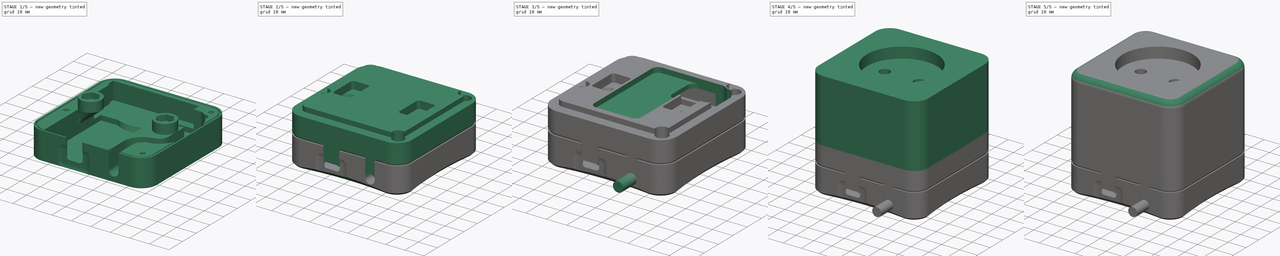
[diagram: build sequence overview — one tinted view per stage of 5, left to right]
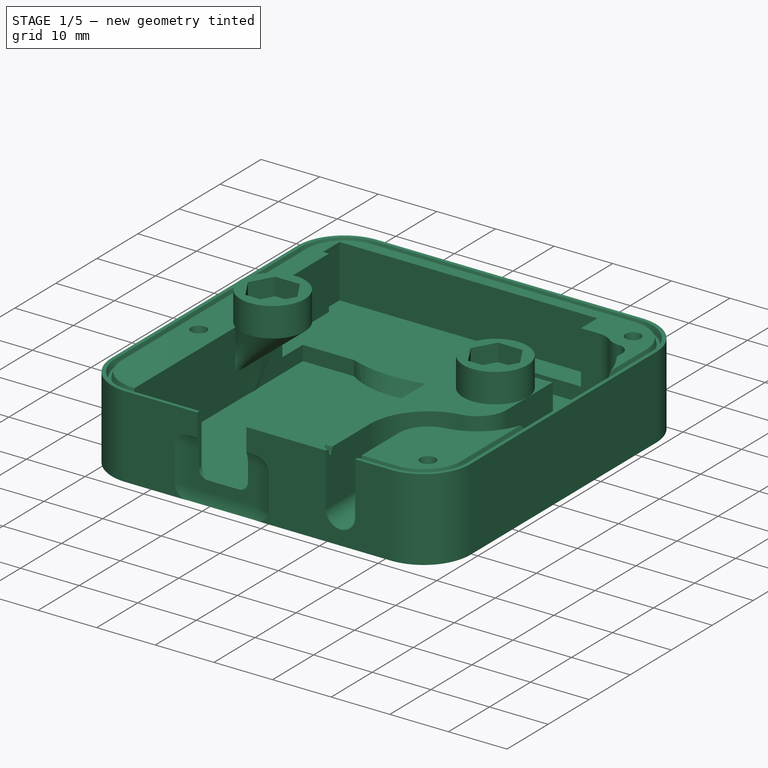
[diagram: stage 1 of 5 — iso view after this stage's code; geometry added in this stage tinted green]
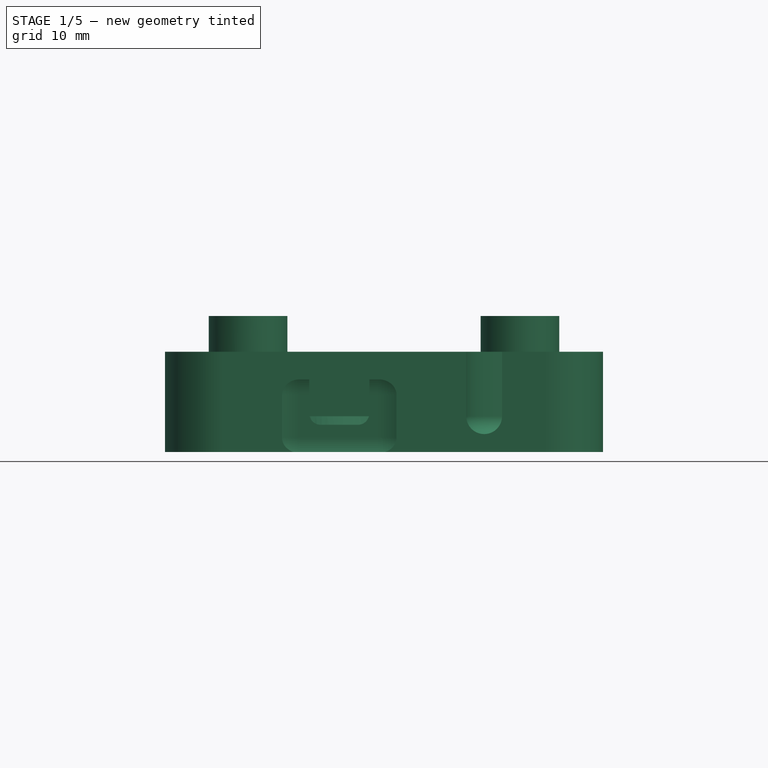
[diagram: stage 1 of 5 — front view after this stage's code; geometry added in this stage tinted green]
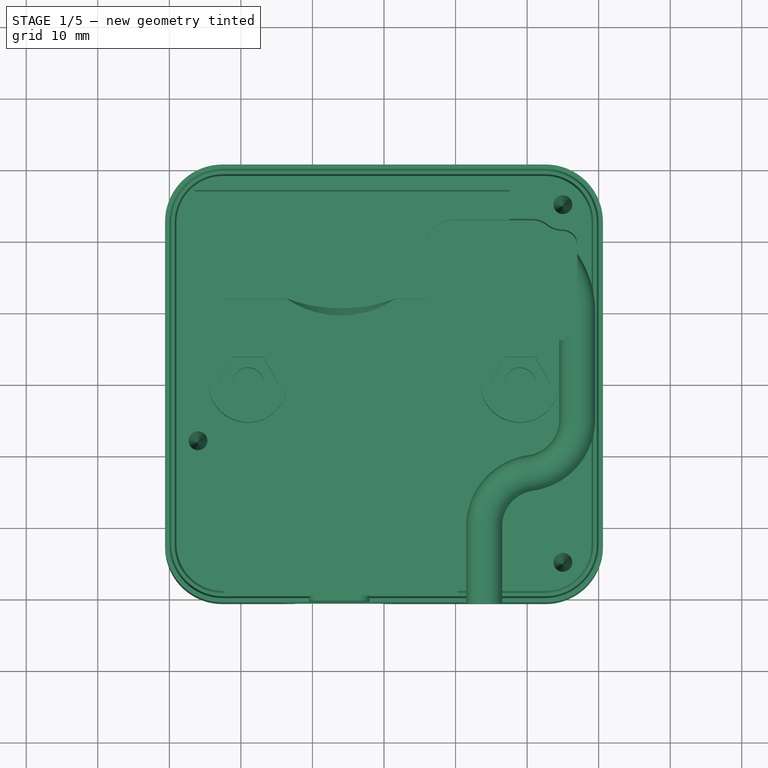
[diagram: stage 1 of 5 — top view after this stage's code; geometry added in this stage tinted green]
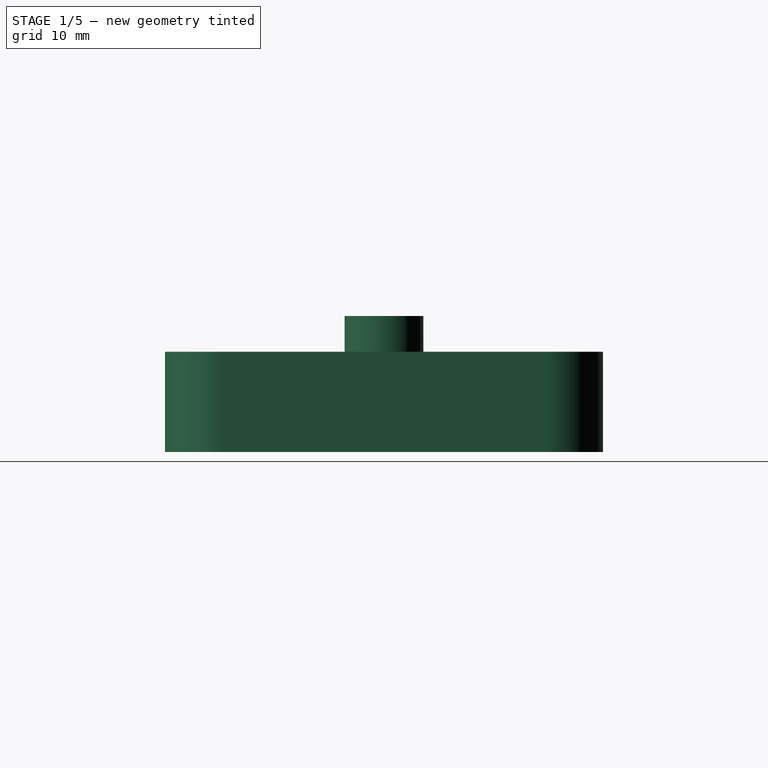
[diagram: stage 1 of 5 — right view after this stage's code; geometry added in this stage tinted green]
FCSTD DOCUMENT  (FreeCAD 0.19R23323 (Git))
Label: BedroomFan V2a
License: All rights reserved
LicenseURL: http://en.wikipedia.org/wiki/All_rights_reserved
objects: Sketcher::SketchObject×73, PartDesign::Pocket×21, PartDesign::Body×19, PartDesign::Pad×12, PartDesign::Revolution×12, PartDesign::Groove×9, PartDesign::Mirrored×6, Part::Compound×4, Part::FeaturePython×4, PartDesign::SubtractivePipe×4, PartDesign::PolarPattern×3, PartDesign::AdditivePipe×3, Part::Feature×1, PartDesign::MultiTransform×1, PartDesign::Fillet×1, PartDesign::AdditiveLoft×1, PartDesign::SubtractiveLoft×1
note: 239 computed .brp shape members not serialized (recipe doc carries the construction recipe); baked Part::Feature solids carry a one-line shape summary decoded from their .brp

FEATURE [Sketcher::SketchObject] Sketch110  label="bt support usb connector"
  AttachmentOffset = pos=(0,0,30.6) rot=(0,0,1;0rad)
  MapMode = 5
  Placement = pos=(0,-30.6,-6.8e-15) rot=(1,0,0;1.5708rad)
  Support = -> [XZ_Plane020]
  sketch-geometry (9):
    g0: ArcOfCircle CenterX=-8.85 CenterY=-19.6 CenterZ=0 NormalX=0 NormalY=0 NormalZ=1 AngleXU=0 Radius=1.5 StartAngle=1.5708 EndAngle=2.35446
    g1: ArcOfCircle CenterX=-3.65 CenterY=-19.6 CenterZ=0 NormalX=0 NormalY=0 NormalZ=1 AngleXU=0 Radius=1.5 StartAngle=0.787128 EndAngle=1.5708
    g2: LineSegment StartX=-8.85 StartY=-18.1 StartZ=0 EndX=-3.65 EndY=-18.1 EndZ=0
    g3: LineSegment StartX=-6.25 StartY=-10 StartZ=0 EndX=-6.25 EndY=-18.1 EndZ=0
    g4: LineSegment StartX=-2.25 StartY=-10 StartZ=0 EndX=-10.25 EndY=-10 EndZ=0
    g5: LineSegment StartX=-10.25 StartY=-10 StartZ=0 EndX=-10.25 EndY=-18.3958 EndZ=0
    g6: LineSegment StartX=-2.25 StartY=-18.3958 StartZ=0 EndX=-2.25 EndY=-10 EndZ=0
    g7: ArcOfCircle CenterX=-10.05 CenterY=-18.3958 CenterZ=0 NormalX=0 NormalY=0 NormalZ=1 AngleXU=0 Radius=0.2 StartAngle=3.14159 EndAngle=5.49606
    g8: ArcOfCircle CenterX=-2.45 CenterY=-18.3958 CenterZ=0 NormalX=0 NormalY=0 NormalZ=1 AngleXU=0 Radius=0.2 StartAngle=3.92872 EndAngle=6.28319
  constraints (24):
    c: Tangent(g0,g2)
    c: Tangent(g2,g1)
    c: Equal(g0,g1)
    c: Symmetric(g1,g0,g3)
    c: DistanceX(g3,g-1) = 6.25
    c: DistanceY(g1,g-1) = 19.6
    c: DistanceX(g2,g2) = 5.2
    c: Coincident(g4,g5)
    c: Coincident(g6,g4)
    c: Vertical(g5)
    c: Vertical(g6)
    c: Symmetric(g4,g4,g3)
    c: Symmetric(g4,g4,g3)
    c: DistanceY(g4,g-1) = 10
    c: PointOnObject(g3,g2)
    c: Horizontal(g2)
    c: Tangent(g0,g7) = 1.5708
    c: Tangent(g5,g7) = -1.5708
    c: Tangent(g1,g8) = 1.5708
    c: Tangent(g6,g8) = -1.5708
    c: Equal(g8,g7)
    c: Radius(g8) = 0.2
    c: Radius(g1) = 1.5
    c: DistanceX(g4,g4) = 8
FEATURE [Sketcher::SketchObject] Sketch113  label="bt hole wires"
  AttachmentOffset = pos=(0,0,-20) rot=(0,0,1;0rad)
  MapMode = 5
  Placement = pos=(0,0,-20) rot=(0,0,1;0rad)
  Support = -> [XY_Plane020]
  sketch-geometry (10):
    g0: ArcOfCircle CenterX=25 CenterY=25 CenterZ=0 NormalX=0 NormalY=0 NormalZ=1 AngleXU=0 Radius=3.5 StartAngle=4.04544 EndAngle=4.71239
    g1: ArcOfCircle CenterX=25 CenterY=19.5 CenterZ=0 NormalX=0 NormalY=0 NormalZ=1 AngleXU=0 Radius=2 StartAngle=-9e-16 EndAngle=1.5708
    g2: LineSegment StartX=20.6699 StartY=23 StartZ=0 EndX=9.5 EndY=23 EndZ=0
    g3: LineSegment StartX=6 StartY=19.5 StartZ=0 EndX=6 EndY=9.5 EndZ=0
    g4: LineSegment StartX=9.5 StartY=6 StartZ=0 EndX=23.5 EndY=6 EndZ=0
    g5: LineSegment StartX=27 StartY=9.5 StartZ=0 EndX=27 EndY=19.5 EndZ=0
    g6: ArcOfCircle CenterX=9.5 CenterY=19.5 CenterZ=0 NormalX=0 NormalY=0 NormalZ=1 AngleXU=0 Radius=3.5 StartAngle=1.5708 EndAngle=3.14159
    g7: ArcOfCircle CenterX=9.5 CenterY=9.5 CenterZ=0 NormalX=0 NormalY=0 NormalZ=1 AngleXU=0 Radius=3.5 StartAngle=3.14159 EndAngle=4.71239
    g8: ArcOfCircle CenterX=23.5 CenterY=9.5 CenterZ=0 NormalX=0 NormalY=0 NormalZ=1 AngleXU=0 Radius=3.5 StartAngle=4.71239 EndAngle=6.28319
    g9: ArcOfCircle CenterX=20.6699 CenterY=19.5 CenterZ=0 NormalX=0 NormalY=0 NormalZ=1 AngleXU=0 Radius=3.5 StartAngle=0.90385 EndAngle=1.5708
  constraints (26):
    c: Horizontal(g2)
    c: Horizontal(g4)
    c: Vertical(g3)
    c: Vertical(g5)
    c: Tangent(g1,g5) = -1.5708
    c: Tangent(g0,g1) = 1.5708
    c: Vertical(g1,g0)
    c: DistanceX(g0) = 25
    c: DistanceY(g0) = 25
    c: Radius(g0) = 3.5
    c: Tangent(g2,g6) = -1.5708
    c: Tangent(g3,g6) = -1.5708
    c: Tangent(g3,g7) = -1.5708
    c: Tangent(g4,g7) = -1.5708
    c: Tangent(g4,g8) = -1.5708
    c: Tangent(g5,g8) = -1.5708
    c: DistanceY(g4) = 6
    c: DistanceY(g2) = 23
    c: DistanceX(g3) = 6
    c: DistanceX(g5) = 27
    c: Equal(g0,g6)
    c: Equal(g6,g7)
    c: Equal(g7,g8)
    c: Tangent(g0,g9) = 1.5708
    c: Tangent(g2,g9) = -1.5708
    c: Equal(g0,g9)
FEATURE [Sketcher::SketchObject] Sketch114  label="bt separation top bottom"
  MapMode = 5
  Placement = pos=(0,0,0) rot=(1,0,0;1.5708rad)
  Support = -> [XZ_Plane020]
  sketch-geometry (4):
    g0: LineSegment StartX=35 StartY=-26 StartZ=0 EndX=-35 EndY=-26 EndZ=0
    g1: LineSegment StartX=-35 StartY=-26 StartZ=0 EndX=-35 EndY=-10 EndZ=0
    g2: LineSegment StartX=-35 StartY=-10 StartZ=0 EndX=35 EndY=-10 EndZ=0
    g3: LineSegment StartX=35 StartY=-10 StartZ=0 EndX=35 EndY=-26 EndZ=0
  constraints (11):
    c: Coincident(g0,g1)
    c: Coincident(g1,g2)
    c: Coincident(g2,g3)
    c: Coincident(g3,g0)
    c: Horizontal(g2)
    c: Vertical(g1)
    c: Vertical(g3)
    c: Symmetric(g0,g0,g-2)
    c: DistanceX(g0,g0) = 70
    c: DistanceY(g2,g-1) = 10
    c: DistanceY(g0,g-1) = 26
FEATURE [Sketcher::SketchObject] Sketch115
  MapMode = 5
  Placement = pos=(0,0,0) rot=(1,0,0;1.5708rad)
  Support = -> [XZ_Plane022]
  sketch-geometry (4):
    g0: LineSegment StartX=35 StartY=3 StartZ=0 EndX=-35 EndY=3 EndZ=0
    g1: LineSegment StartX=-35 StartY=3 StartZ=0 EndX=-35 EndY=-11 EndZ=0
    g2: LineSegment StartX=-35 StartY=-11 StartZ=0 EndX=35 EndY=-11 EndZ=0
    g3: LineSegment StartX=35 StartY=-11 StartZ=0 EndX=35 EndY=3 EndZ=0
  constraints (11):
    c: Coincident(g0,g1)
    c: Coincident(g1,g2)
    c: Coincident(g2,g3)
    c: Coincident(g3,g0)
    c: Horizontal(g2)
    c: Vertical(g1)
    c: Vertical(g3)
    c: Symmetric(g0,g0,g-2)
    c: DistanceX(g0,g0) = 70
    c: DistanceY(g0) = 3
    c: DistanceY(g2,g-1) = 11
FEATURE [Sketcher::SketchObject] Sketch116  label="bb base"
  AttachmentOffset = pos=(0,0,2.5) rot=(0,0,1;0rad)
  MapMode = 5
  Placement = pos=(0,0,2.5) rot=(0,0,1;0rad)
  Support = -> [XY_Plane022]
  sketch-geometry (12):
    g0: LineSegment StartX=-22.6 StartY=30.6 StartZ=0 EndX=22.6 EndY=30.6 EndZ=0
    g1: LineSegment StartX=30.6 StartY=22.6 StartZ=0 EndX=30.6 EndY=-22.6 EndZ=0
    g2: LineSegment StartX=22.6 StartY=-30.6 StartZ=0 EndX=-22.6 EndY=-30.6 EndZ=0
    g3: LineSegment StartX=-30.6 StartY=-22.6 StartZ=0 EndX=-30.6 EndY=22.6 EndZ=0
    g4: ArcOfCircle CenterX=-22.6 CenterY=22.6 CenterZ=0 NormalX=0 NormalY=0 NormalZ=1 AngleXU=0 Radius=8 StartAngle=1.5708 EndAngle=3.14159
    g5: ArcOfCircle CenterX=22.6 CenterY=22.6 CenterZ=0 NormalX=0 NormalY=0 NormalZ=1 AngleXU=0 Radius=8 StartAngle=2.39e-14 EndAngle=1.5708
    g6: ArcOfCircle CenterX=22.6 CenterY=-22.6 CenterZ=0 NormalX=0 NormalY=0 NormalZ=1 AngleXU=0 Radius=8 StartAngle=4.71239 EndAngle=6.28319
    g7: ArcOfCircle CenterX=-22.6 CenterY=-22.6 CenterZ=0 NormalX=0 NormalY=0 NormalZ=1 AngleXU=0 Radius=8 StartAngle=3.14159 EndAngle=4.71239
    g8: LineSegment StartX=-22.6 StartY=22.6 StartZ=0 EndX=22.6 EndY=22.6 EndZ=0
    g9: LineSegment StartX=22.6 StartY=22.6 StartZ=0 EndX=22.6 EndY=-22.6 EndZ=0
    g10: LineSegment StartX=22.6 StartY=-22.6 StartZ=0 EndX=-22.6 EndY=-22.6 EndZ=0
    g11: LineSegment StartX=-22.6 StartY=-22.6 StartZ=0 EndX=-22.6 EndY=22.6 EndZ=0
  constraints (26):
    c: Horizontal(g0)
    c: Horizontal(g2)
    c: Vertical(g1)
    c: Vertical(g3)
    c: Tangent(g3,g4) = 1.5708
    c: Tangent(g0,g4) = 1.5708
    c: Tangent(g0,g5) = 1.5708
    c: Tangent(g1,g5) = 1.5708
    c: Tangent(g1,g6) = 1.5708
    c: Tangent(g2,g6) = 1.5708
    c: Tangent(g2,g7) = 1.5708
    c: Tangent(g3,g7) = 1.5708
    c: Coincident(g8,g9)
    c: Coincident(g9,g10)
    c: Coincident(g10,g11)
    c: Coincident(g11,g8)
    c: Horizontal(g10)
    c: Coincident(g8,g4)
    c: Coincident(g9,g6)
    c: Coincident(g5,g8)
    c: Coincident(g7,g10)
    c: Symmetric(g5,g6,g-1)
    c: Symmetric(g5,g4,g-2)
    c: Equal(g9,g8)
    c: DistanceX(g3,g1) = 61.2
    c: Radius(g5) = 8
FEATURE [PartDesign::Pad] Pad017  label="BB Base"
  Direction = (1,1,1)
  Length = 27.5
  Length2 = 100
  Profile = -> Sketch116
  Reversed = true
  Type = 0
FEATURE [Sketcher::SketchObject] Sketch117  label="bb screwhole 1"
  AttachmentOffset = pos=(0,0,8) rot=(0,0,1;0rad)
  MapMode = 5
  Placement = pos=(0,-8,-1.8e-15) rot=(1,0,0;1.5708rad)
  Support = -> [XZ_Plane020]
  sketch-geometry (6):
    g0: LineSegment StartX=-26 StartY=3 StartZ=0 EndX=-26 EndY=-24.2 EndZ=0
    g1: LineSegment StartX=-26 StartY=-24.2 StartZ=0 EndX=-24.4 EndY=-8.2 EndZ=0
    g2: LineSegment StartX=-24.4 StartY=-8.2 StartZ=0 EndX=-23 EndY=-6.8 EndZ=0
    g3: LineSegment StartX=-23 StartY=-6.8 StartZ=0 EndX=-23 EndY=3 EndZ=0
    g4: LineSegment StartX=-23 StartY=3 StartZ=0 EndX=-26 EndY=3 EndZ=0
    g5: LineSegment StartX=-26 StartY=3 StartZ=0 EndX=-26 EndY=6 EndZ=0
  constraints (18):
    c: Vertical(g0)
    c: Coincident(g0,g1)
    c: Coincident(g1,g2)
    c: Coincident(g2,g3)
    c: Vertical(g3)
    c: Coincident(g3,g4)
    c: Coincident(g4,g0)
    c: DistanceX(g4,g4) = 3
    c: Angle(g0,g2) = 2.35619
    c: DistanceY(g1,g-1) = 8.2
    c: Coincident(g5,g0)
    c: Vertical(g5)
    c: Equal(g4,g5)
    c: DistanceY(g0,g1) = 16
    c: DistanceX(g0,g1) = 1.6
    c: DistanceX(g5,g-1) = 26
    c: Horizontal(g4)
    c: DistanceY(g0) = 3
FEATURE [PartDesign::Groove] Groove014  label="BB Screwhole 1"
  Angle = 360
  Axis = (0,-7e-16,3)
  Base = (-26,-8,3)
  BaseFeature = -> Pad017
  Profile = -> Sketch117
  ReferenceAxis = -> Sketch117 [Axis0]
FEATURE [Sketcher::SketchObject] Sketch118  label="bb screwhole 2"
  AttachmentOffset = pos=(0,0,25) rot=(0,0,1;0rad)
  MapMode = 5
  Placement = pos=(0,-25,-5.6e-15) rot=(1,0,0;1.5708rad)
  Support = -> [XZ_Plane022]
  sketch-geometry (6):
    g0: LineSegment StartX=25 StartY=3 StartZ=0 EndX=25 EndY=-24.2 EndZ=0
    g1: LineSegment StartX=25 StartY=-24.2 StartZ=0 EndX=26.6 EndY=-8.2 EndZ=0
    g2: LineSegment StartX=26.6 StartY=-8.2 StartZ=0 EndX=28 EndY=-6.8 EndZ=0
    g3: LineSegment StartX=28 StartY=-6.8 StartZ=0 EndX=28 EndY=3 EndZ=0
    g4: LineSegment StartX=28 StartY=3 StartZ=0 EndX=25 EndY=3 EndZ=0
    g5: LineSegment StartX=25 StartY=3 StartZ=0 EndX=25 EndY=6 EndZ=0
  constraints (18):
    c: Vertical(g0)
    c: Coincident(g0,g1)
    c: Coincident(g1,g2)
    c: Coincident(g2,g3)
    c: Vertical(g3)
    c: Coincident(g3,g4)
    c: Coincident(g4,g0)
    c: DistanceX(g0) = 25
    c: DistanceX(g4,g4) = 3
    c: Angle(g0,g2) = 2.35619
    c: DistanceY(g1,g-1) = 8.2
    c: Coincident(g5,g0)
    c: Vertical(g5)
    c: Equal(g4,g5)
    c: DistanceY(g0,g1) = 16
    c: DistanceX(g0,g1) = 1.6
    c: Horizontal(g4)
    c: DistanceY(g3) = 3
FEATURE [PartDesign::Groove] Groove013  label="BB Screwhole 2"
  Angle = 360
  Axis = (0,-7e-16,3)
  Base = (25,-25,3)
  BaseFeature = -> Groove014
  Profile = -> Sketch118
  ReferenceAxis = -> Sketch118 [Axis0]
FEATURE [Sketcher::SketchObject] Sketch119  label="bb screwhole 3"
  AttachmentOffset = pos=(0,0,-25) rot=(0,0,1;0rad)
  MapMode = 5
  Placement = pos=(0,25,5.6e-15) rot=(1,0,0;1.5708rad)
  Support = -> [XZ_Plane022]
  sketch-geometry (6):
    g0: LineSegment StartX=25 StartY=3 StartZ=0 EndX=25 EndY=-24.2 EndZ=0
    g1: LineSegment StartX=25 StartY=-24.2 StartZ=0 EndX=26.6 EndY=-8.2 EndZ=0
    g2: LineSegment StartX=26.6 StartY=-8.2 StartZ=0 EndX=28 EndY=-6.8 EndZ=0
    g3: LineSegment StartX=28 StartY=-6.8 StartZ=0 EndX=28 EndY=3 EndZ=0
    g4: LineSegment StartX=28 StartY=3 StartZ=0 EndX=25 EndY=3 EndZ=0
    g5: LineSegment StartX=25 StartY=3 StartZ=0 EndX=25 EndY=6 EndZ=0
  constraints (18):
    c: Vertical(g0)
    c: Coincident(g0,g1)
    c: Coincident(g1,g2)
    c: Coincident(g2,g3)
    c: Vertical(g3)
    c: Coincident(g3,g4)
    c: Coincident(g4,g0)
    c: DistanceX(g4,g4) = 3
    c: Angle(g0,g2) = 2.35619
    c: DistanceY(g1,g-1) = 8.2
    c: Coincident(g5,g0)
    c: Vertical(g5)
    c: Equal(g4,g5)
    c: DistanceY(g0,g1) = 16
    c: DistanceX(g0,g1) = 1.6
    c: DistanceX(g5) = 25
    c: Horizontal(g4)
    c: DistanceY(g0) = 3
FEATURE [PartDesign::Groove] Groove016  label="BB Screwhole 3"
  Angle = 360
  Axis = (0,-7e-16,3)
  Base = (25,25,3)
  BaseFeature = -> Groove013
  Profile = -> Sketch119
  ReferenceAxis = -> Sketch119 [Axis0]
FEATURE [Sketcher::SketchObject] Sketch121  label="bb bolt hole R"
  MapMode = 5
  Placement = pos=(0,0,0) rot=(1,0,0;1.5708rad)
  Support = -> [XZ_Plane022]
  sketch-geometry (6):
    g0: LineSegment StartX=19 StartY=-1.5 StartZ=0 EndX=21.8 EndY=-1.5 EndZ=0
    g1: LineSegment StartX=21.2 StartY=-3.14849 StartZ=0 EndX=21.2 EndY=-13.5 EndZ=0
    g2: LineSegment StartX=21.2 StartY=-13.5 StartZ=0 EndX=19 EndY=-13.5 EndZ=0
    g3: LineSegment StartX=19 StartY=-13.5 StartZ=0 EndX=19 EndY=-1.5 EndZ=0
    g4: LineSegment StartX=19 StartY=-1.5 StartZ=0 EndX=19 EndY=1.3 EndZ=0
    g5: LineSegment StartX=21.2 StartY=-3.14849 StartZ=0 EndX=21.8 EndY=-1.5 EndZ=0
  constraints (18):
    c: Coincident(g1,g2)
    c: Coincident(g2,g3)
    c: Coincident(g3,g0)
    c: Horizontal(g0)
    c: Horizontal(g2)
    c: Vertical(g1)
    c: Vertical(g3)
    c: Coincident(g4,g0)
    c: Vertical(g4)
    c: Equal(g0,g4)
    c: DistanceX(g4) = 19
    c: Coincident(g5,g1)
    c: Coincident(g0,g5)
    c: DistanceX(g0,g1) = 2.2
    c: Angle(g1,g5) = 2.79253
    c: DistanceY(g3,g3) = 12
    c: DistanceY(g0,g-1) = 1.5
    c: DistanceX(g0,g0) = 2.8
FEATURE [Sketcher::SketchObject] Sketch122  label="bb pocket relay"
  AttachmentOffset = pos=(0,0,-11) rot=(0,0,1;0rad)
  MapMode = 5
  Placement = pos=(0,0,-11) rot=(0,0,1;0rad)
  Support = -> [XY_Plane022]
  sketch-geometry (8):
    g0: LineSegment StartX=-26.5 StartY=27 StartZ=0 EndX=17.5 EndY=27 EndZ=0
    g1: LineSegment StartX=17.5 StartY=27 StartZ=0 EndX=17.5 EndY=23 EndZ=0
    g2: LineSegment StartX=17.5 StartY=23 StartZ=0 EndX=15.5 EndY=23 EndZ=0
    g3: LineSegment StartX=-26.5 StartY=23 StartZ=0 EndX=-26.5 EndY=27 EndZ=0
    g4: LineSegment StartX=-25.5 StartY=23 StartZ=0 EndX=-25.5 EndY=7 EndZ=0
    g5: LineSegment StartX=-25.5 StartY=7 StartZ=0 EndX=15.5 EndY=7 EndZ=0
    g6: LineSegment StartX=15.5 StartY=7 StartZ=0 EndX=15.5 EndY=23 EndZ=0
    g7: LineSegment StartX=-25.5 StartY=23 StartZ=0 EndX=-26.5 EndY=23 EndZ=0
  constraints (23):
    c: Coincident(g0,g1)
    c: Coincident(g1,g2)
    c: Coincident(g7,g3)
    c: Coincident(g3,g0)
    c: Horizontal(g0)
    c: Horizontal(g2)
    c: Vertical(g1)
    c: Vertical(g3)
    c: Coincident(g4,g5)
    c: Coincident(g5,g6)
    c: Horizontal(g5)
    c: Vertical(g4)
    c: Vertical(g6)
    c: Coincident(g2,g6)
    c: Coincident(g7,g4)
    c: Tangent(g2,g7)
    c: DistanceX(g0,g0) = 44
    c: DistanceY(g0) = 27
    c: DistanceY(g1,g1) = 4
    c: DistanceX(g7,g7) = 1
    c: DistanceX(g2,g2) = 2
    c: DistanceX(g1) = 17.5
    c: DistanceY(g4,g0) = 20
FEATURE [Sketcher::SketchObject] Sketch124  label="bb esp mid"
  AttachmentOffset = pos=(0,0,-18) rot=(0,0,1;0rad)
  MapMode = 5
  Placement = pos=(0,0,-18) rot=(0,0,1;0rad)
  Support = -> [XY_Plane022]
  sketch-geometry (10):
    g0: LineSegment StartX=-22.25 StartY=12 StartZ=0 EndX=-13.5 EndY=12 EndZ=0
    g1: LineSegment StartX=10.25 StartY=12 StartZ=0 EndX=10.25 EndY=-29.5 EndZ=0
    g2: LineSegment StartX=10.25 StartY=-29.5 StartZ=0 EndX=-22.25 EndY=-29.5 EndZ=0
    g3: LineSegment StartX=-22.25 StartY=-29.5 StartZ=0 EndX=-22.25 EndY=-4.5 EndZ=0
    g4: LineSegment StartX=-6 StartY=111 StartZ=0 EndX=-6 EndY=-29.5 EndZ=0
    g5: ArcOfCircle CenterX=-6 CenterY=61.2159 CenterZ=0 NormalX=0 NormalY=0 NormalZ=1 AngleXU=0 Radius=49.7841 StartAngle=4.56116 EndAngle=4.86362
    g6: LineSegment StartX=1.5 StartY=12 StartZ=0 EndX=10.25 EndY=12 EndZ=0
    g7: ArcOfCircle CenterX=-123.45 CenterY=0 CenterZ=0 NormalX=0 NormalY=0 NormalZ=1 AngleXU=0 Radius=101.3 StartAngle=6.23875 EndAngle=6.32762
    g8: LineSegment StartX=-22.25 StartY=4.5 StartZ=0 EndX=-22.25 EndY=12 EndZ=0
    g9: GeomPoint X=-22.15 Y=0 Z=0
  constraints (29):
    c: Coincident(g6,g1)
    c: Coincident(g1,g2)
    c: Coincident(g2,g3)
    c: Coincident(g8,g0)
    c: Horizontal(g0)
    c: Horizontal(g2)
    c: Vertical(g1)
    c: Vertical(g3)
    c: DistanceY(g1,g-1) = 29.5
    c: PointOnObject(g4,g2)
    c: Symmetric(g1,g2,g4)
    c: DistanceX(g0,g6) = 32.5
    c: Coincident(g0,g5)
    c: Tangent(g0,g6)
    c: Coincident(g6,g5)
    c: PointOnObject(g4,g5)
    c: PointOnObject(g5,g4)
    c: DistanceX(g4,g-1) = 6
    c: DistanceY(g-1,g4) = 111
    c: DistanceY(g-1,g1) = 12
    c: DistanceX(g0,g5) = 15
    c: PointOnObject(g7,g-1)
    c: Tangent(g3,g8)
    c: Coincident(g7,g8)
    c: Coincident(g7,g3)
    c: PointOnObject(g9,g7)
    c: PointOnObject(g9,g-1)
    c: DistanceX(g7,g9) = 0.1
    c: DistanceY(g3,g7) = 9
FEATURE [Sketcher::SketchObject] Sketch125  label="bb pocket usb connector"
  MapMode = 5
  Placement = pos=(0,0,0) rot=(1,0,0;1.5708rad)
  Support = -> [XZ_Plane022]
  sketch-geometry (7):
    g0: ArcOfCircle CenterX=-8.85 CenterY=-19.6 CenterZ=0 NormalX=0 NormalY=0 NormalZ=1 AngleXU=0 Radius=1.6 StartAngle=3.14159 EndAngle=4.71239
    g1: ArcOfCircle CenterX=-3.65 CenterY=-19.6 CenterZ=0 NormalX=0 NormalY=0 NormalZ=1 AngleXU=0 Radius=1.6 StartAngle=4.71239 EndAngle=6.28319
    g2: LineSegment StartX=-8.85 StartY=-21.2 StartZ=0 EndX=-3.65 EndY=-21.2 EndZ=0
    g3: LineSegment StartX=-6.25 StartY=9e-16 StartZ=0 EndX=-6.25 EndY=-21.2 EndZ=0
    g4: LineSegment StartX=-10.45 StartY=0 StartZ=0 EndX=-2.05 EndY=0 EndZ=0
    g5: LineSegment StartX=-2.05 StartY=0 StartZ=0 EndX=-2.05 EndY=-19.6 EndZ=0
    g6: LineSegment StartX=-10.45 StartY=-19.6 StartZ=0 EndX=-10.45 EndY=0 EndZ=0
  constraints (19):
    c: Tangent(g0,g2)
    c: Tangent(g2,g1)
    c: Horizontal(g2)
    c: Equal(g0,g1)
    c: PointOnObject(g3,g2)
    c: Symmetric(g1,g0,g3)
    c: DistanceX(g3,g-1) = 6.25
    c: DistanceY(g1,g-1) = 19.6
    c: Coincident(g4,g5)
    c: Coincident(g6,g4)
    c: Horizontal(g4)
    c: Vertical(g5)
    c: Vertical(g6)
    c: PointOnObject(g4,g-1)
    c: DistanceX(g0,g1) = 5.2
    c: PointOnObject(g3,g4)
    c: Tangent(g0,g6) = 1.5708
    c: Tangent(g1,g5) = 1.5708
    c: Radius(g1) = 1.6
FEATURE [Sketcher::SketchObject] Sketch126  label="bb USB trj"
  MapMode = 5
  Placement = pos=(0,0,0) rot=(0.57735,0.57735,0.57735;2.0944rad)
  Support = -> [YZ_Plane023]
  sketch-geometry (3):
    g0: LineSegment StartX=-30.2 StartY=-17 StartZ=0 EndX=-30.2 EndY=-23 EndZ=0
    g1: ArcOfCircle CenterX=-36.2 CenterY=-23 CenterZ=0 NormalX=0 NormalY=0 NormalZ=1 AngleXU=0 Radius=6 StartAngle=5.44212 EndAngle=6.28319
    g2: ArcOfCircle CenterX=-36.2 CenterY=-17 CenterZ=0 NormalX=0 NormalY=0 NormalZ=1 AngleXU=0 Radius=6 StartAngle=0 EndAngle=0.841069
  constraints (10):
    c: Vertical(g0)
    c: Tangent(g0,g2) = 1.5708
    c: Tangent(g0,g1) = 1.5708
    c: DistanceX(g0,g-1) = 30.2
    c: DistanceY(g0,g-1) = 23
    c: DistanceY(g0,g0) = 6
    c: Equal(g1,g2)
    c: DistanceX(g2,g0) = 2
    c: Radius(g2) = 6
    c: Vertical(g1,g2)
FEATURE [Sketcher::SketchObject] Sketch127  label="bb esp btm"
  AttachmentOffset = pos=(0,0,-22.5) rot=(0,0,1;0rad)
  MapMode = 5
  Placement = pos=(0,0,-22.5) rot=(0,0,1;0rad)
  Support = -> [XY_Plane022]
  sketch-geometry (10):
    g0: LineSegment StartX=-22.25 StartY=12 StartZ=0 EndX=-13.5 EndY=12 EndZ=0
    g1: LineSegment StartX=10.25 StartY=12 StartZ=0 EndX=10.25 EndY=-29.5 EndZ=0
    g2: LineSegment StartX=10.25 StartY=-29.5 StartZ=0 EndX=-22.25 EndY=-29.5 EndZ=0
    g3: LineSegment StartX=-22.25 StartY=-29.5 StartZ=0 EndX=-22.25 EndY=-1 EndZ=0
    g4: LineSegment StartX=-6 StartY=9.7 StartZ=0 EndX=-6 EndY=-29.5 EndZ=0
    g5: ArcOfCircle CenterX=-6 CenterY=23.0783 CenterZ=0 NormalX=0 NormalY=0 NormalZ=1 AngleXU=0 Radius=13.3783 StartAngle=4.11727 EndAngle=5.30751
    g6: LineSegment StartX=1.5 StartY=12 StartZ=0 EndX=10.25 EndY=12 EndZ=0
    g7: ArcOfCircle CenterX=-27.2 CenterY=0 CenterZ=0 NormalX=0 NormalY=0 NormalZ=1 AngleXU=0 Radius=5.05 StartAngle=6.08385 EndAngle=6.48252
    g8: LineSegment StartX=-22.25 StartY=1 StartZ=0 EndX=-22.25 EndY=12 EndZ=0
    g9: GeomPoint X=-22.15 Y=0 Z=0
  constraints (29):
    c: Coincident(g6,g1)
    c: Coincident(g1,g2)
    c: Coincident(g2,g3)
    c: Coincident(g8,g0)
    c: Horizontal(g0)
    c: Horizontal(g2)
    c: Vertical(g1)
    c: Vertical(g3)
    c: DistanceY(g1,g-1) = 29.5
    c: PointOnObject(g4,g2)
    c: Symmetric(g1,g2,g4)
    c: DistanceX(g0,g6) = 32.5
    c: Coincident(g0,g5)
    c: Tangent(g0,g6)
    c: Coincident(g6,g5)
    c: PointOnObject(g4,g5)
    c: PointOnObject(g5,g4)
    c: DistanceX(g4,g-1) = 6
    c: DistanceY(g-1,g4) = 9.7
    c: DistanceY(g-1,g1) = 12
    c: DistanceX(g0,g5) = 15
    c: PointOnObject(g7,g-1)
    c: Tangent(g3,g8)
    c: Coincident(g7,g3)
    c: Coincident(g7,g8)
    c: PointOnObject(g9,g7)
    c: PointOnObject(g9,g-1)
    c: DistanceX(g7,g9) = 0.1
    c: DistanceY(g3,g7) = 2
FEATURE [Sketcher::SketchObject] Sketch128  label="bb USB crs"
  AttachmentOffset = pos=(0,0,-20) rot=(0,0,1;0rad)
  MapMode = 5
  Placement = pos=(0,0,-20) rot=(0,0,1;0rad)
  Support = -> [XY_Plane022]
  sketch-geometry (5):
    g0: ArcOfCircle CenterX=-11.75 CenterY=-38.2 CenterZ=0 NormalX=0 NormalY=0 NormalZ=1 AngleXU=0 Radius=8 StartAngle=1.5708 EndAngle=2.29353
    g1: ArcOfCircle CenterX=-0.75 CenterY=-38.2 CenterZ=0 NormalX=0 NormalY=0 NormalZ=1 AngleXU=0 Radius=8 StartAngle=0.848062 EndAngle=1.5708
    g2: LineSegment StartX=-11.75 StartY=-30.2 StartZ=0 EndX=-0.75 EndY=-30.2 EndZ=0
    g3: LineSegment StartX=-6.25 StartY=-30.2 StartZ=0 EndX=-6.25 EndY=-32.2 EndZ=0
    g4: LineSegment StartX=-17.0415 StartY=-32.2 StartZ=0 EndX=4.5415 EndY=-32.2 EndZ=0
  constraints (15):
    c: Tangent(g0,g2)
    c: Tangent(g2,g1)
    c: Equal(g0,g1)
    c: DistanceY(g1,g-1) = 30.2
    c: PointOnObject(g3,g2)
    c: Symmetric(g0,g1,g3)
    c: DistanceX(g3,g-1) = 6.25
    c: DistanceX(g2,g2) = 11
    c: Radius(g1) = 8
    c: Horizontal(g4)
    c: Coincident(g1,g4)
    c: Coincident(g4,g0)
    c: DistanceY(g1,g1) = 2
    c: PointOnObject(g3,g4)
    c: Vertical(g3)
FEATURE [Sketcher::SketchObject] Sketch129  label="bb hole wires"
  AttachmentOffset = pos=(0,0,-22.5) rot=(0,0,1;0rad)
  MapMode = 5
  Placement = pos=(0,0,-22.5) rot=(0,0,1;0rad)
  Support = -> [XY_Plane022]
  sketch-geometry (10):
    g0: ArcOfCircle CenterX=25 CenterY=25 CenterZ=0 NormalX=0 NormalY=0 NormalZ=1 AngleXU=0 Radius=3.5 StartAngle=4.04544 EndAngle=4.71239
    g1: ArcOfCircle CenterX=25 CenterY=19.5 CenterZ=0 NormalX=0 NormalY=0 NormalZ=1 AngleXU=0 Radius=2 StartAngle=-9e-16 EndAngle=1.5708
    g2: LineSegment StartX=20.6699 StartY=23 StartZ=0 EndX=9.5 EndY=23 EndZ=0
    g3: LineSegment StartX=6 StartY=19.5 StartZ=0 EndX=6 EndY=9.5 EndZ=0
    g4: LineSegment StartX=9.5 StartY=6 StartZ=0 EndX=23.5 EndY=6 EndZ=0
    g5: LineSegment StartX=27 StartY=9.5 StartZ=0 EndX=27 EndY=19.5 EndZ=0
    g6: ArcOfCircle CenterX=9.5 CenterY=19.5 CenterZ=0 NormalX=0 NormalY=0 NormalZ=1 AngleXU=0 Radius=3.5 StartAngle=1.5708 EndAngle=3.14159
    g7: ArcOfCircle CenterX=9.5 CenterY=9.5 CenterZ=0 NormalX=0 NormalY=0 NormalZ=1 AngleXU=0 Radius=3.5 StartAngle=3.14159 EndAngle=4.71239
    g8: ArcOfCircle CenterX=23.5 CenterY=9.5 CenterZ=0 NormalX=0 NormalY=0 NormalZ=1 AngleXU=0 Radius=3.5 StartAngle=4.71239 EndAngle=6.28319
    g9: ArcOfCircle CenterX=20.6699 CenterY=19.5 CenterZ=0 NormalX=0 NormalY=0 NormalZ=1 AngleXU=0 Radius=3.5 StartAngle=0.90385 EndAngle=1.5708
  constraints (26):
    c: Horizontal(g2)
    c: Horizontal(g4)
    c: Vertical(g3)
    c: Vertical(g5)
    c: Tangent(g1,g5) = -1.5708
    c: Tangent(g0,g1) = 1.5708
    c: Vertical(g1,g0)
    c: DistanceX(g0) = 25
    c: DistanceY(g0) = 25
    c: Radius(g0) = 3.5
    c: Tangent(g2,g6) = -1.5708
    c: Tangent(g3,g6) = -1.5708
    c: Tangent(g3,g7) = -1.5708
    c: Tangent(g4,g7) = -1.5708
    c: Tangent(g4,g8) = -1.5708
    c: Tangent(g5,g8) = -1.5708
    c: DistanceY(g4) = 6
    c: DistanceY(g2) = 23
    c: DistanceX(g3) = 6
    c: DistanceX(g5) = 27
    c: Equal(g0,g6)
    c: Equal(g6,g7)
    c: Equal(g7,g8)
    c: Tangent(g0,g9) = 1.5708
    c: Tangent(g2,g9) = -1.5708
    c: Equal(g0,g9)
FEATURE [PartDesign::SubtractivePipe] SubtractivePipe008  label="BB USB recess"
  AuxilleryCurvelinear = true
  AuxillerySpineTangent = false
  BaseFeature = -> Groove016
  Binormal = (0,0,0)
  Mode = 0
  Profile = -> Sketch128
  Spine = -> Sketch126
  SpineTangent = false
  Transformation = 0
  Transition = 0
FEATURE [PartDesign::Pocket] Pocket044  label="BB Hole wires"
  BaseFeature = -> SubtractivePipe008
  Length = 5
  Length2 = 100
  Profile = -> Sketch129
  Reversed = true
  Type = 1
FEATURE [PartDesign::Pocket] Pocket041  label="BB Separation top bottom"
  BaseFeature = -> Pocket044
  Length = 5
  Length2 = 100
  Midplane = true
  Profile = -> Sketch115
  Type = 1
FEATURE [Sketcher::SketchObject] Sketch130  label="bt cable support trj"
  MapMode = 5
  Support = -> [XY_Plane020]
  sketch-geometry (4):
    g0: LineSegment StartX=27 StartY=16 StartZ=0 EndX=27 EndY=-5 EndZ=0
    g1: LineSegment StartX=14 StartY=-20 StartZ=0 EndX=14 EndY=-30.6 EndZ=0
    g2: ArcOfCircle CenterX=21.5769 CenterY=-20 CenterZ=0 NormalX=0 NormalY=0 NormalZ=1 AngleXU=0 Radius=7.57692 StartAngle=1.71341 EndAngle=3.14159
    g3: ArcOfCircle CenterX=19.4231 CenterY=-5 CenterZ=0 NormalX=0 NormalY=0 NormalZ=1 AngleXU=0 Radius=7.57692 StartAngle=4.855 EndAngle=6.28319
  constraints (12):
    c: Vertical(g0)
    c: Vertical(g1)
    c: DistanceX(g1) = 14
    c: Tangent(g1,g2) = -1.5708
    c: Tangent(g2,g3) = 1.5708
    c: Tangent(g0,g3) = 1.5708
    c: DistanceY(g1,g-1) = 20
    c: DistanceX(g0) = 27
    c: Equal(g2,g3)
    c: DistanceY(g-1,g0) = 16
    c: DistanceY(g1,g-1) = 30.6
    c: DistanceY(g0,g-1) = 5
FEATURE [Sketcher::SketchObject] Sketch131  label="bt cable support crs"
  MapMode = 5
  Placement = pos=(0,0,0) rot=(1,0,0;1.5708rad)
  Support = -> [XZ_Plane020]
  sketch-geometry (7):
    g0: ArcOfCircle CenterX=27 CenterY=-20 CenterZ=0 NormalX=0 NormalY=0 NormalZ=1 AngleXU=0 Radius=2.5 StartAngle=0.618387 EndAngle=2.52321
    g1: LineSegment StartX=29.4 StartY=-10 StartZ=0 EndX=24.6 EndY=-10 EndZ=0
    g2: LineSegment StartX=24.6 StartY=-10 StartZ=0 EndX=24.6 EndY=-18.4348 EndZ=0
    g3: LineSegment StartX=29.4 StartY=-18.4348 StartZ=0 EndX=29.4 EndY=-10 EndZ=0
    g4: ArcOfCircle CenterX=29.2 CenterY=-18.4348 CenterZ=0 NormalX=0 NormalY=0 NormalZ=1 AngleXU=0 Radius=0.2 StartAngle=3.75998 EndAngle=6.28319
    g5: ArcOfCircle CenterX=24.8 CenterY=-18.4348 CenterZ=0 NormalX=0 NormalY=0 NormalZ=1 AngleXU=0 Radius=0.2 StartAngle=3.14159 EndAngle=5.6648
    g6: LineSegment StartX=27 StartY=-20 StartZ=0 EndX=27 EndY=-10 EndZ=0
  constraints (19):
    c: DistanceX(g0) = 27
    c: DistanceY(g0,g-1) = 20
    c: Coincident(g1,g2)
    c: Coincident(g3,g1)
    c: Horizontal(g1)
    c: Vertical(g2)
    c: Vertical(g3)
    c: Radius(g0) = 2.5
    c: Tangent(g0,g4) = 1.5708
    c: Tangent(g3,g4) = -1.5708
    c: Tangent(g0,g5) = 1.5708
    c: Tangent(g2,g5) = -1.5708
    c: Coincident(g6,g0)
    c: PointOnObject(g6,g1)
    c: Symmetric(g1,g1,g6)
    c: DistanceY(g1,g-1) = 10
    c: DistanceX(g1,g1) = 4.8
    c: Equal(g5,g4)
    c: Radius(g4) = 0.2
FEATURE [PartDesign::Pocket] Pocket048  label="BB Pocket relay"
  BaseFeature = -> Pocket041
  Length = 18
  Length2 = 100
  Midplane = true
  Profile = -> Sketch122
  Type = 0
FEATURE [Sketcher::SketchObject] Sketch132  label="bb pillar nut R"
  AttachmentOffset = pos=(0,0,-6) rot=(0,0,1;0rad)
  MapMode = 5
  Placement = pos=(0,0,-6) rot=(0,0,1;0rad)
  Support = -> [XY_Plane022]
  sketch-geometry (1):
    g0: Circle CenterX=19 CenterY=0 CenterZ=0 NormalX=0 NormalY=0 NormalZ=1 AngleXU=0 Radius=5.5
  constraints (3):
    c: PointOnObject(g0,g-1)
    c: DistanceX(g0) = 19
    c: Radius(g0) = 5.5
FEATURE [PartDesign::Pad] Pad019  label="BB Pillar nut R"
  BaseFeature = -> Pocket048
  Direction = (1,1,1)
  Length = 5.5
  Length2 = 100
  Profile = -> Sketch132
  Reversed = true
  Type = 0
FEATURE [PartDesign::Groove] Groove017  label="BB Bolt hole R"
  Angle = 360
  Axis = (0,-6e-16,2.8)
  Base = (19,3e-16,-1.5)
  BaseFeature = -> Pad019
  Profile = -> Sketch121
  ReferenceAxis = -> Sketch121 [Axis0]
FEATURE [Sketcher::SketchObject] Sketch133  label="bb nut pocket R"
  AttachmentOffset = pos=(0,0,-9) rot=(0,0,1;0rad)
  MapMode = 5
  Placement = pos=(0,0,-9) rot=(0,0,1;0rad)
  Support = -> [XY_Plane022]
  sketch-geometry (7):
    g0: LineSegment StartX=23.2147 StartY=0 StartZ=0 EndX=21.1073 EndY=3.65 EndZ=0
    g1: LineSegment StartX=21.1073 StartY=3.65 StartZ=0 EndX=16.8927 EndY=3.65 EndZ=0
    g2: LineSegment StartX=16.8927 StartY=3.65 StartZ=0 EndX=14.7853 EndY=4e-16 EndZ=0
    g3: LineSegment StartX=14.7853 StartY=4e-16 StartZ=0 EndX=16.8927 EndY=-3.65 EndZ=0
    g4: LineSegment StartX=16.8927 StartY=-3.65 StartZ=0 EndX=21.1073 EndY=-3.65 EndZ=0
    g5: LineSegment StartX=21.1073 StartY=-3.65 StartZ=0 EndX=23.2147 EndY=0 EndZ=0
    g6: Circle CenterX=19 CenterY=0 CenterZ=0 NormalX=0 NormalY=0 NormalZ=1 AngleXU=0 Radius=4.21466
  constraints (17):
    c: Coincident(g0,g1)
    c: Coincident(g1,g2)
    c: Coincident(g2,g3)
    c: Coincident(g3,g4)
    c: Coincident(g4,g5)
    c: Coincident(g5,g0)
    c: Equal(g0, g1-g5) x5
    c: PointOnObject(g0,g6)
    c: PointOnObject(g1,g6)
    c: PointOnObject(g2,g6)
    c: PointOnObject(g3,g6)
    c: PointOnObject(g4,g6)
    c: PointOnObject(g5,g6)
    c: PointOnObject(g6,g-1)
    c: PointOnObject(g5,g-1)
    c: DistanceX(g6) = 19
    c: DistanceY(g4,g0) = 7.3
FEATURE [PartDesign::Pocket] Pocket049  label="BB Nut pocket R"
  BaseFeature = -> Groove017
  Length = 5
  Length2 = 100
  Profile = -> Sketch133
  Reversed = true
  Type = 1
FEATURE [PartDesign::Mirrored] Mirrored010  label="BB Nut pillar L"
  BaseFeature = -> Pocket049
  MirrorPlane = -> YZ_Plane023
  Originals = -> [Pad019,Groove017,Pocket049]
FEATURE [PartDesign::Pocket] Pocket055  label="BB Pocket USB connector"
  BaseFeature = -> Mirrored010
  Length = 5
  Length2 = 100
  Profile = -> Sketch125
  Reversed = true
  Type = 1
FEATURE [Sketcher::SketchObject] Sketch139  label="bb esp top"
  AttachmentOffset = pos=(0,0,-11) rot=(0,0,1;0rad)
  MapMode = 5
  Placement = pos=(0,0,-11) rot=(0,0,1;0rad)
  Support = -> [XY_Plane022]
  sketch-geometry (9):
    g0: LineSegment StartX=-22.25 StartY=12 StartZ=0 EndX=-13.5 EndY=12 EndZ=0
    g1: LineSegment StartX=10.25 StartY=12 StartZ=0 EndX=10.25 EndY=-29.5 EndZ=0
    g2: LineSegment StartX=10.25 StartY=-29.5 StartZ=0 EndX=-22.25 EndY=-29.5 EndZ=0
    g3: LineSegment StartX=-22.25 StartY=-29.5 StartZ=0 EndX=-22.25 EndY=-4.43706 EndZ=0
    g4: LineSegment StartX=-6 StartY=111 StartZ=0 EndX=-6 EndY=-29.5 EndZ=0
    g5: ArcOfCircle CenterX=-6 CenterY=61.2159 CenterZ=0 NormalX=0 NormalY=0 NormalZ=1 AngleXU=0 Radius=49.7841 StartAngle=4.56116 EndAngle=4.86362
    g6: LineSegment StartX=1.5 StartY=12 StartZ=0 EndX=10.25 EndY=12 EndZ=0
    g7: ArcOfCircle CenterX=-19 CenterY=0 CenterZ=0 NormalX=0 NormalY=0 NormalZ=1 AngleXU=0 Radius=5.5 StartAngle=4.0802 EndAngle=8.48617
    g8: LineSegment StartX=-22.25 StartY=4.43706 StartZ=0 EndX=-22.25 EndY=12 EndZ=0
  constraints (27):
    c: Coincident(g6,g1)
    c: Coincident(g1,g2)
    c: Coincident(g2,g3)
    c: Coincident(g8,g0)
    c: Horizontal(g0)
    c: Horizontal(g2)
    c: Vertical(g1)
    c: Vertical(g3)
    c: DistanceY(g1,g-1) = 29.5
    c: PointOnObject(g4,g2)
    c: Symmetric(g1,g2,g4)
    c: DistanceX(g0,g6) = 32.5
    c: Coincident(g0,g5)
    c: Tangent(g0,g6)
    c: Coincident(g6,g5)
    c: PointOnObject(g4,g5)
    c: PointOnObject(g5,g4)
    c: DistanceX(g4,g-1) = 6
    c: DistanceY(g-1,g4) = 111
    c: DistanceY(g-1,g1) = 12
    c: DistanceX(g0,g5) = 15
    c: PointOnObject(g7,g-1)
    c: Tangent(g3,g8)
    c: Coincident(g7,g8)
    c: Coincident(g7,g3)
    c: DistanceX(g7,g-1) = 19
    c: Radius(g7) = 5.5
FEATURE [PartDesign::SubtractiveLoft] SubtractiveLoft  label="BB ESP pocket"
  BaseFeature = -> Pocket055
  Closed = false
  Profile = -> Sketch127
  Ruled = true
  Sections = -> [Sketch124,Sketch139]
FEATURE [Sketcher::SketchObject] Sketch140  label="bb cable trj"
  MapMode = 5
  Support = -> [XY_Plane022]
  sketch-geometry (5):
    g0: LineSegment StartX=27 StartY=10 StartZ=0 EndX=27 EndY=-5 EndZ=0
    g1: LineSegment StartX=14 StartY=-20 StartZ=0 EndX=14 EndY=-40 EndZ=0
    g2: ArcOfCircle CenterX=21.5769 CenterY=-20 CenterZ=0 NormalX=0 NormalY=0 NormalZ=1 AngleXU=0 Radius=7.57692 StartAngle=1.71341 EndAngle=3.14159
    g3: ArcOfCircle CenterX=19.4231 CenterY=-5 CenterZ=0 NormalX=0 NormalY=0 NormalZ=1 AngleXU=0 Radius=7.57692 StartAngle=4.855 EndAngle=6.28319
    g4: ArcOfCircle CenterX=15 CenterY=10 CenterZ=0 NormalX=0 NormalY=0 NormalZ=1 AngleXU=0 Radius=12 StartAngle=0 EndAngle=0.985111
  constraints (15):
    c: Vertical(g0)
    c: Vertical(g1)
    c: DistanceX(g1) = 14
    c: Tangent(g1,g2) = -1.5708
    c: Tangent(g2,g3) = 1.5708
    c: Tangent(g0,g3) = 1.5708
    c: DistanceY(g1,g-1) = 20
    c: DistanceX(g0) = 27
    c: Equal(g2,g3)
    c: DistanceY(g1,g-1) = 40
    c: DistanceY(g-1,g0) = 10
    c: DistanceY(g0,g-1) = 5
    c: Tangent(g0,g4) = 1.5708
    c: Radius(g4) = 12
    c: DistanceY(g0,g4) = 10
FEATURE [Sketcher::SketchObject] Sketch141  label="bb cable crs"
  MapMode = 5
  Placement = pos=(0,0,0) rot=(1,0,0;1.5708rad)
  Support = -> [XZ_Plane022]
  sketch-geometry (4):
    g0: ArcOfCircle CenterX=27 CenterY=-20 CenterZ=0 NormalX=0 NormalY=0 NormalZ=1 AngleXU=0 Radius=2.5 StartAngle=3.14159 EndAngle=6.28319
    g1: LineSegment StartX=29.5 StartY=-20 StartZ=0 EndX=29.5 EndY=0 EndZ=0
    g2: LineSegment StartX=29.5 StartY=0 StartZ=0 EndX=24.5 EndY=0 EndZ=0
    g3: LineSegment StartX=24.5 StartY=0 StartZ=0 EndX=24.5 EndY=-20 EndZ=0
  constraints (11):
    c: Coincident(g1,g2)
    c: Coincident(g2,g3)
    c: Horizontal(g2)
    c: Vertical(g1)
    c: Vertical(g3)
    c: PointOnObject(g1,g-1)
    c: DistanceX(g0) = 27
    c: DistanceY(g0,g-1) = 20
    c: Tangent(g0,g3) = -1.5708
    c: Tangent(g0,g1) = -1.5708
    c: Radius(g0) = 2.5
FEATURE [PartDesign::SubtractivePipe] SubtractivePipe  label="BB Cable groove"
  AuxilleryCurvelinear = true
  AuxillerySpineTangent = false
  BaseFeature = -> SubtractiveLoft
  Binormal = (0,0,0)
  Mode = 0
  Profile = -> Sketch141
  Spine = -> Sketch140
  SpineTangent = false
  Transformation = 0
  Transition = 0
FEATURE [Sketcher::SketchObject] Sketch142  label="bb groove trj"
  MapMode = 5
  Support = -> [XY_Plane022]
  sketch-geometry (12):
    g0: LineSegment StartX=-22.5 StartY=22.5 StartZ=0 EndX=22.5 EndY=22.5 EndZ=0
    g1: LineSegment StartX=22.5 StartY=22.5 StartZ=0 EndX=22.5 EndY=-22.5 EndZ=0
    g2: LineSegment StartX=22.5 StartY=-22.5 StartZ=0 EndX=-22.5 EndY=-22.5 EndZ=0
    g3: LineSegment StartX=-22.5 StartY=-22.5 StartZ=0 EndX=-22.5 EndY=22.5 EndZ=0
    g4: LineSegment StartX=-22.5 StartY=29.5 StartZ=0 EndX=22.5 EndY=29.5 EndZ=0
    g5: LineSegment StartX=29.5 StartY=22.5 StartZ=0 EndX=29.5 EndY=-22.5 EndZ=0
    g6: LineSegment StartX=22.5 StartY=-29.5 StartZ=0 EndX=-22.5 EndY=-29.5 EndZ=0
    g7: LineSegment StartX=-29.5 StartY=-22.5 StartZ=0 EndX=-29.5 EndY=22.5 EndZ=0
    g8: ArcOfCircle CenterX=-22.5 CenterY=22.5 CenterZ=0 NormalX=0 NormalY=0 NormalZ=1 AngleXU=0 Radius=7 StartAngle=1.5708 EndAngle=3.14159
    g9: ArcOfCircle CenterX=-22.5 CenterY=-22.5 CenterZ=0 NormalX=0 NormalY=0 NormalZ=1 AngleXU=0 Radius=7 StartAngle=3.14159 EndAngle=4.71239
    g10: ArcOfCircle CenterX=22.5 CenterY=-22.5 CenterZ=0 NormalX=0 NormalY=0 NormalZ=1 AngleXU=0 Radius=7 StartAngle=4.71239 EndAngle=6.28319
    g11: ArcOfCircle CenterX=22.5 CenterY=22.5 CenterZ=0 NormalX=0 NormalY=0 NormalZ=1 AngleXU=0 Radius=7 StartAngle=5.7254e-12 EndAngle=1.5708
  constraints (26):
    c: Coincident(g0,g1)
    c: Coincident(g1,g2)
    c: Coincident(g2,g3)
    c: Coincident(g3,g0)
    c: Horizontal(g2)
    c: Vertical(g3)
    c: Horizontal(g4)
    c: Horizontal(g6)
    c: Vertical(g5)
    c: Tangent(g4,g8) = 1.5708
    c: Tangent(g7,g8) = 1.5708
    c: Tangent(g7,g9) = 1.5708
    c: Tangent(g6,g9) = 1.5708
    c: Tangent(g6,g10) = 1.5708
    c: Tangent(g5,g10) = 1.5708
    c: Tangent(g5,g11) = 1.5708
    c: Tangent(g4,g11) = 1.5708
    c: Coincident(g0,g11)
    c: Coincident(g0,g8)
    c: Coincident(g2,g9)
    c: Coincident(g1,g10)
    c: Symmetric(g10,g11,g-1)
    c: Symmetric(g11,g8,g-2)
    c: DistanceY(g6,g4) = 59
    c: Radius(g11) = 7
    c: Equal(g1,g0)
FEATURE [Sketcher::SketchObject] Sketch143  label="bb groove crs"
  MapMode = 5
  Placement = pos=(0,0,0) rot=(0.57735,0.57735,0.57735;2.0944rad)
  Support = -> [YZ_Plane023]
  sketch-geometry (6):
    g0: LineSegment StartX=30.0536 StartY=-10.8 StartZ=0 EndX=28.9464 EndY=-10.8 EndZ=0
    g1: LineSegment StartX=28.9464 StartY=-10.8 StartZ=0 EndX=29.2679 EndY=-12 EndZ=0
    g2: LineSegment StartX=29.7321 StartY=-12 StartZ=0 EndX=30.0536 EndY=-10.8 EndZ=0
    g3: LineSegment StartX=29.5 StartY=-12 StartZ=0 EndX=29.5 EndY=-10.8 EndZ=0
    g4: LineSegment StartX=29 StartY=-11 StartZ=0 EndX=30 EndY=-11 EndZ=0
    g5: LineSegment StartX=29.7321 StartY=-12 StartZ=0 EndX=29.2679 EndY=-12 EndZ=0
  constraints (17):
    c: Horizontal(g0)
    c: Coincident(g0,g1)
    c: Coincident(g2,g0)
    c: PointOnObject(g3,g0)
    c: Symmetric(g0,g0,g3)
    c: DistanceX(g3) = 29.5
    c: Angle(g2,g1) = 0.523599
    c: PointOnObject(g4,g1)
    c: DistanceX(g4,g4) = 1
    c: DistanceY(g4,g-1) = 11
    c: Symmetric(g4,g4,g3)
    c: Coincident(g5,g2)
    c: Coincident(g1,g5)
    c: PointOnObject(g3,g5)
    c: Symmetric(g2,g1,g3)
    c: DistanceY(g2,g4) = 1
    c: DistanceY(g4,g0) = 0.2
FEATURE [PartDesign::SubtractivePipe] SubtractivePipe009  label="BB Groove"
  AuxilleryCurvelinear = true
  AuxillerySpineTangent = false
  BaseFeature = -> SubtractivePipe
  Binormal = (0,0,0)
  Mode = 0
  Profile = -> Sketch143
  Spine = -> Sketch142
  SpineTangent = false
  Transformation = 0
  Transition = 0
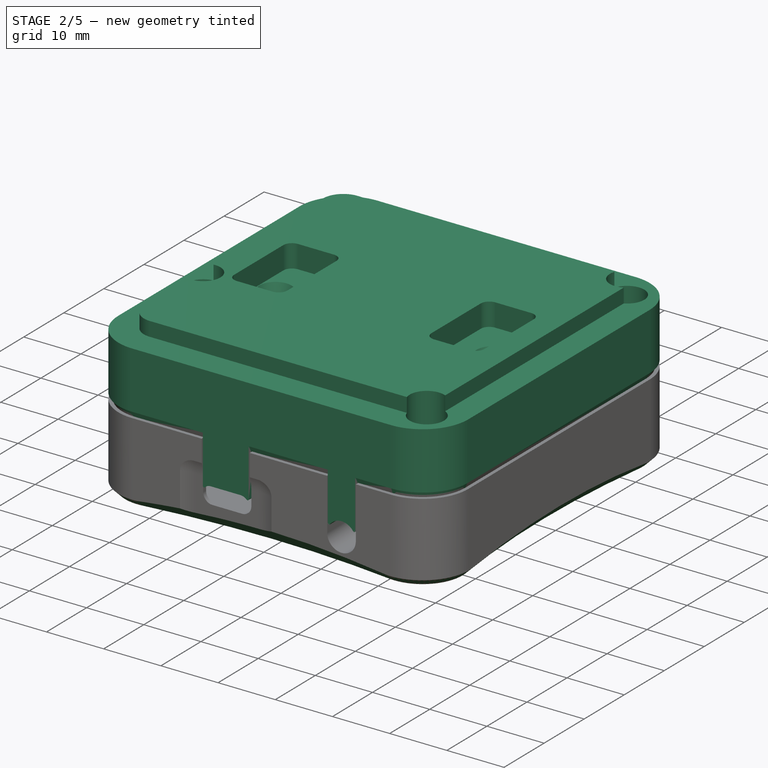
[diagram: stage 2 of 5 — iso view after this stage's code; geometry added in this stage tinted green]
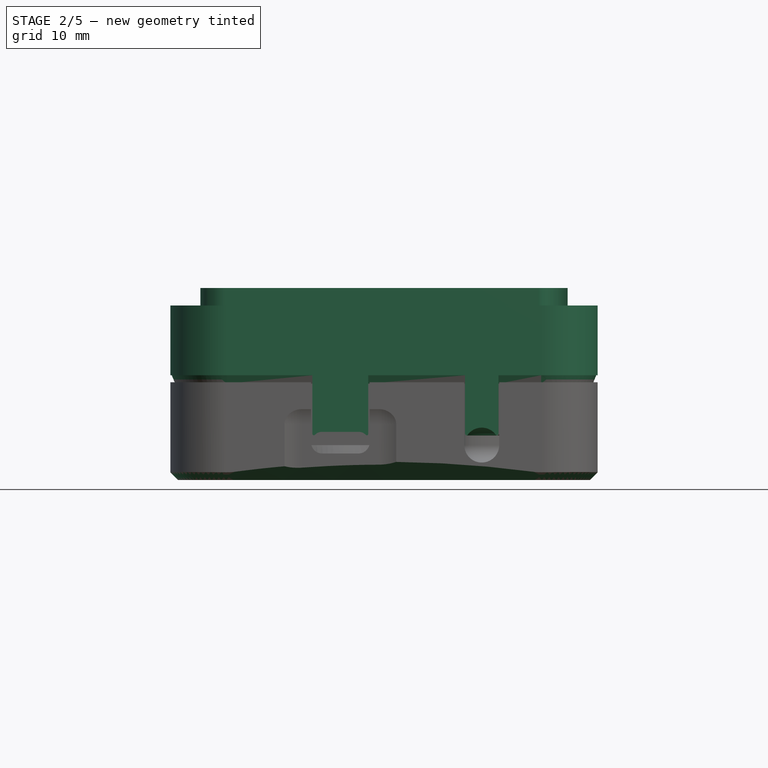
[diagram: stage 2 of 5 — front view after this stage's code; geometry added in this stage tinted green]
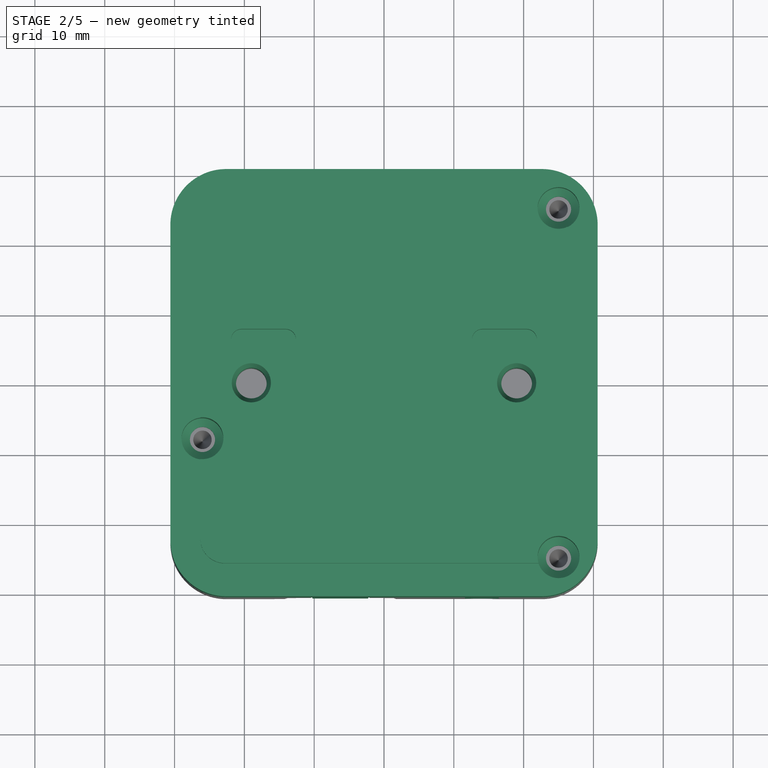
[diagram: stage 2 of 5 — top view after this stage's code; geometry added in this stage tinted green]
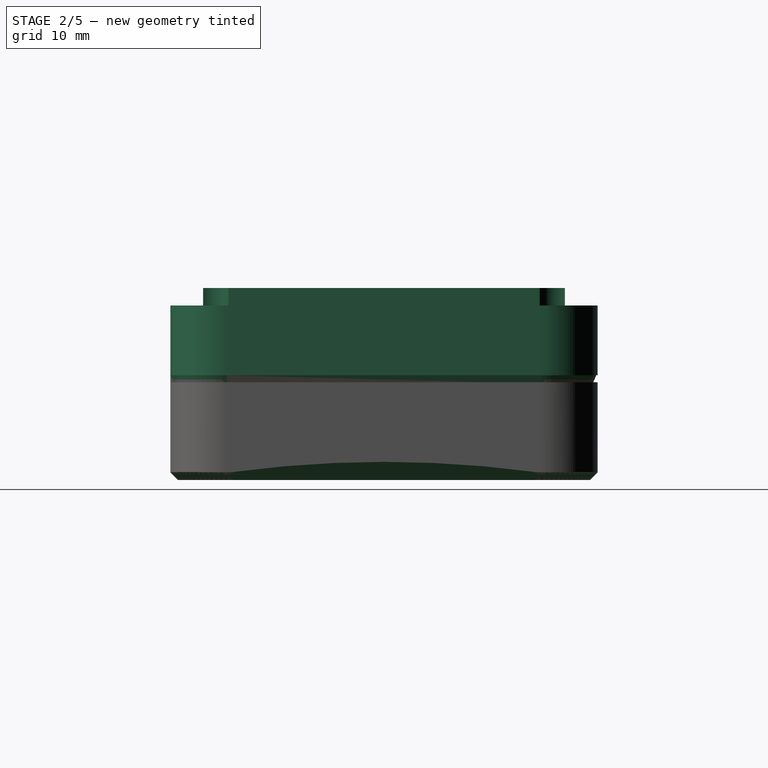
[diagram: stage 2 of 5 — right view after this stage's code; geometry added in this stage tinted green]
FEATURE [Sketcher::SketchObject] Sketch096  label="bt base"
  AttachmentOffset = pos=(0,0,2.5) rot=(0,0,1;0rad)
  MapMode = 5
  Placement = pos=(0,0,2.5) rot=(0,0,1;0rad)
  Support = -> [XY_Plane020]
  sketch-geometry (12):
    g0: LineSegment StartX=-22.6 StartY=30.6 StartZ=0 EndX=22.6 EndY=30.6 EndZ=0
    g1: LineSegment StartX=30.6 StartY=22.6 StartZ=0 EndX=30.6 EndY=-22.6 EndZ=0
    g2: LineSegment StartX=22.6 StartY=-30.6 StartZ=0 EndX=-22.6 EndY=-30.6 EndZ=0
    g3: LineSegment StartX=-30.6 StartY=-22.6 StartZ=0 EndX=-30.6 EndY=22.6 EndZ=0
    g4: ArcOfCircle CenterX=-22.6 CenterY=22.6 CenterZ=0 NormalX=0 NormalY=0 NormalZ=1 AngleXU=0 Radius=8 StartAngle=1.5708 EndAngle=3.14159
    g5: ArcOfCircle CenterX=22.6 CenterY=22.6 CenterZ=0 NormalX=0 NormalY=0 NormalZ=1 AngleXU=0 Radius=8 StartAngle=2.39e-14 EndAngle=1.5708
    g6: ArcOfCircle CenterX=22.6 CenterY=-22.6 CenterZ=0 NormalX=0 NormalY=0 NormalZ=1 AngleXU=0 Radius=8 StartAngle=4.71239 EndAngle=6.28319
    g7: ArcOfCircle CenterX=-22.6 CenterY=-22.6 CenterZ=0 NormalX=0 NormalY=0 NormalZ=1 AngleXU=0 Radius=8 StartAngle=3.14159 EndAngle=4.71239
    g8: LineSegment StartX=-22.6 StartY=22.6 StartZ=0 EndX=22.6 EndY=22.6 EndZ=0
    g9: LineSegment StartX=22.6 StartY=22.6 StartZ=0 EndX=22.6 EndY=-22.6 EndZ=0
    g10: LineSegment StartX=22.6 StartY=-22.6 StartZ=0 EndX=-22.6 EndY=-22.6 EndZ=0
    g11: LineSegment StartX=-22.6 StartY=-22.6 StartZ=0 EndX=-22.6 EndY=22.6 EndZ=0
  constraints (26):
    c: Horizontal(g0)
    c: Horizontal(g2)
    c: Vertical(g1)
    c: Vertical(g3)
    c: Tangent(g3,g4) = 1.5708
    c: Tangent(g0,g4) = 1.5708
    c: Tangent(g0,g5) = 1.5708
    c: Tangent(g1,g5) = 1.5708
    c: Tangent(g1,g6) = 1.5708
    c: Tangent(g2,g6) = 1.5708
    c: Tangent(g2,g7) = 1.5708
    c: Tangent(g3,g7) = 1.5708
    c: Coincident(g8,g9)
    c: Coincident(g9,g10)
    c: Coincident(g10,g11)
    c: Coincident(g11,g8)
    c: Horizontal(g10)
    c: Coincident(g8,g4)
    c: Coincident(g9,g6)
    c: Coincident(g5,g8)
    c: Coincident(g7,g10)
    c: Symmetric(g5,g6,g-1)
    c: Symmetric(g5,g4,g-2)
    c: Equal(g9,g8)
    c: DistanceX(g3,g1) = 61.2
    c: Radius(g5) = 8
FEATURE [PartDesign::Pad] Pad016  label="BT Base"
  Direction = (1,1,1)
  Length = 27.5
  Length2 = 100
  Profile = -> Sketch096
  Reversed = true
  Type = 0
FEATURE [PartDesign::Body] Body021  label="Cable"
  Group = -> [Sketch097,Sketch098,AdditivePipe003]
  Origin = -> Origin021
  Tip = -> AdditivePipe003
FEATURE [Sketcher::SketchObject] Sketch099  label="bt screwhole 1"
  AttachmentOffset = pos=(0,0,8) rot=(0,0,1;0rad)
  MapMode = 5
  Placement = pos=(0,-8,-1.8e-15) rot=(1,0,0;1.5708rad)
  Support = -> [XZ_Plane020]
  sketch-geometry (7):
    g0: LineSegment StartX=-26 StartY=3 StartZ=0 EndX=-26 EndY=-24 EndZ=0
    g1: LineSegment StartX=-24.2 StartY=-24 StartZ=0 EndX=-24.2 EndY=-8 EndZ=0
    g2: LineSegment StartX=-24.2 StartY=-8 StartZ=0 EndX=-23 EndY=-6.8 EndZ=0
    g3: LineSegment StartX=-23 StartY=-6.8 StartZ=0 EndX=-23 EndY=3 EndZ=0
    g4: LineSegment StartX=-23 StartY=3 StartZ=0 EndX=-26 EndY=3 EndZ=0
    g5: LineSegment StartX=-26 StartY=3 StartZ=0 EndX=-26 EndY=6 EndZ=0
    g6: LineSegment StartX=-24.2 StartY=-24 StartZ=0 EndX=-26 EndY=-24 EndZ=0
  constraints (21):
    c: Vertical(g0)
    c: Coincident(g1,g2)
    c: Coincident(g2,g3)
    c: Vertical(g3)
    c: Coincident(g3,g4)
    c: Coincident(g4,g0)
    c: DistanceX(g4,g4) = 3
    c: Angle(g0,g2) = 2.35619
    c: DistanceY(g1,g-1) = 8
    c: Coincident(g5,g0)
    c: Vertical(g5)
    c: Equal(g4,g5)
    c: DistanceY(g0,g1) = 16
    c: DistanceX(g0,g1) = 1.8
    c: DistanceX(g5,g-1) = 26
    c: Horizontal(g4)
    c: DistanceY(g0) = 3
    c: Horizontal(g6)
    c: Coincident(g6,g1)
    c: Coincident(g0,g6)
    c: Vertical(g1)
FEATURE [Sketcher::SketchObject] Sketch100  label="bt screwhole 2"
  AttachmentOffset = pos=(0,0,25) rot=(0,0,1;0rad)
  MapMode = 5
  Placement = pos=(0,-25,-5.6e-15) rot=(1,0,0;1.5708rad)
  Support = -> [XZ_Plane020]
  sketch-geometry (7):
    g0: LineSegment StartX=25 StartY=3 StartZ=0 EndX=25 EndY=-24 EndZ=0
    g1: LineSegment StartX=26.8 StartY=-24 StartZ=0 EndX=26.8 EndY=-8 EndZ=0
    g2: LineSegment StartX=26.8 StartY=-8 StartZ=0 EndX=28 EndY=-6.8 EndZ=0
    g3: LineSegment StartX=28 StartY=-6.8 StartZ=0 EndX=28 EndY=3 EndZ=0
    g4: LineSegment StartX=28 StartY=3 StartZ=0 EndX=25 EndY=3 EndZ=0
    g5: LineSegment StartX=25 StartY=3 StartZ=0 EndX=25 EndY=6 EndZ=0
    g6: LineSegment StartX=26.8 StartY=-24 StartZ=0 EndX=25 EndY=-24 EndZ=0
  constraints (21):
    c: Vertical(g0)
    c: Coincident(g1,g2)
    c: Coincident(g2,g3)
    c: Vertical(g3)
    c: Coincident(g3,g4)
    c: Coincident(g4,g0)
    c: DistanceX(g0) = 25
    c: DistanceX(g4,g4) = 3
    c: Angle(g0,g2) = 2.35619
    c: DistanceY(g1,g-1) = 8
    c: Coincident(g5,g0)
    c: Vertical(g5)
    c: Equal(g4,g5)
    c: DistanceY(g0,g1) = 16
    c: DistanceX(g0,g1) = 1.8
    c: Horizontal(g4)
    c: DistanceY(g3) = 3
    c: Horizontal(g6)
    c: Coincident(g6,g1)
    c: Vertical(g1)
    c: Coincident(g6,g0)
FEATURE [Sketcher::SketchObject] Sketch101  label="bt screwhole 3"
  AttachmentOffset = pos=(0,0,-25) rot=(0,0,1;0rad)
  MapMode = 5
  Placement = pos=(0,25,5.6e-15) rot=(1,0,0;1.5708rad)
  Support = -> [XZ_Plane020]
  sketch-geometry (7):
    g0: LineSegment StartX=25 StartY=3 StartZ=0 EndX=25 EndY=-24 EndZ=0
    g1: LineSegment StartX=26.8 StartY=-24 StartZ=0 EndX=26.8 EndY=-8 EndZ=0
    g2: LineSegment StartX=26.8 StartY=-8 StartZ=0 EndX=28 EndY=-6.8 EndZ=0
    g3: LineSegment StartX=28 StartY=-6.8 StartZ=0 EndX=28 EndY=3 EndZ=0
    g4: LineSegment StartX=28 StartY=3 StartZ=0 EndX=25 EndY=3 EndZ=0
    g5: LineSegment StartX=25 StartY=3 StartZ=0 EndX=25 EndY=6 EndZ=0
    g6: LineSegment StartX=26.8 StartY=-24 StartZ=0 EndX=25 EndY=-24 EndZ=0
  constraints (21):
    c: Vertical(g0)
    c: Coincident(g1,g2)
    c: Coincident(g2,g3)
    c: Vertical(g3)
    c: Coincident(g3,g4)
    c: Coincident(g4,g0)
    c: DistanceX(g4,g4) = 3
    c: Angle(g0,g2) = 2.35619
    c: DistanceY(g1,g-1) = 8
    c: Coincident(g5,g0)
    c: Vertical(g5)
    c: Equal(g4,g5)
    c: DistanceY(g0,g1) = 16
    c: DistanceX(g0,g1) = 1.8
    c: DistanceX(g5) = 25
    c: Horizontal(g4)
    c: DistanceY(g0) = 3
    c: Horizontal(g6)
    c: Coincident(g6,g1)
    c: Vertical(g1)
    c: Coincident(g6,g0)
FEATURE [Sketcher::SketchObject] Sketch103  label="bt pocket wallsocket R"
  AttachmentOffset = pos=(0,0,-1.5) rot=(0,0,1;0rad)
  MapMode = 5
  Placement = pos=(0,0,-1.5) rot=(0,0,1;0rad)
  Support = -> [XY_Plane020]
  sketch-geometry (12):
    g0: LineSegment StartX=14.1 StartY=7.65 StartZ=0 EndX=20.4 EndY=7.65 EndZ=0
    g1: LineSegment StartX=21.9 StartY=6.15 StartZ=0 EndX=21.9 EndY=-6.15 EndZ=0
    g2: LineSegment StartX=20.4 StartY=-7.65 StartZ=0 EndX=14.1 EndY=-7.65 EndZ=0
    g3: LineSegment StartX=12.6 StartY=-6.15 StartZ=0 EndX=12.6 EndY=6.15 EndZ=0
    g4: LineSegment StartX=14.1 StartY=6.15 StartZ=0 EndX=20.4 EndY=6.15 EndZ=0
    g5: LineSegment StartX=20.4 StartY=6.15 StartZ=0 EndX=20.4 EndY=-6.15 EndZ=0
    g6: LineSegment StartX=20.4 StartY=-6.15 StartZ=0 EndX=14.1 EndY=-6.15 EndZ=0
    g7: LineSegment StartX=14.1 StartY=-6.15 StartZ=0 EndX=14.1 EndY=6.15 EndZ=0
    g8: ArcOfCircle CenterX=14.1 CenterY=6.15 CenterZ=0 NormalX=0 NormalY=0 NormalZ=1 AngleXU=0 Radius=1.5 StartAngle=1.5708 EndAngle=3.14159
    g9: ArcOfCircle CenterX=20.4 CenterY=6.15 CenterZ=0 NormalX=0 NormalY=0 NormalZ=1 AngleXU=0 Radius=1.5 StartAngle=2e-16 EndAngle=1.5708
    g10: ArcOfCircle CenterX=20.4 CenterY=-6.15 CenterZ=0 NormalX=0 NormalY=0 NormalZ=1 AngleXU=0 Radius=1.5 StartAngle=4.71239 EndAngle=6.28319
    g11: ArcOfCircle CenterX=14.1 CenterY=-6.15 CenterZ=0 NormalX=0 NormalY=0 NormalZ=1 AngleXU=0 Radius=1.5 StartAngle=3.14159 EndAngle=4.71239
  constraints (27):
    c: Horizontal(g0)
    c: Horizontal(g2)
    c: Vertical(g1)
    c: Vertical(g3)
    c: Coincident(g4,g5)
    c: Coincident(g5,g6)
    c: Coincident(g6,g7)
    c: Coincident(g7,g4)
    c: Horizontal(g4)
    c: Horizontal(g6)
    c: Tangent(g3,g8) = 1.5708
    c: Tangent(g0,g8) = 1.5708
    c: Tangent(g1,g9) = 1.5708
    c: Tangent(g0,g9) = 1.5708
    c: Tangent(g1,g10) = 1.5708
    c: Tangent(g2,g10) = 1.5708
    c: Tangent(g3,g11) = 1.5708
    c: Tangent(g2,g11) = 1.5708
    c: Coincident(g6,g11)
    c: Coincident(g5,g10)
    c: Coincident(g4,g9)
    c: Coincident(g4,g8)
    c: Symmetric(g9,g10,g-1)
    c: DistanceX(g3,g1) = 9.3
    c: DistanceX(g3) = 12.6
    c: DistanceY(g2,g0) = 15.3
    c: Radius(g9) = 1.5
FEATURE [PartDesign::Pocket] Pocket034  label="BT Pocket wallsocket R"
  BaseFeature = -> Pad016
  Length = 5
  Length2 = 100
  Profile = -> Sketch103
  Reversed = true
  Type = 1
FEATURE [PartDesign::Mirrored] Mirrored008  label="BT Pocket wallsocket L"
  BaseFeature = -> Pocket034
  MirrorPlane = -> YZ_Plane021
  Originals = -> [Pocket034]
FEATURE [Sketcher::SketchObject] Sketch104  label="bt pocket relay"
  AttachmentOffset = pos=(0,0,-11) rot=(0,0,1;0rad)
  MapMode = 5
  Placement = pos=(0,0,-11) rot=(0,0,1;0rad)
  Support = -> [XY_Plane020]
  sketch-geometry (8):
    g0: LineSegment StartX=-26.5 StartY=27 StartZ=0 EndX=17.5 EndY=27 EndZ=0
    g1: LineSegment StartX=17.5 StartY=27 StartZ=0 EndX=17.5 EndY=23 EndZ=0
    g2: LineSegment StartX=17.5 StartY=23 StartZ=0 EndX=15.5 EndY=23 EndZ=0
    g3: LineSegment StartX=-26.5 StartY=23 StartZ=0 EndX=-26.5 EndY=27 EndZ=0
    g4: LineSegment StartX=-25.5 StartY=23 StartZ=0 EndX=-25.5 EndY=7 EndZ=0
    g5: LineSegment StartX=-25.5 StartY=7 StartZ=0 EndX=15.5 EndY=7 EndZ=0
    g6: LineSegment StartX=15.5 StartY=7 StartZ=0 EndX=15.5 EndY=23 EndZ=0
    g7: LineSegment StartX=-25.5 StartY=23 StartZ=0 EndX=-26.5 EndY=23 EndZ=0
  constraints (23):
    c: Coincident(g0,g1)
    c: Coincident(g1,g2)
    c: Coincident(g7,g3)
    c: Coincident(g3,g0)
    c: Horizontal(g0)
    c: Horizontal(g2)
    c: Vertical(g1)
    c: Vertical(g3)
    c: Coincident(g4,g5)
    c: Coincident(g5,g6)
    c: Horizontal(g5)
    c: Vertical(g4)
    c: Vertical(g6)
    c: Coincident(g2,g6)
    c: Coincident(g7,g4)
    c: Tangent(g2,g7)
    c: DistanceX(g0,g0) = 44
    c: DistanceY(g0) = 27
    c: DistanceY(g1,g1) = 4
    c: DistanceX(g7,g7) = 1
    c: DistanceX(g2,g2) = 2
    c: DistanceX(g1) = 17.5
    c: DistanceY(g4,g0) = 20
FEATURE [Sketcher::SketchObject] Sketch105  label="bt pocket rim wallsocket"
  MapMode = 5
  Support = -> [XY_Plane020]
  sketch-geometry (16):
    g0: LineSegment StartX=-22.8 StartY=25.9 StartZ=0 EndX=22.8 EndY=25.9 EndZ=0
    g1: LineSegment StartX=26.3 StartY=22.4 StartZ=0 EndX=26.3 EndY=-22.4 EndZ=0
    g2: LineSegment StartX=22.8 StartY=-25.9 StartZ=0 EndX=-22.8 EndY=-25.9 EndZ=0
    g3: LineSegment StartX=-26.3 StartY=-22.4 StartZ=0 EndX=-26.3 EndY=22.4 EndZ=0
    g4: ArcOfCircle CenterX=22.8 CenterY=22.4 CenterZ=0 NormalX=0 NormalY=0 NormalZ=1 AngleXU=0 Radius=3.5 StartAngle=0 EndAngle=1.5708
    g5: ArcOfCircle CenterX=-22.8 CenterY=22.4 CenterZ=0 NormalX=0 NormalY=0 NormalZ=1 AngleXU=0 Radius=3.5 StartAngle=1.5708 EndAngle=3.14159
    g6: ArcOfCircle CenterX=-22.8 CenterY=-22.4 CenterZ=0 NormalX=0 NormalY=0 NormalZ=1 AngleXU=0 Radius=3.5 StartAngle=3.14159 EndAngle=4.71239
    g7: ArcOfCircle CenterX=22.8 CenterY=-22.4 CenterZ=0 NormalX=0 NormalY=0 NormalZ=1 AngleXU=0 Radius=3.5 StartAngle=4.71239 EndAngle=6.28319
    g8: LineSegment StartX=-35 StartY=35 StartZ=0 EndX=35 EndY=35 EndZ=0
    g9: LineSegment StartX=35 StartY=35 StartZ=0 EndX=35 EndY=-35 EndZ=0
    g10: LineSegment StartX=35 StartY=-35 StartZ=0 EndX=-35 EndY=-35 EndZ=0
    g11: LineSegment StartX=-35 StartY=-35 StartZ=0 EndX=-35 EndY=35 EndZ=0
    g12: LineSegment StartX=-22.8 StartY=22.4 StartZ=0 EndX=22.8 EndY=22.4 EndZ=0
    g13: LineSegment StartX=22.8 StartY=22.4 StartZ=0 EndX=22.8 EndY=-22.4 EndZ=0
    g14: LineSegment StartX=22.8 StartY=-22.4 StartZ=0 EndX=-22.8 EndY=-22.4 EndZ=0
    g15: LineSegment StartX=-22.8 StartY=-22.4 StartZ=0 EndX=-22.8 EndY=22.4 EndZ=0
  constraints (36):
    c: Horizontal(g0)
    c: Horizontal(g2)
    c: Vertical(g1)
    c: Vertical(g3)
    c: Tangent(g1,g4) = 1.5708
    c: Tangent(g0,g4) = 1.5708
    c: Tangent(g0,g5) = 1.5708
    c: Tangent(g3,g5) = 1.5708
    c: Tangent(g3,g6) = 1.5708
    c: Tangent(g2,g6) = 1.5708
    c: Tangent(g2,g7) = 1.5708
    c: Tangent(g1,g7) = 1.5708
    c: Coincident(g8,g9)
    c: Coincident(g9,g10)
    c: Coincident(g10,g11)
    c: Coincident(g11,g8)
    c: Horizontal(g10)
    c: Vertical(g11)
    c: Coincident(g12,g13)
    c: Coincident(g13,g14)
    c: Coincident(g14,g15)
    c: Coincident(g15,g12)
    c: Horizontal(g14)
    c: Coincident(g12,g5)
    c: Coincident(g13,g7)
    c: Coincident(g4,g12)
    c: Coincident(g6,g14)
    c: Symmetric(g5,g4,g-2)
    c: Symmetric(g4,g7,g-1)
    c: DistanceY(g2,g0) = 51.8
    c: DistanceX(g3,g1) = 52.6
    c: Radius(g4) = 3.5
    c: Equal(g9,g8)
    c: Symmetric(g8,g9,g-1)
    c: Symmetric(g8,g8,g-2)
    c: DistanceX(g8,g8) = 70
FEATURE [PartDesign::Pocket] Pocket036  label="BT Pocket rim wallsocket"
  BaseFeature = -> Mirrored008
  Length = 5
  Length2 = 100
  Profile = -> Sketch105
  Reversed = true
  Type = 1
FEATURE [Sketcher::SketchObject] Sketch107  label="bt bolt hole R"
  MapMode = 5
  Placement = pos=(0,0,0) rot=(1,0,0;1.5708rad)
  Support = -> [XZ_Plane020]
  sketch-geometry (6):
    g0: LineSegment StartX=19 StartY=-1.5 StartZ=0 EndX=21.8 EndY=-1.5 EndZ=0
    g1: LineSegment StartX=21.2 StartY=-3.14849 StartZ=0 EndX=21.2 EndY=-13.5 EndZ=0
    g2: LineSegment StartX=21.2 StartY=-13.5 StartZ=0 EndX=19 EndY=-13.5 EndZ=0
    g3: LineSegment StartX=19 StartY=-13.5 StartZ=0 EndX=19 EndY=-1.5 EndZ=0
    g4: LineSegment StartX=19 StartY=-1.5 StartZ=0 EndX=19 EndY=1.3 EndZ=0
    g5: LineSegment StartX=21.2 StartY=-3.14849 StartZ=0 EndX=21.8 EndY=-1.5 EndZ=0
  constraints (18):
    c: Coincident(g1,g2)
    c: Coincident(g2,g3)
    c: Coincident(g3,g0)
    c: Horizontal(g0)
    c: Horizontal(g2)
    c: Vertical(g1)
    c: Vertical(g3)
    c: Coincident(g4,g0)
    c: Vertical(g4)
    c: Equal(g0,g4)
    c: DistanceX(g4) = 19
    c: Coincident(g5,g1)
    c: Coincident(g0,g5)
    c: DistanceX(g0,g1) = 2.2
    c: Angle(g1,g5) = 2.79253
    c: DistanceY(g3,g3) = 12
    c: DistanceY(g0,g-1) = 1.5
    c: DistanceX(g0,g0) = 2.8
FEATURE [PartDesign::Groove] Groove012  label="BT Bolt hole R"
  Angle = 360
  Axis = (0,-6e-16,2.8)
  Base = (19,3e-16,-1.5)
  BaseFeature = -> Pocket036
  Profile = -> Sketch107
  ReferenceAxis = -> Sketch107 [Axis0]
FEATURE [PartDesign::Mirrored] Mirrored009  label="BT Bolt hole L"
  BaseFeature = -> Groove012
  MirrorPlane = -> YZ_Plane021
  Originals = -> [Groove012]
FEATURE [PartDesign::Pocket] Pocket051  label="BT Separation top bottom"
  BaseFeature = -> Mirrored009
  Length = 5
  Length2 = 100
  Midplane = true
  Profile = -> Sketch114
  Type = 1
FEATURE [PartDesign::AdditivePipe] AdditivePipe004  label="BT Cable support"
  AuxilleryCurvelinear = true
  AuxillerySpineTangent = false
  BaseFeature = -> Pocket051
  Binormal = (0,0,0)
  Mode = 0
  Profile = -> Sketch131
  Spine = -> Sketch130
  SpineTangent = false
  Transformation = 0
  Transition = 0
FEATURE [PartDesign::Pad] Pad020  label="BT Support USB connector"
  BaseFeature = -> AdditivePipe004
  Direction = (1,1,1)
  Length = 5
  Length2 = 100
  Profile = -> Sketch110
  Reversed = true
  Type = 0
FEATURE [Sketcher::SketchObject] Sketch134  label="bt pillar esp btm"
  AttachmentOffset = pos=(0,0,-17.5) rot=(0,0,1;0rad)
  MapMode = 5
  Placement = pos=(0,0,-17.5) rot=(0,0,1;0rad)
  Support = -> [XY_Plane020]
  sketch-geometry (1):
    g0: Circle CenterX=-6 CenterY=-6.5 CenterZ=0 NormalX=0 NormalY=0 NormalZ=1 AngleXU=0 Radius=2.3
  constraints (3):
    c: DistanceX(g0,g-1) = 6
    c: DistanceY(g0,g-1) = 6.5
    c: Radius(g0) = 2.3
FEATURE [Sketcher::SketchObject] Sketch135  label="bt pillar esp top"
  AttachmentOffset = pos=(0,0,-10) rot=(0,0,1;0rad)
  MapMode = 5
  Placement = pos=(0,0,-10) rot=(0,0,1;0rad)
  Support = -> [XY_Plane020]
  sketch-geometry (1):
    g0: Circle CenterX=-6 CenterY=-6.5 CenterZ=0 NormalX=0 NormalY=0 NormalZ=1 AngleXU=0 Radius=4
  constraints (3):
    c: DistanceX(g0,g-1) = 6
    c: DistanceY(g0,g-1) = 6.5
    c: Radius(g0) = 4
FEATURE [PartDesign::AdditiveLoft] AdditiveLoft  label="BT Pillar ESP"
  BaseFeature = -> Pad020
  Closed = false
  Profile = -> Sketch134
  Ruled = false
  Sections = -> [Sketch135]
FEATURE [Sketcher::SketchObject] Sketch136  label="bt rim trj"
  MapMode = 5
  Support = -> [XY_Plane020]
  sketch-geometry (12):
    g0: LineSegment StartX=-22.5 StartY=22.5 StartZ=0 EndX=22.5 EndY=22.5 EndZ=0
    g1: LineSegment StartX=22.5 StartY=22.5 StartZ=0 EndX=22.5 EndY=-22.5 EndZ=0
    g2: LineSegment StartX=22.5 StartY=-22.5 StartZ=0 EndX=-22.5 EndY=-22.5 EndZ=0
    g3: LineSegment StartX=-22.5 StartY=-22.5 StartZ=0 EndX=-22.5 EndY=22.5 EndZ=0
    g4: LineSegment StartX=-22.5 StartY=29.5 StartZ=0 EndX=22.5 EndY=29.5 EndZ=0
    g5: LineSegment StartX=29.5 StartY=22.5 StartZ=0 EndX=29.5 EndY=-22.5 EndZ=0
    g6: LineSegment StartX=22.5 StartY=-29.5 StartZ=0 EndX=-22.5 EndY=-29.5 EndZ=0
    g7: LineSegment StartX=-29.5 StartY=-22.5 StartZ=0 EndX=-29.5 EndY=22.5 EndZ=0
    g8: ArcOfCircle CenterX=-22.5 CenterY=22.5 CenterZ=0 NormalX=0 NormalY=0 NormalZ=1 AngleXU=0 Radius=7 StartAngle=1.5708 EndAngle=3.14159
    g9: ArcOfCircle CenterX=-22.5 CenterY=-22.5 CenterZ=0 NormalX=0 NormalY=0 NormalZ=1 AngleXU=0 Radius=7 StartAngle=3.14159 EndAngle=4.71239
    g10: ArcOfCircle CenterX=22.5 CenterY=-22.5 CenterZ=0 NormalX=0 NormalY=0 NormalZ=1 AngleXU=0 Radius=7 StartAngle=4.71239 EndAngle=6.28319
    g11: ArcOfCircle CenterX=22.5 CenterY=22.5 CenterZ=0 NormalX=0 NormalY=0 NormalZ=1 AngleXU=0 Radius=7 StartAngle=5.7254e-12 EndAngle=1.5708
  constraints (26):
    c: Coincident(g0,g1)
    c: Coincident(g1,g2)
    c: Coincident(g2,g3)
    c: Coincident(g3,g0)
    c: Horizontal(g2)
    c: Vertical(g3)
    c: Horizontal(g4)
    c: Horizontal(g6)
    c: Vertical(g5)
    c: Tangent(g4,g8) = 1.5708
    c: Tangent(g7,g8) = 1.5708
    c: Tangent(g7,g9) = 1.5708
    c: Tangent(g6,g9) = 1.5708
    c: Tangent(g6,g10) = 1.5708
    c: Tangent(g5,g10) = 1.5708
    c: Tangent(g5,g11) = 1.5708
    c: Tangent(g4,g11) = 1.5708
    c: Coincident(g0,g11)
    c: Coincident(g0,g8)
    c: Coincident(g2,g9)
    c: Coincident(g1,g10)
    c: Symmetric(g10,g11,g-1)
    c: Symmetric(g11,g8,g-2)
    c: DistanceY(g6,g4) = 59
    c: Radius(g11) = 7
    c: Equal(g1,g0)
FEATURE [Sketcher::SketchObject] Sketch137  label="bt rim crs"
  MapMode = 5
  Placement = pos=(0,0,0) rot=(0.57735,0.57735,0.57735;2.0944rad)
  Support = -> [YZ_Plane021]
  sketch-geometry (5):
    g0: LineSegment StartX=30.3971 StartY=-10 StartZ=0 EndX=28.6029 EndY=-10 EndZ=0
    g1: LineSegment StartX=28.6029 StartY=-10 StartZ=0 EndX=29.1 EndY=-11.2 EndZ=0
    g2: LineSegment StartX=29.1 StartY=-11.2 StartZ=0 EndX=29.9 EndY=-11.2 EndZ=0
    g3: LineSegment StartX=29.9 StartY=-11.2 StartZ=0 EndX=30.3971 EndY=-10 EndZ=0
    g4: LineSegment StartX=29.5 StartY=-11.2 StartZ=0 EndX=29.5 EndY=-10 EndZ=0
  constraints (14):
    c: Horizontal(g0)
    c: Coincident(g0,g1)
    c: Coincident(g1,g2)
    c: Coincident(g2,g3)
    c: Coincident(g3,g0)
    c: PointOnObject(g4,g2)
    c: PointOnObject(g4,g0)
    c: Symmetric(g0,g0,g4)
    c: Symmetric(g2,g1,g4)
    c: DistanceX(g4) = 29.5
    c: DistanceY(g0,g-1) = 10
    c: DistanceX(g2,g2) = 0.8
    c: DistanceY(g3,g3) = 1.2
    c: Angle(g3,g1) = 0.785398
FEATURE [PartDesign::AdditivePipe] AdditivePipe005  label="BT Rim"
  AuxilleryCurvelinear = true
  AuxillerySpineTangent = false
  BaseFeature = -> AdditiveLoft
  Binormal = (0,0,0)
  Mode = 0
  Profile = -> Sketch137
  Spine = -> Sketch136
  SpineTangent = false
  Transformation = 0
  Transition = 0
FEATURE [PartDesign::Pocket] Pocket052  label="BT Pocket relay"
  BaseFeature = -> AdditivePipe005
  Length = 18
  Length2 = 100
  Midplane = true
  Profile = -> Sketch104
  Type = 0
FEATURE [PartDesign::Groove] Groove018  label="BT Screwhole 1"
  Angle = 360
  Axis = (0,-7e-16,3)
  Base = (-26,-8,3)
  BaseFeature = -> Pocket052
  Profile = -> Sketch099
  ReferenceAxis = -> Sketch099 [Axis0]
FEATURE [PartDesign::Groove] Groove019  label="BT Screwhole 2"
  Angle = 360
  Axis = (0,-7e-16,3)
  Base = (25,-25,3)
  BaseFeature = -> Groove018
  Profile = -> Sketch100
  ReferenceAxis = -> Sketch100 [Axis0]
FEATURE [PartDesign::Groove] Groove020  label="BT Screwhole 3"
  Angle = 360
  Axis = (0,-7e-16,3)
  Base = (25,25,3)
  BaseFeature = -> Groove019
  Profile = -> Sketch101
  ReferenceAxis = -> Sketch101 [Axis0]
FEATURE [PartDesign::Body] Body020  label="Body top"
  Group = -> [Sketch096,Pad016,Sketch099,Sketch100,Sketch101,Sketch103,Pocket034,Mirrored008,Sketch104,Sketch105,Pocket036,Sketch107,Groove012,Mirrored009,Sketch110,Sketch113,Sketch114,Sketch130,Sketch131,Pocket051,AdditivePipe004,Pad020,Sketch134,Sketch135,AdditiveLoft,Sketch136,Sketch137,AdditivePipe005,Pocket052,Groove018,Groove019,Groove020,Pocket053,Sketch138,Pocket054,Sketch144,Pocket056]
  Origin = -> Origin020
  Tip = -> Pocket056
FEATURE [Sketcher::SketchObject] Sketch145  label="bb fillet btm crs"
  MapMode = 5
  Placement = pos=(0,0,0) rot=(1,0,0;1.5708rad)
  Support = -> [XZ_Plane022]
  sketch-geometry (3):
    g0: LineSegment StartX=32 StartY=-21 StartZ=0 EndX=26 EndY=-27 EndZ=0
    g1: LineSegment StartX=26 StartY=-27 StartZ=0 EndX=32 EndY=-27 EndZ=0
    g2: LineSegment StartX=32 StartY=-27 StartZ=0 EndX=32 EndY=-21 EndZ=0
  constraints (9):
    c: Coincident(g0,g1)
    c: Horizontal(g1)
    c: Coincident(g1,g2)
    c: Coincident(g2,g0)
    c: Vertical(g2)
    c: Equal(g1,g2)
    c: DistanceX(g1) = 32
    c: DistanceY(g1,g-1) = 27
    c: DistanceY(g2,g2) = 6
FEATURE [Sketcher::SketchObject] Sketch146  label="bb fillet btm trj"
  MapMode = 5
  Support = -> [XY_Plane022]
  sketch-geometry (13):
    g0: ArcOfCircle CenterX=190.5 CenterY=0 CenterZ=0 NormalX=0 NormalY=0 NormalZ=1 AngleXU=0 Radius=162.5 StartAngle=3.00846 EndAngle=3.27473
    g1: ArcOfCircle CenterX=0 CenterY=190.5 CenterZ=0 NormalX=0 NormalY=0 NormalZ=1 AngleXU=0 Radius=162.5 StartAngle=4.57925 EndAngle=4.84553
    g2: ArcOfCircle CenterX=-190.5 CenterY=0 CenterZ=0 NormalX=0 NormalY=0 NormalZ=1 AngleXU=0 Radius=162.5 StartAngle=6.15005 EndAngle=6.41632
    g3: ArcOfCircle CenterX=0 CenterY=-190.5 CenterZ=0 NormalX=0 NormalY=0 NormalZ=1 AngleXU=0 Radius=162.5 StartAngle=1.43766 EndAngle=1.70393
    g4: ArcOfCircle CenterX=22.5 CenterY=-22.5 CenterZ=0 NormalX=0 NormalY=0 NormalZ=1 AngleXU=0 Radius=7 StartAngle=4.57925 EndAngle=6.41632
    g5: ArcOfCircle CenterX=22.5 CenterY=22.5 CenterZ=0 NormalX=0 NormalY=0 NormalZ=1 AngleXU=0 Radius=7 StartAngle=6.15005 EndAngle=7.98712
    g6: ArcOfCircle CenterX=-22.5 CenterY=22.5 CenterZ=0 NormalX=0 NormalY=0 NormalZ=1 AngleXU=0 Radius=7 StartAngle=1.43766 EndAngle=3.27473
    g7: ArcOfCircle CenterX=-22.5 CenterY=-22.5 CenterZ=0 NormalX=0 NormalY=0 NormalZ=1 AngleXU=0 Radius=7 StartAngle=3.00846 EndAngle=4.84553
    g8: LineSegment StartX=-22.5 StartY=22.5 StartZ=0 EndX=22.5 EndY=22.5 EndZ=0
    g9: LineSegment StartX=22.5 StartY=22.5 StartZ=0 EndX=22.5 EndY=-22.5 EndZ=0
    g10: LineSegment StartX=22.5 StartY=-22.5 StartZ=0 EndX=-22.5 EndY=-22.5 EndZ=0
    g11: LineSegment StartX=-22.5 StartY=-22.5 StartZ=0 EndX=-22.5 EndY=22.5 EndZ=0
    g12: GeomPoint X=28 Y=0 Z=0
  constraints (35):
    c: PointOnObject(g0,g-1)
    c: PointOnObject(g1,g-2)
    c: PointOnObject(g2,g-1)
    c: PointOnObject(g3,g-2)
    c: Tangent(g3,g4) = 1.5708
    c: Tangent(g0,g4) = 1.5708
    c: Tangent(g1,g5) = 1.5708
    c: Tangent(g0,g5) = 1.5708
    c: Tangent(g2,g6) = 1.5708
    c: Tangent(g1,g6) = 1.5708
    c: Tangent(g3,g7) = 1.5708
    c: Tangent(g2,g7) = 1.5708
    c: Coincident(g8,g9)
    c: Coincident(g9,g10)
    c: Coincident(g10,g11)
    c: Coincident(g11,g8)
    c: Horizontal(g8)
    c: Horizontal(g10)
    c: Vertical(g11)
    c: Coincident(g8,g6)
    c: Coincident(g9,g4)
    c: Coincident(g5,g8)
    c: Coincident(g7,g10)
    c: Symmetric(g4,g5,g-1)
    c: Symmetric(g5,g6,g-2)
    c: Equal(g8,g9)
    c: DistanceX(g8,g8) = 45
    c: Radius(g5) = 7
    c: Equal(g6,g5)
    c: Equal(g0,g1)
    c: Equal(g1,g2)
    c: Equal(g2,g3)
    c: PointOnObject(g12,g0)
    c: PointOnObject(g12,g-1)
    c: DistanceX(g12) = 28
FEATURE [PartDesign::SubtractivePipe] SubtractivePipe010  label="BB Fillet btm"
  AuxilleryCurvelinear = true
  AuxillerySpineTangent = false
  BaseFeature = -> SubtractivePipe009
  Binormal = (0,0,0)
  Mode = 0
  Profile = -> Sketch145
  Spine = -> Sketch146
  SpineTangent = false
  Transformation = 0
  Transition = 0
FEATURE [PartDesign::Body] Body022  label="Body bottom"
  Group = -> [Sketch116,Pad017,Sketch117,Sketch118,Sketch119,Groove014,Groove013,Groove016,Sketch122,Sketch121,Sketch127,Sketch124,Sketch125,Sketch126,Sketch128,SubtractivePipe008,Sketch129,Pocket044,Sketch115,Pocket041,Pocket048,Sketch132,Pad019,Groove017,Sketch133,Pocket049,Mirrored010,Pocket055,Sketch139,SubtractiveLoft,Sketch140,Sketch141,SubtractivePipe,Sketch142,Sketch143,SubtractivePipe009,Sketch145,+2 more]
  Origin = -> Origin022
  Tip = -> SubtractivePipe010
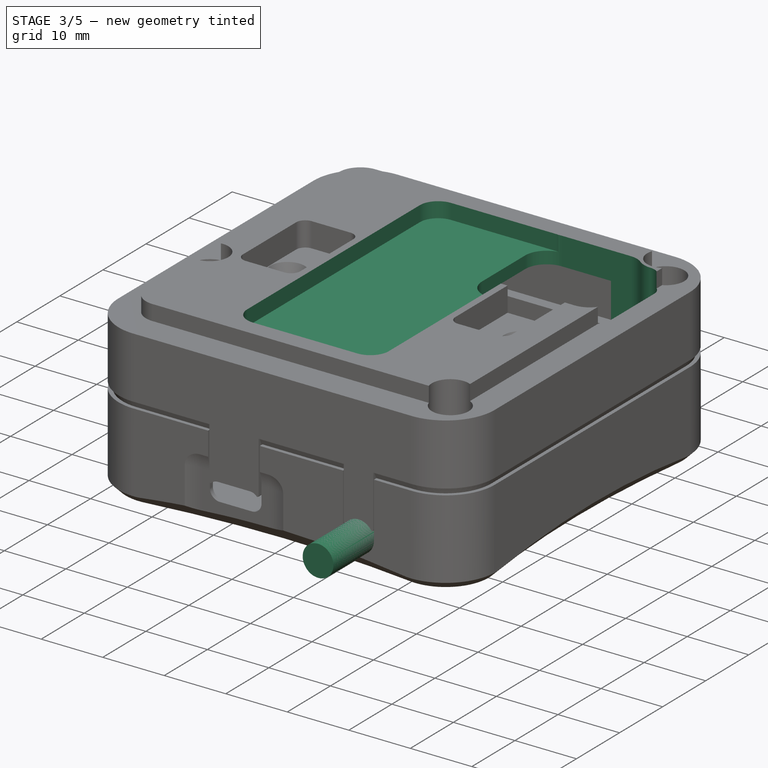
[diagram: stage 3 of 5 — iso view after this stage's code; geometry added in this stage tinted green]
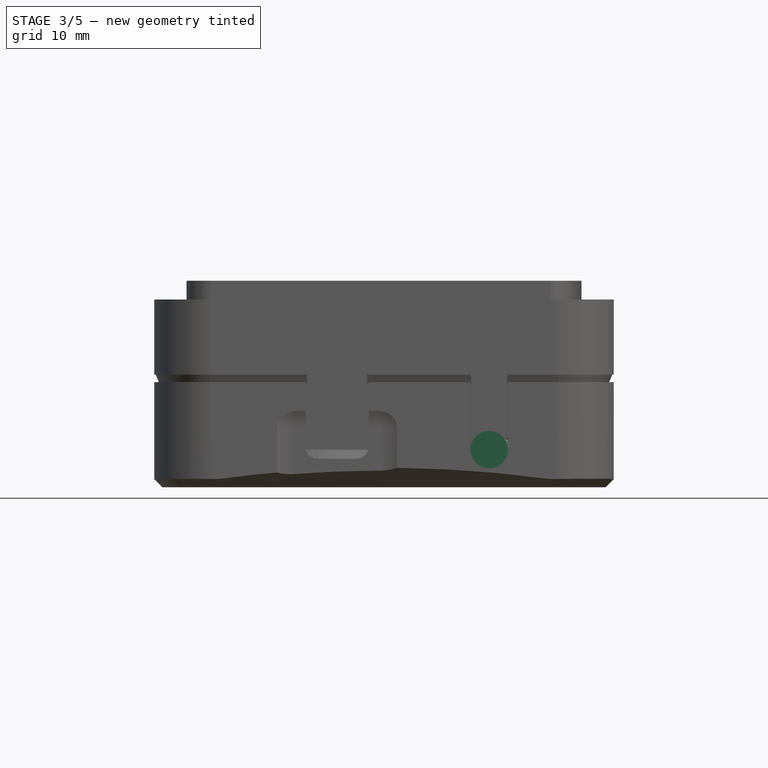
[diagram: stage 3 of 5 — front view after this stage's code; geometry added in this stage tinted green]
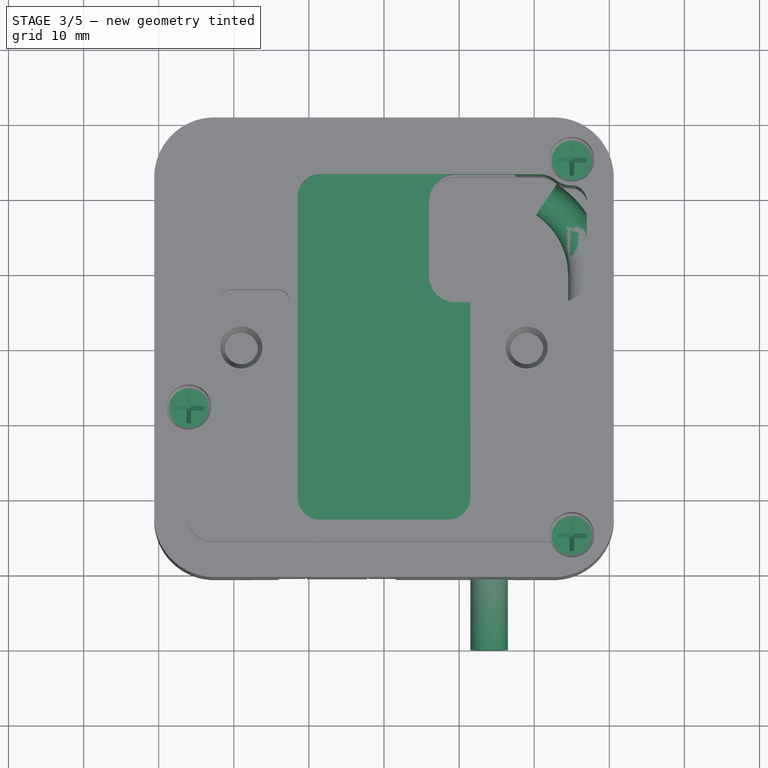
[diagram: stage 3 of 5 — top view after this stage's code; geometry added in this stage tinted green]
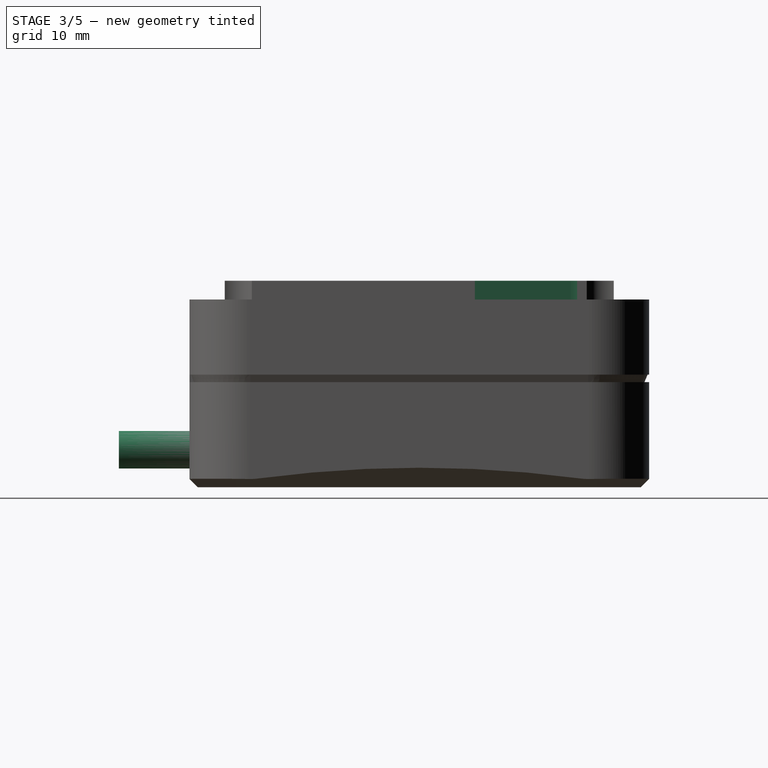
[diagram: stage 3 of 5 — right view after this stage's code; geometry added in this stage tinted green]
FEATURE [Sketcher::SketchObject] Sketch057
  MapMode = 5
  Placement = pos=(0,0,0) rot=(1,0,0;1.5708rad)
  Support = -> [XZ_Plane016]
  sketch-geometry (5):
    g0: LineSegment StartX=0 StartY=0 StartZ=0 EndX=0 EndY=-16 EndZ=0
    g1: LineSegment StartX=0 StartY=-16 StartZ=0 EndX=1.5 EndY=-1.25 EndZ=0
    g2: LineSegment StartX=1.5 StartY=-1.25 StartZ=0 EndX=2.65 EndY=-0.1 EndZ=0
    g3: LineSegment StartX=2.65 StartY=0 StartZ=0 EndX=0 EndY=0 EndZ=0
    g4: LineSegment StartX=2.65 StartY=-0.1 StartZ=0 EndX=2.65 EndY=0 EndZ=0
  constraints (14):
    c: Coincident(g-1,g0)
    c: Vertical(g0)
    c: Coincident(g0,g1)
    c: Coincident(g1,g2)
    c: Coincident(g3,g0)
    c: DistanceY(g0,g0) = 16
    c: Angle(g3,g2) = 0.785398
    c: DistanceX(g0,g1) = 1.5
    c: Horizontal(g3)
    c: Coincident(g4,g2)
    c: Vertical(g4)
    c: Coincident(g3,g4)
    c: DistanceX(g3) = 2.65
    c: DistanceY(g4,g4) = 0.1
FEATURE [PartDesign::Revolution] Revolution010
  AllowMultiFace = false
  Angle = 360
  Axis = (-3e-16,3e-16,1)
  Base = (0,0,0)
  Placement = pos=(0,0,0) rot=(1,0,0;1.5708rad)
  Profile = -> Sketch057
  ReferenceAxis = -> Z_Axis016
  Reversed = true
FEATURE [Sketcher::SketchObject] Sketch058
  MapMode = 5
  Placement = pos=(0,0,0) rot=(1,0,0;1.5708rad)
  Support = -> [XZ_Plane016]
  sketch-geometry (3):
    g0: LineSegment StartX=-2 StartY=0 StartZ=0 EndX=0 EndY=-2 EndZ=0
    g1: LineSegment StartX=0 StartY=-2 StartZ=0 EndX=2 EndY=0 EndZ=0
    g2: LineSegment StartX=2 StartY=0 StartZ=0 EndX=-2 EndY=0 EndZ=0
  constraints (9):
    c: PointOnObject(g0,g-1)
    c: Coincident(g0,g1)
    c: PointOnObject(g1,g-1)
    c: Coincident(g1,g2)
    c: Coincident(g2,g0)
    c: PointOnObject(g0,g-2)
    c: Equal(g1,g0)
    c: Perpendicular(g0,g1)
    c: DistanceX(g2,g2) = 4
FEATURE [PartDesign::Pocket] Pocket017
  AllowMultiFace = false
  BaseFeature = -> Revolution010
  Length = 0.6
  Length2 = 100
  Midplane = true
  Placement = pos=(0,0,0) rot=(1,0,0;1.5708rad)
  Profile = -> Sketch058
  Type = 0
FEATURE [PartDesign::PolarPattern] PolarPattern
  Angle = 90
  Axis = -> Z_Axis016
  BaseFeature = -> Pocket017
  Occurrences = 2
  Originals = -> [Pocket017]
  Placement = pos=(0,0,0) rot=(1,0,0;1.5708rad)
FEATURE [PartDesign::Body] Body016  label="SelftappingScrew3.0x16_01"
  Group = -> [Sketch057,Revolution010,Sketch058,Pocket017,PolarPattern]
  Origin = -> Origin016
  Tip = -> PolarPattern
FEATURE [Part::Compound] Compound001  label="SelftappingScrew3.0x16 001"
  Links = -> [Body016]
  Placement = pos=(-26,-8,-7) rot=(0,0,1;1.5708rad)
FEATURE [Sketcher::SketchObject] Sketch059
  MapMode = 5
  Placement = pos=(0,0,0) rot=(1,0,0;1.5708rad)
  Support = -> [XZ_Plane017]
  sketch-geometry (5):
    g0: LineSegment StartX=0 StartY=0 StartZ=0 EndX=0 EndY=-16 EndZ=0
    g1: LineSegment StartX=0 StartY=-16 StartZ=0 EndX=1.5 EndY=-1.25 EndZ=0
    g2: LineSegment StartX=1.5 StartY=-1.25 StartZ=0 EndX=2.65 EndY=-0.1 EndZ=0
    g3: LineSegment StartX=2.65 StartY=0 StartZ=0 EndX=0 EndY=0 EndZ=0
    g4: LineSegment StartX=2.65 StartY=-0.1 StartZ=0 EndX=2.65 EndY=0 EndZ=0
  constraints (14):
    c: Coincident(g-1,g0)
    c: Vertical(g0)
    c: Coincident(g0,g1)
    c: Coincident(g1,g2)
    c: Coincident(g3,g0)
    c: DistanceY(g0,g0) = 16
    c: Angle(g3,g2) = 0.785398
    c: DistanceX(g0,g1) = 1.5
    c: Horizontal(g3)
    c: Coincident(g4,g2)
    c: Vertical(g4)
    c: Coincident(g3,g4)
    c: DistanceX(g3) = 2.65
    c: DistanceY(g4,g4) = 0.1
FEATURE [PartDesign::Revolution] Revolution011
  AllowMultiFace = false
  Angle = 360
  Axis = (-3e-16,3e-16,1)
  Base = (0,0,0)
  Placement = pos=(0,0,0) rot=(1,0,0;1.5708rad)
  Profile = -> Sketch059
  ReferenceAxis = -> Z_Axis017
  Reversed = true
FEATURE [Sketcher::SketchObject] Sketch060
  MapMode = 5
  Placement = pos=(0,0,0) rot=(1,0,0;1.5708rad)
  Support = -> [XZ_Plane017]
  sketch-geometry (3):
    g0: LineSegment StartX=-2 StartY=0 StartZ=0 EndX=0 EndY=-2 EndZ=0
    g1: LineSegment StartX=0 StartY=-2 StartZ=0 EndX=2 EndY=0 EndZ=0
    g2: LineSegment StartX=2 StartY=0 StartZ=0 EndX=-2 EndY=0 EndZ=0
  constraints (9):
    c: PointOnObject(g0,g-1)
    c: Coincident(g0,g1)
    c: PointOnObject(g1,g-1)
    c: Coincident(g1,g2)
    c: Coincident(g2,g0)
    c: PointOnObject(g0,g-2)
    c: Equal(g1,g0)
    c: Perpendicular(g0,g1)
    c: DistanceX(g2,g2) = 4
FEATURE [PartDesign::Pocket] Pocket018
  AllowMultiFace = false
  BaseFeature = -> Revolution011
  Length = 0.6
  Length2 = 100
  Midplane = true
  Placement = pos=(0,0,0) rot=(1,0,0;1.5708rad)
  Profile = -> Sketch060
  Type = 0
FEATURE [PartDesign::PolarPattern] PolarPattern001
  Angle = 90
  Axis = -> Z_Axis017
  BaseFeature = -> Pocket018
  Occurrences = 2
  Originals = -> [Pocket018]
  Placement = pos=(0,0,0) rot=(1,0,0;1.5708rad)
FEATURE [PartDesign::Body] Body017  label="SelftappingScrew3.0x16_002"
  Group = -> [Sketch059,Revolution011,Sketch060,Pocket018,PolarPattern001]
  Origin = -> Origin017
  Tip = -> PolarPattern001
FEATURE [Part::Compound] Compound002  label="SelftappingScrew3.0x16 002"
  Links = -> [Body017]
  Placement = pos=(25,-25,-7) rot=(0,0,1;1.5708rad)
FEATURE [Sketcher::SketchObject] Sketch061
  MapMode = 5
  Placement = pos=(0,0,0) rot=(1,0,0;1.5708rad)
  Support = -> [XZ_Plane018]
  sketch-geometry (5):
    g0: LineSegment StartX=0 StartY=0 StartZ=0 EndX=0 EndY=-16 EndZ=0
    g1: LineSegment StartX=0 StartY=-16 StartZ=0 EndX=1.5 EndY=-1.25 EndZ=0
    g2: LineSegment StartX=1.5 StartY=-1.25 StartZ=0 EndX=2.65 EndY=-0.1 EndZ=0
    g3: LineSegment StartX=2.65 StartY=0 StartZ=0 EndX=0 EndY=0 EndZ=0
    g4: LineSegment StartX=2.65 StartY=-0.1 StartZ=0 EndX=2.65 EndY=0 EndZ=0
  constraints (14):
    c: Coincident(g-1,g0)
    c: Vertical(g0)
    c: Coincident(g0,g1)
    c: Coincident(g1,g2)
    c: Coincident(g3,g0)
    c: DistanceY(g0,g0) = 16
    c: Angle(g3,g2) = 0.785398
    c: DistanceX(g0,g1) = 1.5
    c: Horizontal(g3)
    c: Coincident(g4,g2)
    c: Vertical(g4)
    c: Coincident(g3,g4)
    c: DistanceX(g3) = 2.65
    c: DistanceY(g4,g4) = 0.1
FEATURE [PartDesign::Revolution] Revolution012
  AllowMultiFace = false
  Angle = 360
  Axis = (-3e-16,3e-16,1)
  Base = (0,0,0)
  Placement = pos=(0,0,0) rot=(1,0,0;1.5708rad)
  Profile = -> Sketch061
  ReferenceAxis = -> Z_Axis018
  Reversed = true
FEATURE [Sketcher::SketchObject] Sketch062
  MapMode = 5
  Placement = pos=(0,0,0) rot=(1,0,0;1.5708rad)
  Support = -> [XZ_Plane018]
  sketch-geometry (3):
    g0: LineSegment StartX=-2 StartY=0 StartZ=0 EndX=0 EndY=-2 EndZ=0
    g1: LineSegment StartX=0 StartY=-2 StartZ=0 EndX=2 EndY=0 EndZ=0
    g2: LineSegment StartX=2 StartY=0 StartZ=0 EndX=-2 EndY=0 EndZ=0
  constraints (9):
    c: PointOnObject(g0,g-1)
    c: Coincident(g0,g1)
    c: PointOnObject(g1,g-1)
    c: Coincident(g1,g2)
    c: Coincident(g2,g0)
    c: PointOnObject(g0,g-2)
    c: Equal(g1,g0)
    c: Perpendicular(g0,g1)
    c: DistanceX(g2,g2) = 4
FEATURE [PartDesign::Pocket] Pocket019
  AllowMultiFace = false
  BaseFeature = -> Revolution012
  Length = 0.6
  Length2 = 100
  Midplane = true
  Placement = pos=(0,0,0) rot=(1,0,0;1.5708rad)
  Profile = -> Sketch062
  Type = 0
FEATURE [PartDesign::PolarPattern] PolarPattern002
  Angle = 90
  Axis = -> Z_Axis018
  BaseFeature = -> Pocket019
  Occurrences = 2
  Originals = -> [Pocket019]
  Placement = pos=(0,0,0) rot=(1,0,0;1.5708rad)
FEATURE [PartDesign::Body] Body018  label="SelftappingScrew3.0x16_003"
  Group = -> [Sketch061,Revolution012,Sketch062,Pocket019,PolarPattern002]
  Origin = -> Origin018
  Tip = -> PolarPattern002
FEATURE [Part::Compound] Compound003  label="SelftappingScrew3.0x16 003"
  Links = -> [Body018]
  Placement = pos=(25,25,-7) rot=(0,0,1;1.5708rad)
FEATURE [Sketcher::SketchObject] Sketch097  label="cb trj"
  MapMode = 5
  Support = -> [XY_Plane021]
  sketch-geometry (5):
    g0: LineSegment StartX=27 StartY=10 StartZ=0 EndX=27 EndY=-5 EndZ=0
    g1: LineSegment StartX=14 StartY=-20 StartZ=0 EndX=14 EndY=-40 EndZ=0
    g2: ArcOfCircle CenterX=21.5769 CenterY=-20 CenterZ=0 NormalX=0 NormalY=0 NormalZ=1 AngleXU=0 Radius=7.57692 StartAngle=1.71341 EndAngle=3.14159
    g3: ArcOfCircle CenterX=19.4231 CenterY=-5 CenterZ=0 NormalX=0 NormalY=0 NormalZ=1 AngleXU=0 Radius=7.57692 StartAngle=4.855 EndAngle=6.28319
    g4: ArcOfCircle CenterX=15 CenterY=10 CenterZ=0 NormalX=0 NormalY=0 NormalZ=1 AngleXU=0 Radius=12 StartAngle=0 EndAngle=0.985111
  constraints (15):
    c: Vertical(g0)
    c: Vertical(g1)
    c: DistanceX(g1) = 14
    c: Tangent(g1,g2) = -1.5708
    c: Tangent(g2,g3) = 1.5708
    c: Tangent(g0,g3) = 1.5708
    c: DistanceY(g1,g-1) = 20
    c: DistanceX(g0) = 27
    c: Equal(g2,g3)
    c: DistanceY(g1,g-1) = 40
    c: DistanceY(g-1,g0) = 10
    c: DistanceY(g0,g-1) = 5
    c: Tangent(g0,g4) = 1.5708
    c: Radius(g4) = 12
    c: DistanceY(g0,g4) = 10
FEATURE [Sketcher::SketchObject] Sketch098  label="cb crs"
  MapMode = 5
  Placement = pos=(0,0,0) rot=(1,0,0;1.5708rad)
  Support = -> [XZ_Plane021]
  sketch-geometry (1):
    g0: Circle CenterX=27 CenterY=-20 CenterZ=0 NormalX=0 NormalY=0 NormalZ=1 AngleXU=0 Radius=2.5
  constraints (3):
    c: DistanceX(g0) = 27
    c: Radius(g0) = 2.5
    c: DistanceY(g0,g-1) = 20
FEATURE [PartDesign::AdditivePipe] AdditivePipe003  label="CB Cable"
  AuxilleryCurvelinear = true
  AuxillerySpineTangent = false
  Binormal = (0,0,0)
  Mode = 0
  Placement = pos=(0,0,0) rot=(1,0,0;1.5708rad)
  Profile = -> Sketch098
  Spine = -> Sketch097
  SpineTangent = false
  Transformation = 0
  Transition = 0
FEATURE [PartDesign::Pocket] Pocket053  label="BT Hole wires"
  BaseFeature = -> Groove020
  Length = 5
  Length2 = 100
  Midplane = true
  Profile = -> Sketch113
  Type = 1
FEATURE [Sketcher::SketchObject] Sketch138
  AttachmentOffset = pos=(0,0,-5.8) rot=(0,0,1;0rad)
  MapMode = 5
  Placement = pos=(0,0,-5.8) rot=(0,0,1;0rad)
  Support = -> [XY_Plane020]
  sketch-geometry (2):
    g0: Circle CenterX=19 CenterY=0 CenterZ=0 NormalX=0 NormalY=0 NormalZ=1 AngleXU=0 Radius=6.5
    g1: Circle CenterX=-19 CenterY=0 CenterZ=0 NormalX=0 NormalY=0 NormalZ=1 AngleXU=0 Radius=6.5
  constraints (5):
    c: PointOnObject(g0,g-1)
    c: Symmetric(g1,g0,g-2)
    c: DistanceX(g1,g0) = 38
    c: Equal(g1,g0)
    c: Radius(g0) = 6.5
FEATURE [PartDesign::Pocket] Pocket054  label="BT Hole nut pillars"
  BaseFeature = -> Pocket053
  Length = 5
  Length2 = 100
  Profile = -> Sketch138
  Type = 1
FEATURE [Sketcher::SketchObject] Sketch144
  MapMode = 5
  Support = -> [XY_Plane020]
  sketch-geometry (12):
    g0: LineSegment StartX=-8.5 StartY=23 StartZ=0 EndX=8.5 EndY=23 EndZ=0
    g1: LineSegment StartX=11.5 StartY=20 StartZ=0 EndX=11.5 EndY=-20 EndZ=0
    g2: LineSegment StartX=8.5 StartY=-23 StartZ=0 EndX=-8.5 EndY=-23 EndZ=0
    g3: LineSegment StartX=-11.5 StartY=-20 StartZ=0 EndX=-11.5 EndY=20 EndZ=0
    g4: ArcOfCircle CenterX=8.5 CenterY=20 CenterZ=0 NormalX=0 NormalY=0 NormalZ=1 AngleXU=0 Radius=3 StartAngle=0 EndAngle=1.5708
    g5: ArcOfCircle CenterX=-8.5 CenterY=20 CenterZ=0 NormalX=0 NormalY=0 NormalZ=1 AngleXU=0 Radius=3 StartAngle=1.5708 EndAngle=3.14159
    g6: ArcOfCircle CenterX=-8.5 CenterY=-20 CenterZ=0 NormalX=0 NormalY=0 NormalZ=1 AngleXU=0 Radius=3 StartAngle=3.14159 EndAngle=4.71239
    g7: ArcOfCircle CenterX=8.5 CenterY=-20 CenterZ=0 NormalX=0 NormalY=0 NormalZ=1 AngleXU=0 Radius=3 StartAngle=4.71239 EndAngle=6.28319
    g8: LineSegment StartX=-8.5 StartY=20 StartZ=0 EndX=8.5 EndY=20 EndZ=0
    g9: LineSegment StartX=8.5 StartY=20 StartZ=0 EndX=8.5 EndY=-20 EndZ=0
    g10: LineSegment StartX=8.5 StartY=-20 StartZ=0 EndX=-8.5 EndY=-20 EndZ=0
    g11: LineSegment StartX=-8.5 StartY=-20 StartZ=0 EndX=-8.5 EndY=20 EndZ=0
  constraints (26):
    c: Horizontal(g0)
    c: Horizontal(g2)
    c: Vertical(g1)
    c: Vertical(g3)
    c: Tangent(g1,g4) = 1.5708
    c: Tangent(g0,g4) = 1.5708
    c: Tangent(g0,g5) = 1.5708
    c: Tangent(g3,g5) = 1.5708
    c: Tangent(g3,g6) = 1.5708
    c: Tangent(g2,g6) = 1.5708
    c: Tangent(g2,g7) = 1.5708
    c: Tangent(g1,g7) = 1.5708
    c: Coincident(g8,g9)
    c: Coincident(g9,g10)
    c: Coincident(g10,g11)
    c: Coincident(g11,g8)
    c: Horizontal(g10)
    c: Coincident(g8,g5)
    c: Coincident(g9,g7)
    c: Coincident(g6,g10)
    c: Coincident(g4,g8)
    c: Symmetric(g4,g7,g-1)
    c: Symmetric(g4,g5,g-2)
    c: Radius(g4) = 3
    c: DistanceY(g2,g0) = 46
    c: DistanceX(g3,g1) = 23
FEATURE [PartDesign::Pocket] Pocket056
  BaseFeature = -> Pocket054
  Length = 5
  Length2 = 100
  Profile = -> Sketch144
  Reversed = true
  Type = 1
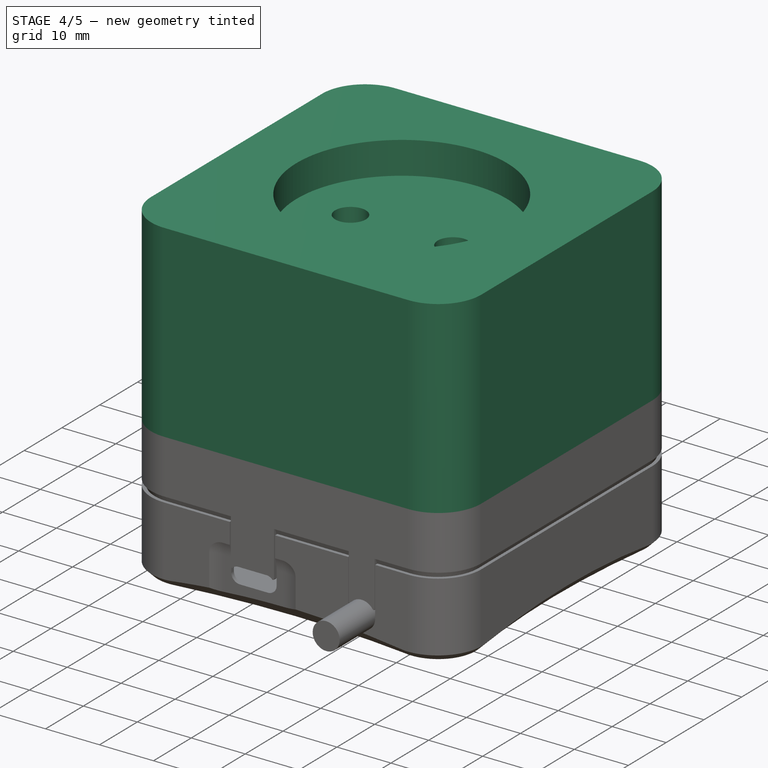
[diagram: stage 4 of 5 — iso view after this stage's code; geometry added in this stage tinted green]
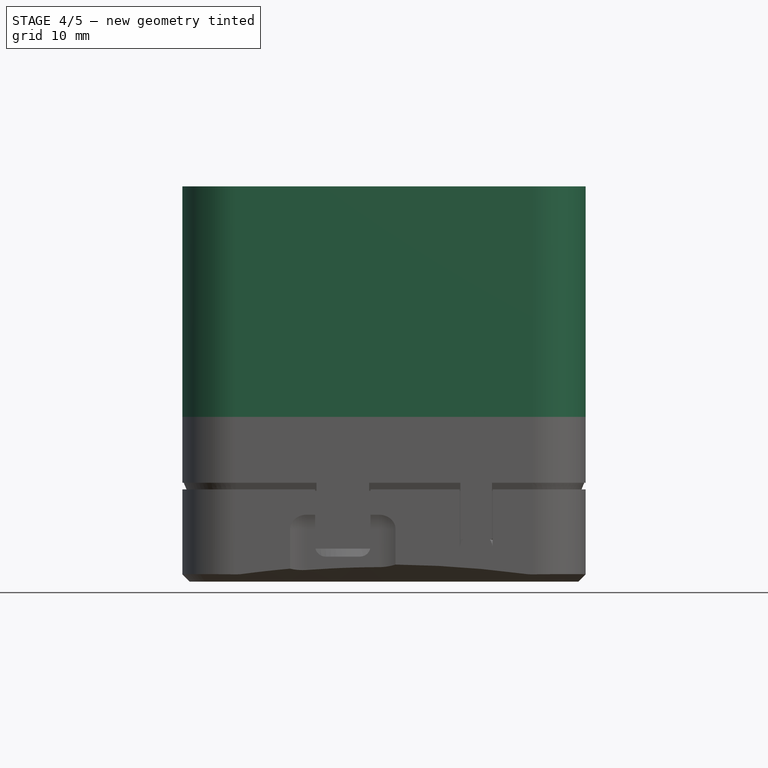
[diagram: stage 4 of 5 — front view after this stage's code; geometry added in this stage tinted green]
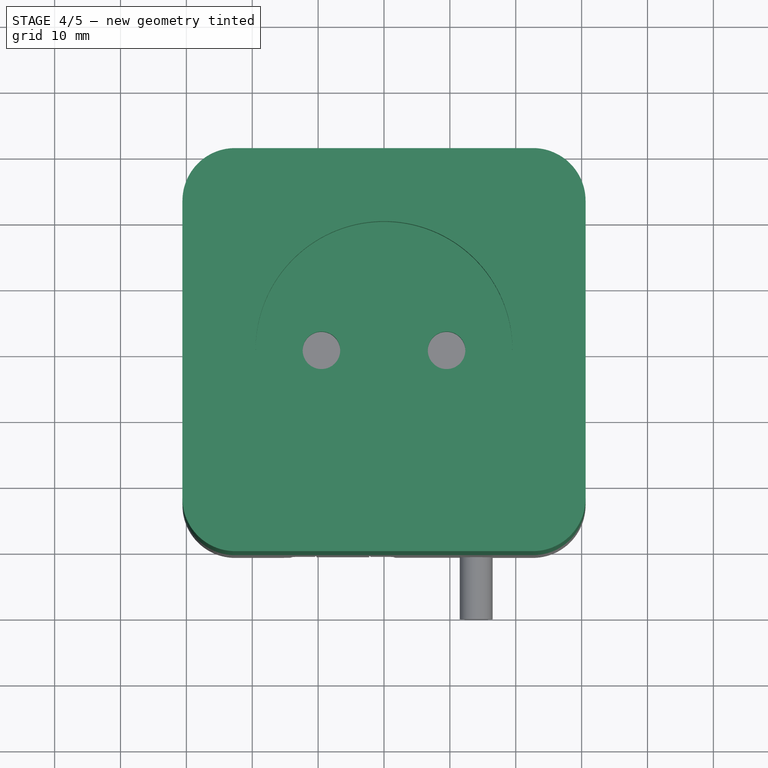
[diagram: stage 4 of 5 — top view after this stage's code; geometry added in this stage tinted green]
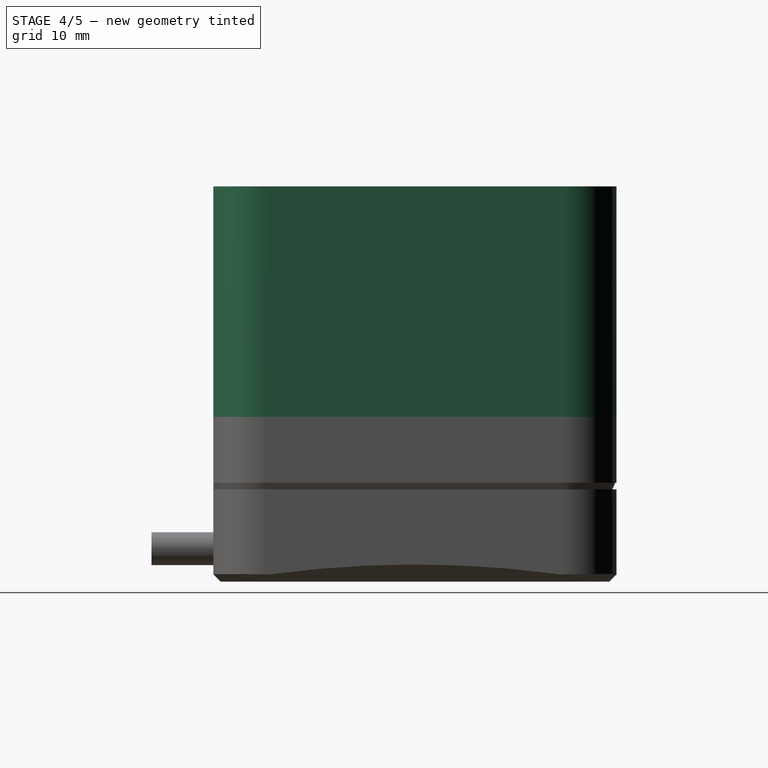
[diagram: stage 4 of 5 — right view after this stage's code; geometry added in this stage tinted green]
FEATURE [Sketcher::SketchObject] Sketch023
  MapMode = 5
  Support = -> [XY_Plane013]
  sketch-geometry (12):
    g0: LineSegment StartX=-22.6 StartY=30.6 StartZ=0 EndX=22.6 EndY=30.6 EndZ=0
    g1: LineSegment StartX=30.6 StartY=22.6 StartZ=0 EndX=30.6 EndY=-22.6 EndZ=0
    g2: LineSegment StartX=22.6 StartY=-30.6 StartZ=0 EndX=-22.6 EndY=-30.6 EndZ=0
    g3: LineSegment StartX=-30.6 StartY=-22.6 StartZ=0 EndX=-30.6 EndY=22.6 EndZ=0
    g4: ArcOfCircle CenterX=-22.6 CenterY=22.6 CenterZ=0 NormalX=0 NormalY=0 NormalZ=1 AngleXU=0 Radius=8 StartAngle=1.5708 EndAngle=3.14159
    g5: ArcOfCircle CenterX=22.6 CenterY=22.6 CenterZ=0 NormalX=0 NormalY=0 NormalZ=1 AngleXU=0 Radius=8 StartAngle=2.39e-14 EndAngle=1.5708
    g6: ArcOfCircle CenterX=22.6 CenterY=-22.6 CenterZ=0 NormalX=0 NormalY=0 NormalZ=1 AngleXU=0 Radius=8 StartAngle=4.71239 EndAngle=6.28319
    g7: ArcOfCircle CenterX=-22.6 CenterY=-22.6 CenterZ=0 NormalX=0 NormalY=0 NormalZ=1 AngleXU=0 Radius=8 StartAngle=3.14159 EndAngle=4.71239
    g8: LineSegment StartX=-22.6 StartY=22.6 StartZ=0 EndX=22.6 EndY=22.6 EndZ=0
    g9: LineSegment StartX=22.6 StartY=22.6 StartZ=0 EndX=22.6 EndY=-22.6 EndZ=0
    g10: LineSegment StartX=22.6 StartY=-22.6 StartZ=0 EndX=-22.6 EndY=-22.6 EndZ=0
    g11: LineSegment StartX=-22.6 StartY=-22.6 StartZ=0 EndX=-22.6 EndY=22.6 EndZ=0
  constraints (26):
    c: Horizontal(g0)
    c: Horizontal(g2)
    c: Vertical(g1)
    c: Vertical(g3)
    c: Tangent(g3,g4) = 1.5708
    c: Tangent(g0,g4) = 1.5708
    c: Tangent(g0,g5) = 1.5708
    c: Tangent(g1,g5) = 1.5708
    c: Tangent(g1,g6) = 1.5708
    c: Tangent(g2,g6) = 1.5708
    c: Tangent(g2,g7) = 1.5708
    c: Tangent(g3,g7) = 1.5708
    c: Coincident(g8,g9)
    c: Coincident(g9,g10)
    c: Coincident(g10,g11)
    c: Coincident(g11,g8)
    c: Horizontal(g10)
    c: Coincident(g8,g4)
    c: Coincident(g9,g6)
    c: Coincident(g5,g8)
    c: Coincident(g7,g10)
    c: Symmetric(g5,g6,g-1)
    c: Symmetric(g5,g4,g-2)
    c: Equal(g9,g8)
    c: DistanceX(g3,g1) = 61.2
    c: Radius(g5) = 8
FEATURE [PartDesign::Pad] Pad009
  Direction = (1,1,1)
  Length = 35
  Length2 = 100
  Profile = -> Sketch023
  Type = 0
FEATURE [Sketcher::SketchObject] Sketch024
  ExternalGeometry = -> [Sketch023]
  MapMode = 5
  Support = -> [XY_Plane013]
  sketch-geometry (12):
    g0: LineSegment StartX=22.6 StartY=22.6 StartZ=0 EndX=-22.6 EndY=22.6 EndZ=0
    g1: LineSegment StartX=-22.6 StartY=22.6 StartZ=0 EndX=-22.6 EndY=-22.6 EndZ=0
    g2: LineSegment StartX=-22.6 StartY=-22.6 StartZ=0 EndX=22.6 EndY=-22.6 EndZ=0
    g3: LineSegment StartX=22.6 StartY=-22.6 StartZ=0 EndX=22.6 EndY=22.6 EndZ=0
    g4: LineSegment StartX=-22.6 StartY=28.3 StartZ=0 EndX=22.6 EndY=28.3 EndZ=0
    g5: LineSegment StartX=28.3 StartY=22.6 StartZ=0 EndX=28.3 EndY=-22.6 EndZ=0
    g6: LineSegment StartX=22.6 StartY=-28.3 StartZ=0 EndX=-22.6 EndY=-28.3 EndZ=0
    g7: LineSegment StartX=-28.3 StartY=-22.6 StartZ=0 EndX=-28.3 EndY=22.6 EndZ=0
    g8: ArcOfCircle CenterX=22.6 CenterY=22.6 CenterZ=0 NormalX=0 NormalY=0 NormalZ=1 AngleXU=0 Radius=5.7 StartAngle=0 EndAngle=1.5708
    g9: ArcOfCircle CenterX=-22.6 CenterY=22.6 CenterZ=0 NormalX=0 NormalY=0 NormalZ=1 AngleXU=0 Radius=5.7 StartAngle=1.5708 EndAngle=3.14159
    g10: ArcOfCircle CenterX=-22.6 CenterY=-22.6 CenterZ=0 NormalX=0 NormalY=0 NormalZ=1 AngleXU=0 Radius=5.7 StartAngle=3.14159 EndAngle=4.71239
    g11: ArcOfCircle CenterX=22.6 CenterY=-22.6 CenterZ=0 NormalX=0 NormalY=0 NormalZ=1 AngleXU=0 Radius=5.7 StartAngle=4.71239 EndAngle=6.28319
  constraints (25):
    c: Coincident(g0,g1)
    c: Coincident(g1,g2)
    c: Coincident(g2,g3)
    c: Coincident(g3,g0)
    c: Horizontal(g2)
    c: Vertical(g1)
    c: Coincident(g0,g-3)
    c: Symmetric(g0,g2,g-1)
    c: Symmetric(g0,g0,g-2)
    c: Horizontal(g4)
    c: Horizontal(g6)
    c: Vertical(g5)
    c: Tangent(g5,g8) = 1.5708
    c: Tangent(g4,g8) = 1.5708
    c: Tangent(g4,g9) = 1.5708
    c: Tangent(g7,g9) = 1.5708
    c: Tangent(g7,g10) = 1.5708
    c: Tangent(g6,g10) = 1.5708
    c: Tangent(g6,g11) = 1.5708
    c: Tangent(g5,g11) = 1.5708
    c: Coincident(g0,g8)
    c: Coincident(g0,g9)
    c: Coincident(g1,g10)
    c: Coincident(g2,g11)
    c: DistanceX(g5,g-3) = 2.3
FEATURE [PartDesign::Pocket] Pocket002
  BaseFeature = -> Pad009
  Length = 25
  Length2 = 100
  Profile = -> Sketch024
  Reversed = true
  Type = 0
FEATURE [Sketcher::SketchObject] Sketch025
  MapMode = 5
  Support = -> [XY_Plane013]
  sketch-geometry (4):
    g0: LineSegment StartX=19.5 StartY=28.6 StartZ=0 EndX=13.1 EndY=28.6 EndZ=0
    g1: LineSegment StartX=13.1 StartY=28.6 StartZ=0 EndX=13.1 EndY=26.1 EndZ=0
    g2: LineSegment StartX=13.1 StartY=26.1 StartZ=0 EndX=19.5 EndY=26.1 EndZ=0
    g3: LineSegment StartX=19.5 StartY=26.1 StartZ=0 EndX=19.5 EndY=28.6 EndZ=0
  constraints (12):
    c: Coincident(g0,g1)
    c: Coincident(g1,g2)
    c: Coincident(g2,g3)
    c: Coincident(g3,g0)
    c: Horizontal(g0)
    c: Horizontal(g2)
    c: Vertical(g1)
    c: Vertical(g3)
    c: DistanceX(g2) = 19.5
    c: DistanceX(g2,g2) = 6.4
    c: DistanceY(g2) = 26.1
    c: DistanceY(g3,g3) = 2.5
FEATURE [PartDesign::Pad] Pad010
  BaseFeature = -> Pocket002
  Direction = (1,1,1)
  Length = 9
  Length2 = 100
  Profile = -> Sketch025
  Type = 0
FEATURE [Sketcher::SketchObject] Sketch026
  MapMode = 5
  Support = -> [XY_Plane013]
  sketch-geometry (2):
    g0: Circle CenterX=28.1 CenterY=15.6 CenterZ=0 NormalX=0 NormalY=0 NormalZ=1 AngleXU=0 Radius=1.55
    g1: LineSegment StartX=28.1 StartY=15.6 StartZ=0 EndX=26.55 EndY=15.6 EndZ=0
  constraints (6):
    c: Radius(g0) = 1.55
    c: Coincident(g1,g0)
    c: PointOnObject(g1,g0)
    c: Horizontal(g1)
    c: DistanceX(g1) = 26.55
    c: DistanceY(g0) = 15.6
FEATURE [PartDesign::Pad] Pad011
  BaseFeature = -> Pad010
  Direction = (1,1,1)
  Length = 9
  Length2 = 100
  Profile = -> Sketch026
  Type = 0
FEATURE [Sketcher::SketchObject] Sketch027
  MapMode = 5
  Support = -> [XY_Plane013]
  sketch-geometry (6):
    g0: LineSegment StartX=21.8 StartY=3.3 StartZ=0 EndX=12.7 EndY=3.3 EndZ=0
    g1: LineSegment StartX=12.7 StartY=3.3 StartZ=0 EndX=12.7 EndY=5.5 EndZ=0
    g2: LineSegment StartX=14.7 StartY=7.5 StartZ=0 EndX=19.8 EndY=7.5 EndZ=0
    g3: LineSegment StartX=21.8 StartY=5.5 StartZ=0 EndX=21.8 EndY=3.3 EndZ=0
    g4: ArcOfCircle CenterX=19.8 CenterY=5.5 CenterZ=0 NormalX=0 NormalY=0 NormalZ=1 AngleXU=0 Radius=2 StartAngle=6.77e-14 EndAngle=1.5708
    g5: ArcOfCircle CenterX=14.7 CenterY=5.5 CenterZ=0 NormalX=0 NormalY=0 NormalZ=1 AngleXU=0 Radius=2 StartAngle=1.5708 EndAngle=3.14159
  constraints (16):
    c: Coincident(g0,g1)
    c: Coincident(g3,g0)
    c: Horizontal(g0)
    c: Horizontal(g2)
    c: Vertical(g1)
    c: Vertical(g3)
    c: Tangent(g3,g4) = 1.5708
    c: Tangent(g2,g4) = 1.5708
    c: Tangent(g2,g5) = 1.5708
    c: Tangent(g1,g5) = 1.5708
    c: DistanceX(g0,g0) = 9.1
    c: DistanceY(g0,g2) = 4.2
    c: DistanceY(g0) = 3.3
    c: DistanceX(g3) = 21.8
    c: Equal(g5,g4)
    c: Radius(g4) = 2
FEATURE [PartDesign::Pad] Pad012
  BaseFeature = -> Pad011
  Direction = (1,1,1)
  Length = 33
  Length2 = 100
  Profile = -> Sketch027
  Type = 0
FEATURE [PartDesign::Mirrored] Mirrored
  MirrorPlane = -> YZ_Plane014
FEATURE [PartDesign::Mirrored] Mirrored001
  MirrorPlane = -> XZ_Plane013
FEATURE [PartDesign::MultiTransform] MultiTransform
  BaseFeature = -> Pad012
  Originals = -> [Pad010,Pad012,Pad011]
  Transformations = -> [Mirrored,Mirrored001]
FEATURE [Sketcher::SketchObject] Sketch028
  MapMode = 5
  Placement = pos=(0,0,0) rot=(1,0,0;1.5708rad)
  Support = -> [XZ_Plane013]
  sketch-geometry (4):
    g0: LineSegment StartX=-12.75 StartY=1 StartZ=0 EndX=12.75 EndY=1 EndZ=0
    g1: LineSegment StartX=12.75 StartY=1 StartZ=0 EndX=17.5 EndY=0 EndZ=0
    g2: LineSegment StartX=17.5 StartY=0 StartZ=0 EndX=-17.5 EndY=0 EndZ=0
    g3: LineSegment StartX=-17.5 StartY=0 StartZ=0 EndX=-12.75 EndY=1 EndZ=0
  constraints (10):
    c: Coincident(g0,g1)
    c: Coincident(g1,g2)
    c: Coincident(g2,g3)
    c: Coincident(g3,g0)
    c: PointOnObject(g1,g-1)
    c: Symmetric(g0,g0,g-2)
    c: Symmetric(g1,g2,g-2)
    c: DistanceX(g2,g2) = 35
    c: DistanceX(g0,g0) = 25.5
    c: DistanceY(g1,g1) = 1
FEATURE [PartDesign::Pocket] Pocket003
  BaseFeature = -> MultiTransform
  Length = 20
  Length2 = 100
  Midplane = true
  Profile = -> Sketch028
  Type = 0
FEATURE [Sketcher::SketchObject] Sketch029
  AttachmentOffset = pos=(0,0,2) rot=(0,0,1;0rad)
  MapMode = 5
  Placement = pos=(0,0,2) rot=(0,0,1;0rad)
  Support = -> [XY_Plane013]
  sketch-geometry (9):
    g0: LineSegment StartX=23.95 StartY=5 StartZ=0 EndX=12.95 EndY=5 EndZ=0
    g1: LineSegment StartX=12.95 StartY=5 StartZ=0 EndX=12.95 EndY=-5 EndZ=0
    g2: LineSegment StartX=12.95 StartY=-5 StartZ=0 EndX=23.95 EndY=-5 EndZ=0
    g3: LineSegment StartX=23.95 StartY=-5 StartZ=0 EndX=23.95 EndY=-2.25 EndZ=0
    g4: ArcOfCircle CenterX=19 CenterY=0 CenterZ=0 NormalX=0 NormalY=0 NormalZ=1 AngleXU=0 Radius=2.25 StartAngle=1.5708 EndAngle=4.71239
    g5: LineSegment StartX=19 StartY=-2.25 StartZ=0 EndX=23.95 EndY=-2.25 EndZ=0
    g6: LineSegment StartX=19 StartY=2.25 StartZ=0 EndX=23.95 EndY=2.25 EndZ=0
    g7: LineSegment StartX=23.95 StartY=2.25 StartZ=0 EndX=23.95 EndY=5 EndZ=0
    g8: GeomPoint X=16.75 Y=0 Z=0
  constraints (23):
    c: Coincident(g0,g1)
    c: Coincident(g1,g2)
    c: Coincident(g2,g3)
    c: Coincident(g7,g0)
    c: Horizontal(g0)
    c: Horizontal(g2)
    c: Vertical(g1)
    c: Symmetric(g2,g0,g-1)
    c: Tangent(g4,g6) = 1.5708
    c: Tangent(g4,g5) = -1.5708
    c: Horizontal(g5)
    c: PointOnObject(g4,g-1)
    c: Coincident(g7,g6)
    c: Tangent(g3,g7)
    c: Coincident(g5,g3)
    c: Radius(g4) = 2.25
    c: Horizontal(g6)
    c: PointOnObject(g8,g4)
    c: PointOnObject(g8,g-1)
    c: DistanceX(g4) = 19
    c: DistanceX(g0) = 23.95
    c: DistanceY(g2,g0) = 10
    c: DistanceX(g0,g0) = 11
FEATURE [PartDesign::Pad] Pad013
  BaseFeature = -> Pocket003
  Direction = (1,1,1)
  Length = 7
  Length2 = 100
  Profile = -> Sketch029
  Type = 0
FEATURE [Sketcher::SketchObject] Sketch030
  AttachmentOffset = pos=(0,0,9) rot=(0,0,1;0rad)
  MapMode = 5
  Placement = pos=(0,0,9) rot=(0,0,1;0rad)
  Support = -> [XY_Plane013]
  sketch-geometry (4):
    g0: ArcOfCircle CenterX=19 CenterY=0 CenterZ=0 NormalX=0 NormalY=0 NormalZ=1 AngleXU=0 Radius=5 StartAngle=1.5708 EndAngle=4.71239
    g1: LineSegment StartX=19 StartY=-5 StartZ=0 EndX=25 EndY=-5 EndZ=0
    g2: LineSegment StartX=19 StartY=5 StartZ=0 EndX=25 EndY=5 EndZ=0
    g3: LineSegment StartX=25 StartY=5 StartZ=0 EndX=25 EndY=-5 EndZ=0
  constraints (11):
    c: Tangent(g0,g2) = 1.5708
    c: Tangent(g0,g1) = -1.5708
    c: Coincident(g1,g3) = -1.5708
    c: Coincident(g2,g3) = 1.5708
    c: Horizontal(g1)
    c: PointOnObject(g0,g-1)
    c: Vertical(g3)
    c: DistanceX(g0) = 19
    c: Radius(g0) = 5
    c: Horizontal(g2)
    c: DistanceX(g2) = 25
FEATURE [PartDesign::Pocket] Pocket004
  BaseFeature = -> Pad013
  Length = 10
  Length2 = 100
  Profile = -> Sketch030
  Reversed = true
  Type = 0
FEATURE [PartDesign::Mirrored] Mirrored002
  BaseFeature = -> Pocket004
  MirrorPlane = -> YZ_Plane014
  Originals = -> [Pad013,Pocket004]
FEATURE [Sketcher::SketchObject] Sketch031
  MapMode = 5
  Placement = pos=(0,0,0) rot=(1,0,0;1.5708rad)
  Support = -> [XZ_Plane013]
  sketch-geometry (4):
    g0: LineSegment StartX=0 StartY=35 StartZ=0 EndX=0 EndY=29 EndZ=0
    g1: LineSegment StartX=0 StartY=29 StartZ=0 EndX=19.5 EndY=29 EndZ=0
    g2: LineSegment StartX=19.5 StartY=29 StartZ=0 EndX=19.5 EndY=35 EndZ=0
    g3: LineSegment StartX=0 StartY=35 StartZ=0 EndX=19.5 EndY=35 EndZ=0
  constraints (12):
    c: Coincident(g0,g1)
    c: Coincident(g1,g2)
    c: Horizontal(g1)
    c: Vertical(g0)
    c: Vertical(g2)
    c: PointOnObject(g0,g-2)
    c: DistanceX(g2) = 19.5
    c: DistanceY(g2) = 35
    c: DistanceY(g2,g2) = 6
    c: Coincident(g3,g0)
    c: Coincident(g3,g2)
    c: Horizontal(g3)
FEATURE [PartDesign::Groove] Groove
  Angle = 360
  Axis = (-3e-16,3e-16,1)
  Base = (0,0,0)
  BaseFeature = -> Mirrored002
  Profile = -> Sketch031
  ReferenceAxis = -> Z_Axis013
FEATURE [Sketcher::SketchObject] Sketch032
  MapMode = 5
  Support = -> [XY_Plane013]
  sketch-geometry (2):
    g0: Circle CenterX=9.5 CenterY=0 CenterZ=0 NormalX=0 NormalY=0 NormalZ=1 AngleXU=0 Radius=2.85
    g1: Circle CenterX=-9.5 CenterY=0 CenterZ=0 NormalX=0 NormalY=0 NormalZ=1 AngleXU=0 Radius=2.85
  constraints (5):
    c: PointOnObject(g0,g-1)
    c: Symmetric(g0,g1,g-2)
    c: DistanceX(g1,g0) = 19
    c: Equal(g1,g0)
    c: Radius(g0) = 2.85
FEATURE [PartDesign::Pocket] Pocket005
  BaseFeature = -> Groove
  Length = 5
  Length2 = 100
  Midplane = true
  Profile = -> Sketch032
  Type = 1
FEATURE [PartDesign::Body] Body013  label="Wallsocket"
  Group = -> [Sketch023,Pad009,Sketch024,Pocket002,Sketch025,Pad010,Sketch026,Pad011,Sketch027,Pad012,MultiTransform,Mirrored,Mirrored001,Sketch028,Pocket003,Sketch029,Pad013,Sketch030,Pocket004,Mirrored002,Sketch031,Groove,Sketch032,Pocket005,Fillet001]
  Origin = -> Origin013
  Tip = -> Fillet001
FEATURE [Part::FeaturePython] Screw  label="M4x20-Screw"  # Fasteners workbench fastener (typed FeaturePython)
  Placement = pos=(19,0,9) rot=(0,0,1;0rad)
  diameter = 2
  invert = false
  length = 6
  lengthCustom = 20
  matchOuter = false
  offset = 0
  thread = false
  type = 38
FEATURE [Part::FeaturePython] Nut  label="M4-Nut"  # Fasteners workbench fastener (typed FeaturePython)
  Placement = pos=(19,0,-9) rot=(0,0,1;0rad)
  diameter = 6
  invert = false
  matchOuter = false
  offset = 0
  thread = false
  type = 7
FEATURE [Part::FeaturePython] Screw001  label="M4x20-Screw001"  # Fasteners workbench fastener (typed FeaturePython)
  Placement = pos=(-19,0,9) rot=(0,0,1;0rad)
  diameter = 2
  invert = false
  length = 6
  lengthCustom = 20
  matchOuter = false
  offset = 0
  thread = false
  type = 38
FEATURE [Part::FeaturePython] Nut001  label="M4-Nut001"  # Fasteners workbench fastener (typed FeaturePython)
  Placement = pos=(-19,0,-9) rot=(0,0,1;0rad)
  diameter = 6
  invert = false
  matchOuter = false
  offset = 0
  thread = false
  type = 7
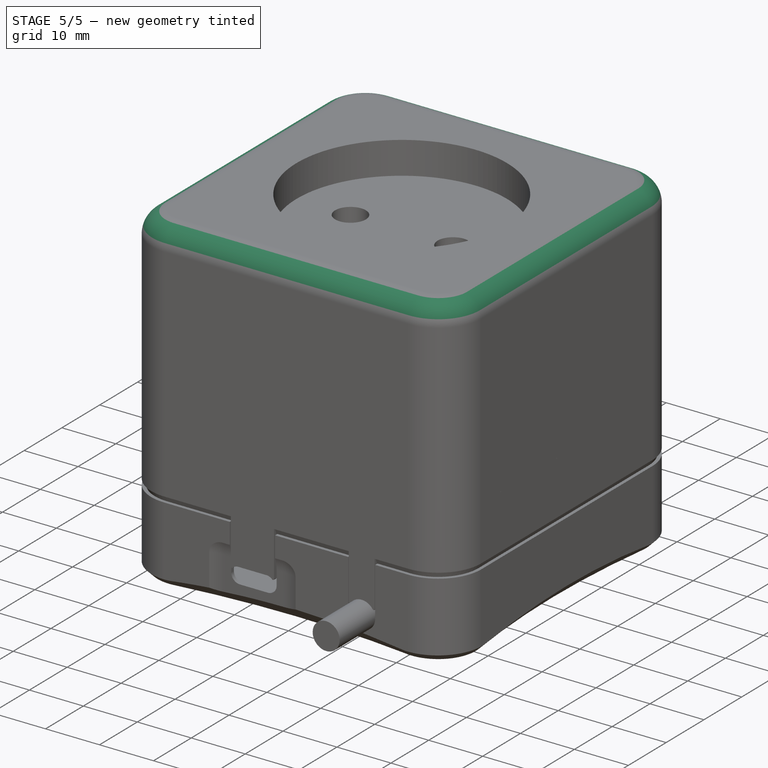
[diagram: stage 5 of 5 — iso view after this stage's code; geometry added in this stage tinted green]
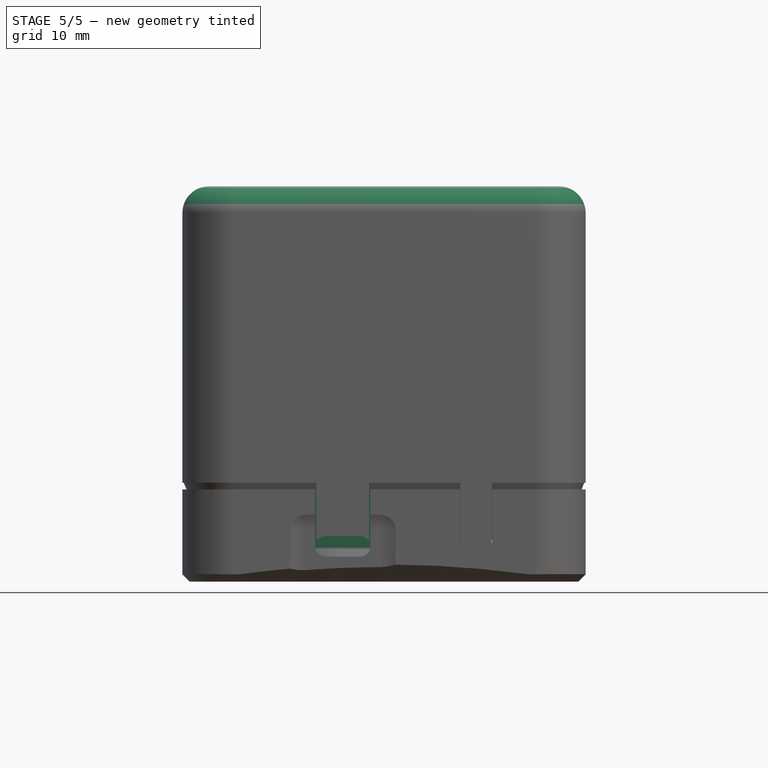
[diagram: stage 5 of 5 — front view after this stage's code; geometry added in this stage tinted green]
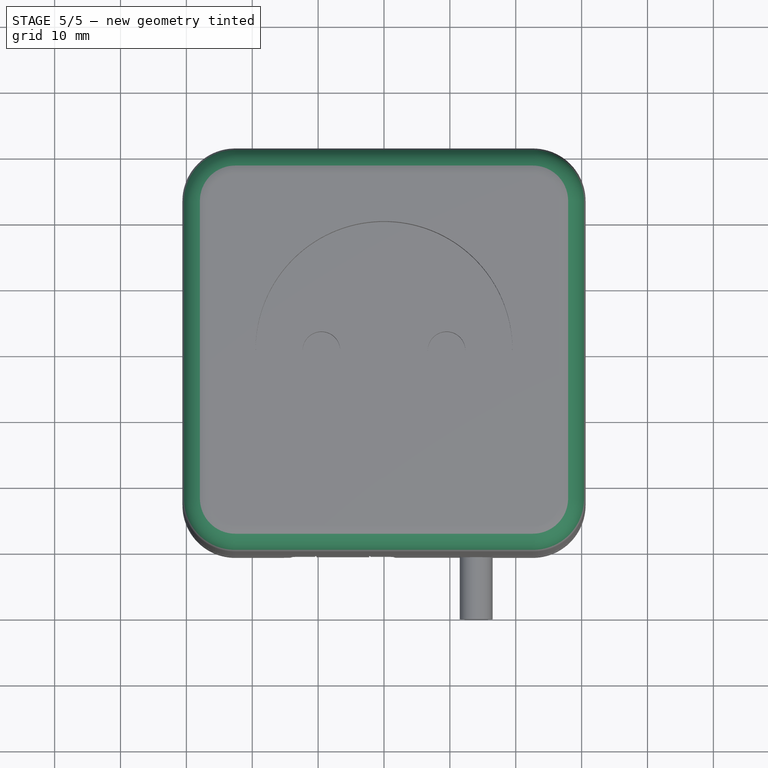
[diagram: stage 5 of 5 — top view after this stage's code; geometry added in this stage tinted green]
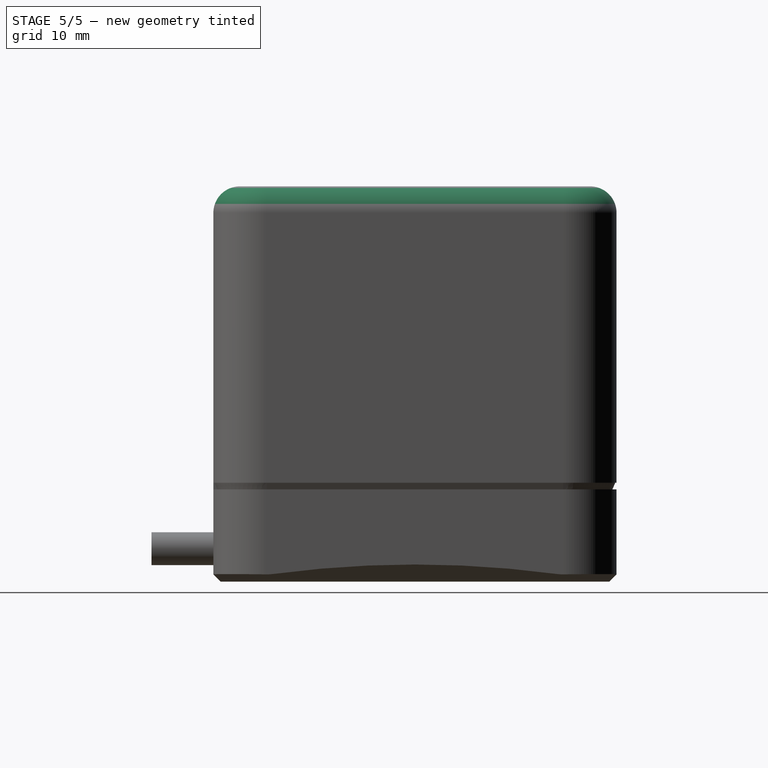
[diagram: stage 5 of 5 — right view after this stage's code; geometry added in this stage tinted green]
FEATURE [Part::Feature] Part__Feature  label="MH-ET_LIVE_MiniKit"
  Placement = pos=(-6,-10,-22) rot=(1,0,0;1.5708rad)
  shape: bbox 31.02 x 39.44 x 99.68 mm, 5494 faces, 23 solids (baked)
FEATURE [Sketcher::SketchObject] Sketch009
  MapMode = 5
  Support = -> [XY_Plane001]
  sketch-geometry (8):
    g0: LineSegment StartX=0 StartY=8.8 StartZ=0 EndX=43.2 EndY=8.8 EndZ=0
    g1: LineSegment StartX=43.2 StartY=8.8 StartZ=0 EndX=43.2 EndY=-8.8 EndZ=0
    g2: LineSegment StartX=43.2 StartY=-8.8 StartZ=0 EndX=0 EndY=-8.8 EndZ=0
    g3: LineSegment StartX=0 StartY=-8.8 StartZ=0 EndX=0 EndY=8.8 EndZ=0
    g4: Circle CenterX=3.2 CenterY=2.54 CenterZ=0 NormalX=0 NormalY=0 NormalZ=1 AngleXU=0 Radius=0.4
    g5: Circle CenterX=3.2 CenterY=0 CenterZ=0 NormalX=0 NormalY=0 NormalZ=1 AngleXU=0 Radius=0.4
    g6: Circle CenterX=3.2 CenterY=-2.54 CenterZ=0 NormalX=0 NormalY=0 NormalZ=1 AngleXU=0 Radius=0.4
    g7: LineSegment StartX=3.2 StartY=2.54 StartZ=0 EndX=3.2 EndY=-2.54 EndZ=0
  constraints (21):
    c: Coincident(g0,g1)
    c: Coincident(g1,g2)
    c: Coincident(g2,g3)
    c: Coincident(g3,g0)
    c: Horizontal(g0)
    c: Horizontal(g2)
    c: Vertical(g3)
    c: PointOnObject(g0,g-2)
    c: Symmetric(g1,g0,g-1)
    c: DistanceY(g1,g1) = 17.6
    c: DistanceX(g0,g0) = 43.2
    c: PointOnObject(g5,g-1)
    c: Symmetric(g6,g4,g-1)
    c: Coincident(g7,g4)
    c: Coincident(g7,g6)
    c: PointOnObject(g5,g7)
    c: Equal(g6,g5)
    c: Equal(g5,g4)
    c: Radius(g4) = 0.4
    c: DistanceY(g7,g7) = 5.08
    c: DistanceX(g4) = 3.2
FEATURE [PartDesign::Pad] Pad006
  Direction = (1,1,1)
  Length = 1.6
  Length2 = 100
  Profile = -> Sketch009
  Type = 0
FEATURE [PartDesign::Body] Body001  label="PCB"
  Group = -> [Sketch009,Pad006]
  Origin = -> Origin001
  Tip = -> Pad006
FEATURE [Sketcher::SketchObject] Sketch010
  AttachmentOffset = pos=(0,0,1.6) rot=(0,0,1;0rad)
  MapMode = 5
  Placement = pos=(0,0,1.6) rot=(0,0,1;0rad)
  Support = -> [XY_Plane002]
  sketch-geometry (4):
    g0: LineSegment StartX=14.8 StartY=7.6 StartZ=0 EndX=33.8 EndY=7.6 EndZ=0
    g1: LineSegment StartX=33.8 StartY=7.6 StartZ=0 EndX=33.8 EndY=-7.6 EndZ=0
    g2: LineSegment StartX=33.8 StartY=-7.6 StartZ=0 EndX=14.8 EndY=-7.6 EndZ=0
    g3: LineSegment StartX=14.8 StartY=-7.6 StartZ=0 EndX=14.8 EndY=7.6 EndZ=0
  constraints (11):
    c: Coincident(g0,g1)
    c: Coincident(g1,g2)
    c: Coincident(g2,g3)
    c: Coincident(g3,g0)
    c: Horizontal(g0)
    c: Horizontal(g2)
    c: Vertical(g3)
    c: Symmetric(g1,g0,g-1)
    c: DistanceX(g0,g0) = 19
    c: DistanceY(g1,g1) = 15.2
    c: DistanceX(g0) = 14.8
FEATURE [PartDesign::Pad] Pad007
  Direction = (1,1,1)
  Length = 15.7
  Length2 = 100
  Profile = -> Sketch010
  Type = 0
FEATURE [PartDesign::Body] Body002  label="JQC-3FF-S-Z"
  Group = -> [Sketch010,Pad007]
  Origin = -> Origin002
  Tip = -> Pad007
FEATURE [Sketcher::SketchObject] Sketch011
  MapMode = 5
  Placement = pos=(0,0,0) rot=(1,0,0;1.5708rad)
  Support = -> [XZ_Plane003]
  sketch-geometry (7):
    g0: LineSegment StartX=34.6 StartY=11.6 StartZ=0 EndX=39.6 EndY=11.6 EndZ=0
    g1: LineSegment StartX=40.4 StartY=8.6 StartZ=0 EndX=40.4 EndY=1.6 EndZ=0
    g2: LineSegment StartX=40.4 StartY=1.6 StartZ=0 EndX=33.8 EndY=1.6 EndZ=0
    g3: LineSegment StartX=33.8 StartY=1.6 StartZ=0 EndX=33.8 EndY=8.6 EndZ=0
    g4: LineSegment StartX=34.6 StartY=11.6 StartZ=0 EndX=33.8 EndY=8.6 EndZ=0
    g5: LineSegment StartX=39.6 StartY=11.6 StartZ=0 EndX=40.4 EndY=8.6 EndZ=0
    g6: LineSegment StartX=37.1 StartY=11.6 StartZ=0 EndX=37.1 EndY=1.6 EndZ=0
  constraints (19):
    c: Coincident(g1,g2)
    c: Coincident(g2,g3)
    c: Horizontal(g0)
    c: Vertical(g1)
    c: DistanceY(g1) = 1.6
    c: Coincident(g3,g4)
    c: Coincident(g4,g0)
    c: Coincident(g0,g5)
    c: Coincident(g1,g5)
    c: PointOnObject(g6,g0)
    c: PointOnObject(g6,g2)
    c: Symmetric(g1,g2,g6)
    c: Symmetric(g1,g3,g6)
    c: Symmetric(g0,g0,g6)
    c: DistanceX(g2) = 33.8
    c: DistanceX(g0,g0) = 5
    c: DistanceY(g1,g0) = 10
    c: DistanceY(g1,g1) = 7
    c: DistanceX(g1) = 40.4
FEATURE [PartDesign::Pad] Pad008
  Direction = (1,1,1)
  Length = 15
  Length2 = 100
  Midplane = true
  Placement = pos=(0,0,0) rot=(1,0,0;1.5708rad)
  Profile = -> Sketch011
  Type = 0
FEATURE [Sketcher::SketchObject] Sketch012
  AttachmentOffset = pos=(0,0,36) rot=(0,0,1;0rad)
  MapMode = 5
  Placement = pos=(36,-8e-15,8e-15) rot=(0.57735,0.57735,0.57735;2.0944rad)
  Support = -> [YZ_Plane003]
  sketch-geometry (16):
    g0: LineSegment StartX=-7.05 StartY=8.6 StartZ=0 EndX=-2.65 EndY=8.6 EndZ=0
    g1: LineSegment StartX=-2.65 StartY=8.6 StartZ=0 EndX=-2.65 EndY=2.1 EndZ=0
    g2: LineSegment StartX=-2.65 StartY=2.1 StartZ=0 EndX=-7.05 EndY=2.1 EndZ=0
    g3: LineSegment StartX=-7.05 StartY=2.1 StartZ=0 EndX=-7.05 EndY=8.6 EndZ=0
    g4: LineSegment StartX=-7.05 StartY=8.6 StartZ=0 EndX=-7.5 EndY=8.6 EndZ=0
    g5: LineSegment StartX=-2.2 StartY=8.6 StartZ=0 EndX=-2.65 EndY=8.6 EndZ=0
    g6: LineSegment StartX=-2.2 StartY=8.6 StartZ=0 EndX=2.2 EndY=8.6 EndZ=0
    g7: LineSegment StartX=2.2 StartY=8.6 StartZ=0 EndX=2.2 EndY=2.1 EndZ=0
    g8: LineSegment StartX=2.2 StartY=2.1 StartZ=0 EndX=-2.2 EndY=2.1 EndZ=0
    g9: LineSegment StartX=-2.2 StartY=2.1 StartZ=0 EndX=-2.2 EndY=8.6 EndZ=0
    g10: LineSegment StartX=2.65 StartY=8.6 StartZ=0 EndX=7.05 EndY=8.6 EndZ=0
    g11: LineSegment StartX=7.05 StartY=8.6 StartZ=0 EndX=7.05 EndY=2.1 EndZ=0
    g12: LineSegment StartX=7.05 StartY=2.1 StartZ=0 EndX=2.65 EndY=2.1 EndZ=0
    g13: LineSegment StartX=2.65 StartY=2.1 StartZ=0 EndX=2.65 EndY=8.6 EndZ=0
    g14: LineSegment StartX=2.65 StartY=8.6 StartZ=0 EndX=2.2 EndY=8.6 EndZ=0
    g15: LineSegment StartX=7.05 StartY=8.6 StartZ=0 EndX=7.5 EndY=8.6 EndZ=0
  constraints (45):
    c: Coincident(g0,g1)
    c: Coincident(g1,g2)
    c: Coincident(g2,g3)
    c: Coincident(g3,g0)
    c: Horizontal(g0)
    c: Horizontal(g2)
    c: Vertical(g1)
    c: Vertical(g3)
    c: DistanceX(g0,g0) = 4.4
    c: DistanceY(g0) = 8.6
    c: DistanceY(g3,g3) = 6.5
    c: Coincident(g4,g0)
    c: Horizontal(g4)
    c: Coincident(g5,g0)
    c: Equal(g5,g4)
    c: Horizontal(g5)
    c: Coincident(g6,g7)
    c: Coincident(g7,g8)
    c: Coincident(g8,g9)
    c: Coincident(g9,g6)
    c: Horizontal(g6)
    c: Horizontal(g8)
    c: Vertical(g7)
    c: Vertical(g9)
    c: Coincident(g6,g5)
    c: Coincident(g10,g11)
    c: Coincident(g11,g12)
    c: Coincident(g12,g13)
    c: Coincident(g13,g10)
    c: Horizontal(g10)
    c: Horizontal(g12)
    c: Vertical(g11)
    c: Vertical(g13)
    c: Coincident(g14,g10)
    c: Coincident(g14,g6)
    c: Horizontal(g14)
    c: Coincident(g15,g10)
    c: Equal(g15,g14)
    c: Equal(g14,g5)
    c: DistanceX(g4,g15) = 15
    c: Equal(g0,g6)
    c: Equal(g6,g10)
    c: Symmetric(g4,g15,g-2)
    c: Equal(g1,g9)
    c: Equal(g9,g13)
FEATURE [PartDesign::Pocket] Pocket
  BaseFeature = -> Pad008
  Length = 5
  Length2 = 100
  Placement = pos=(0,0,0) rot=(1,0,0;1.5708rad)
  Profile = -> Sketch012
  Reversed = true
  Type = 1
FEATURE [Sketcher::SketchObject] Sketch013
  AttachmentOffset = pos=(0,0,8.6) rot=(0,0,1;0rad)
  ExternalGeometry = -> [Pocket]
  MapMode = 5
  Placement = pos=(0,0,8.6) rot=(0,0,1;0rad)
  Support = -> [XY_Plane003]
  sketch-geometry (5):
    g0: Circle CenterX=37.1 CenterY=-4.85 CenterZ=0 NormalX=0 NormalY=0 NormalZ=1 AngleXU=0 Radius=1.75
    g1: LineSegment StartX=37.1 StartY=-2.65 StartZ=0 EndX=37.1 EndY=-7.05 EndZ=0
    g2: LineSegment StartX=38.85 StartY=-4.85 StartZ=0 EndX=35.35 EndY=-4.85 EndZ=0
    g3: Circle CenterX=37.1 CenterY=4.85 CenterZ=0 NormalX=0 NormalY=0 NormalZ=1 AngleXU=0 Radius=1.75
    g4: Circle CenterX=37.1 CenterY=0 CenterZ=0 NormalX=0 NormalY=0 NormalZ=1 AngleXU=0 Radius=1.75
  constraints (14):
    c: PointOnObject(g1,g-3)
    c: PointOnObject(g1,g-4)
    c: PointOnObject(g2,g0)
    c: PointOnObject(g2,g0)
    c: PointOnObject(g0,g1)
    c: PointOnObject(g0,g2)
    c: Symmetric(g-3,g-4,g2)
    c: Radius(g0) = 1.75
    c: Symmetric(g-5,g-6,g1)
    c: PointOnObject(g4,g-1)
    c: Symmetric(g3,g0,g-1)
    c: PointOnObject(g4,g1)
    c: Equal(g0,g4)
    c: Equal(g4,g3)
FEATURE [PartDesign::Pocket] Pocket001
  BaseFeature = -> Pocket
  Length = 5
  Length2 = 100
  Placement = pos=(0,0,0) rot=(1,0,0;1.5708rad)
  Profile = -> Sketch013
  Reversed = true
  Type = 1
FEATURE [PartDesign::Body] Body003  label="Connectors"
  Group = -> [Sketch011,Pad008,Sketch012,Pocket,Sketch013,Pocket001]
  Origin = -> Origin003
  Tip = -> Pocket001
FEATURE [Sketcher::SketchObject] Sketch014
  AttachmentOffset = pos=(0,0,2.9) rot=(0,0,1;0rad)
  MapMode = 5
  Placement = pos=(2.9,-6e-16,6e-16) rot=(0.57735,0.57735,0.57735;2.0944rad)
  Support = -> [YZ_Plane004]
  sketch-geometry (6):
    g0: ArcOfCircle CenterX=0 CenterY=6.05 CenterZ=0 NormalX=0 NormalY=0 NormalZ=1 AngleXU=0 Radius=1.45 StartAngle=1.5708 EndAngle=3.14159
    g1: LineSegment StartX=-1.45 StartY=6.05 StartZ=0 EndX=-1.45 EndY=3 EndZ=0
    g2: LineSegment StartX=-1.45 StartY=3 StartZ=0 EndX=-1.75 EndY=3 EndZ=0
    g3: LineSegment StartX=-1.75 StartY=3 StartZ=0 EndX=-1.75 EndY=1.6 EndZ=0
    g4: LineSegment StartX=-1.75 StartY=1.6 StartZ=0 EndX=0 EndY=1.6 EndZ=0
    g5: LineSegment StartX=0 StartY=1.6 StartZ=0 EndX=0 EndY=7.5 EndZ=0
  constraints (18):
    c: Vertical(g1)
    c: Coincident(g1,g2)
    c: Coincident(g2,g3)
    c: Coincident(g3,g4)
    c: Horizontal(g4)
    c: Coincident(g4,g5)
    c: Coincident(g5,g0)
    c: Vertical(g5)
    c: Tangent(g0,g1) = -1.5708
    c: PointOnObject(g0,g5)
    c: Horizontal(g2)
    c: Vertical(g3)
    c: DistanceY(g3) = 1.6
    c: DistanceY(g0) = 7.5
    c: DistanceX(g0,g0) = 1.45
    c: DistanceX(g4,g4) = 1.75
    c: DistanceY(g2) = 3
    c: PointOnObject(g4,g-2)
FEATURE [PartDesign::Revolution] Revolution001
  Angle = 360
  Axis = (-2e-16,3e-16,1)
  Base = (2.9,-6e-16,6e-16)
  Placement = pos=(0,0,0) rot=(0.57735,0.57735,0.57735;2.0944rad)
  Profile = -> Sketch014
  ReferenceAxis = -> Sketch014 [V_Axis]
FEATURE [PartDesign::Body] Body004  label="LEDgreen"
  Group = -> [Sketch014,Revolution001]
  Origin = -> Origin004
  Placement = pos=(0,5.8,0) rot=(0,0,1;0rad)
  Tip = -> Revolution001
FEATURE [Sketcher::SketchObject] Sketch015
  AttachmentOffset = pos=(0,0,2.9) rot=(0,0,1;0rad)
  MapMode = 5
  Placement = pos=(2.9,-6e-16,6e-16) rot=(0.57735,0.57735,0.57735;2.0944rad)
  Support = -> [YZ_Plane004]
  sketch-geometry (6):
    g0: ArcOfCircle CenterX=0 CenterY=6.05 CenterZ=0 NormalX=0 NormalY=0 NormalZ=1 AngleXU=0 Radius=1.45 StartAngle=1.5708 EndAngle=3.14159
    g1: LineSegment StartX=-1.45 StartY=6.05 StartZ=0 EndX=-1.45 EndY=3 EndZ=0
    g2: LineSegment StartX=-1.45 StartY=3 StartZ=0 EndX=-1.75 EndY=3 EndZ=0
    g3: LineSegment StartX=-1.75 StartY=3 StartZ=0 EndX=-1.75 EndY=1.6 EndZ=0
    g4: LineSegment StartX=-1.75 StartY=1.6 StartZ=0 EndX=0 EndY=1.6 EndZ=0
    g5: LineSegment StartX=1e-16 StartY=1.6 StartZ=0 EndX=1e-16 EndY=7.5 EndZ=0
  constraints (18):
    c: Vertical(g1)
    c: Coincident(g1,g2)
    c: Coincident(g2,g3)
    c: Coincident(g3,g4)
    c: Horizontal(g4)
    c: Coincident(g4,g5)
    c: Coincident(g5,g0)
    c: Vertical(g5)
    c: Tangent(g0,g1) = -1.5708
    c: PointOnObject(g0,g5)
    c: Horizontal(g2)
    c: Vertical(g3)
    c: DistanceY(g3) = 1.6
    c: DistanceY(g0) = 7.5
    c: DistanceX(g0,g0) = 1.45
    c: DistanceX(g4,g4) = 1.75
    c: DistanceY(g2) = 3
    c: PointOnObject(g4,g-2)
FEATURE [PartDesign::Revolution] Revolution002
  Angle = 360
  Axis = (-2e-16,3e-16,1)
  Base = (2.9,-6e-16,6e-16)
  Placement = pos=(0,0,0) rot=(0.57735,0.57735,0.57735;2.0944rad)
  Profile = -> Sketch015
  ReferenceAxis = -> Sketch015 [V_Axis]
FEATURE [PartDesign::Body] Body005  label="LEDred"
  Group = -> [Sketch015,Revolution002]
  Origin = -> Origin005
  Placement = pos=(0,-5.8,0) rot=(0,0,1;0rad)
  Tip = -> Revolution002
FEATURE [Sketcher::SketchObject] Sketch016
  MapMode = 5
  Placement = pos=(0,0,0) rot=(0.57735,0.57735,0.57735;2.0944rad)
  Support = -> [YZ_Plane006]
  sketch-geometry (5):
    g0: LineSegment StartX=1.2 StartY=0 StartZ=0 EndX=0 EndY=0 EndZ=0
    g1: LineSegment StartX=0 StartY=0 StartZ=0 EndX=0 EndY=-1.5 EndZ=0
    g2: LineSegment StartX=0 StartY=-1.5 StartZ=0 EndX=0.6 EndY=-1.5 EndZ=0
    g3: LineSegment StartX=0.6 StartY=-1.5 StartZ=0 EndX=0.6 EndY=-0.6 EndZ=0
    g4: ArcOfCircle CenterX=1.2 CenterY=-0.6 CenterZ=0 NormalX=0 NormalY=0 NormalZ=1 AngleXU=0 Radius=0.6 StartAngle=1.5708 EndAngle=3.14159
  constraints (13):
    c: PointOnObject(g0,g-1)
    c: Coincident(g0,g-1)
    c: Coincident(g0,g1)
    c: PointOnObject(g1,g-2)
    c: Coincident(g1,g2)
    c: Horizontal(g2)
    c: Coincident(g2,g3)
    c: Vertical(g3)
    c: Tangent(g0,g4) = -1.5708
    c: Tangent(g3,g4) = 1.5708
    c: DistanceX(g2,g2) = 0.6
    c: DistanceY(g1,g1) = 1.5
    c: Radius(g4) = 0.6
FEATURE [PartDesign::Revolution] Revolution003
  Angle = 360
  Axis = (-2e-16,3e-16,1)
  Base = (0,0,0)
  Placement = pos=(0,0,0) rot=(0.57735,0.57735,0.57735;2.0944rad)
  Profile = -> Sketch016
  ReferenceAxis = -> Sketch016 [V_Axis]
  Reversed = true
FEATURE [PartDesign::Body] Body006  label="Pin001"
  Group = -> [Sketch016,Revolution003]
  Origin = -> Origin006
  Placement = pos=(1.7,5.7,0) rot=(0,0,1;0rad)
  Tip = -> Revolution003
FEATURE [Sketcher::SketchObject] Sketch017
  MapMode = 5
  Placement = pos=(0,0,0) rot=(0.57735,0.57735,0.57735;2.0944rad)
  Support = -> [YZ_Plane006]
  sketch-geometry (5):
    g0: LineSegment StartX=1.2 StartY=0 StartZ=0 EndX=0 EndY=0 EndZ=0
    g1: LineSegment StartX=0 StartY=0 StartZ=0 EndX=0 EndY=-1.5 EndZ=0
    g2: LineSegment StartX=0 StartY=-1.5 StartZ=0 EndX=0.6 EndY=-1.5 EndZ=0
    g3: LineSegment StartX=0.6 StartY=-1.5 StartZ=0 EndX=0.6 EndY=-0.6 EndZ=0
    g4: ArcOfCircle CenterX=1.2 CenterY=-0.6 CenterZ=0 NormalX=0 NormalY=0 NormalZ=1 AngleXU=0 Radius=0.6 StartAngle=1.5708 EndAngle=3.14159
  constraints (13):
    c: PointOnObject(g0,g-1)
    c: Coincident(g0,g-1)
    c: Coincident(g0,g1)
    c: PointOnObject(g1,g-2)
    c: Coincident(g1,g2)
    c: Horizontal(g2)
    c: Coincident(g2,g3)
    c: Vertical(g3)
    c: Tangent(g0,g4) = -1.5708
    c: Tangent(g3,g4) = 1.5708
    c: DistanceX(g2,g2) = 0.6
    c: DistanceY(g1,g1) = 1.5
    c: Radius(g4) = 0.6
FEATURE [PartDesign::Revolution] Revolution004
  Angle = 360
  Axis = (-2e-16,3e-16,1)
  Base = (0,0,0)
  Placement = pos=(0,0,0) rot=(0.57735,0.57735,0.57735;2.0944rad)
  Profile = -> Sketch017
  ReferenceAxis = -> Sketch017 [V_Axis]
  Reversed = true
FEATURE [PartDesign::Body] Body007  label="Pin002"
  Group = -> [Sketch017,Revolution004]
  Origin = -> Origin007
  Placement = pos=(4.1,5.7,0) rot=(0,0,1;0rad)
  Tip = -> Revolution004
FEATURE [Sketcher::SketchObject] Sketch018
  MapMode = 5
  Placement = pos=(0,0,0) rot=(0.57735,0.57735,0.57735;2.0944rad)
  Support = -> [YZ_Plane006]
  sketch-geometry (5):
    g0: LineSegment StartX=1.2 StartY=0 StartZ=0 EndX=0 EndY=0 EndZ=0
    g1: LineSegment StartX=0 StartY=0 StartZ=0 EndX=0 EndY=-1.5 EndZ=0
    g2: LineSegment StartX=0 StartY=-1.5 StartZ=0 EndX=0.6 EndY=-1.5 EndZ=0
    g3: LineSegment StartX=0.6 StartY=-1.5 StartZ=0 EndX=0.6 EndY=-0.6 EndZ=0
    g4: ArcOfCircle CenterX=1.2 CenterY=-0.6 CenterZ=0 NormalX=0 NormalY=0 NormalZ=1 AngleXU=0 Radius=0.6 StartAngle=1.5708 EndAngle=3.14159
  constraints (13):
    c: PointOnObject(g0,g-1)
    c: Coincident(g0,g-1)
    c: Coincident(g0,g1)
    c: PointOnObject(g1,g-2)
    c: Coincident(g1,g2)
    c: Horizontal(g2)
    c: Coincident(g2,g3)
    c: Vertical(g3)
    c: Tangent(g0,g4) = -1.5708
    c: Tangent(g3,g4) = 1.5708
    c: DistanceX(g2,g2) = 0.6
    c: DistanceY(g1,g1) = 1.5
    c: Radius(g4) = 0.6
FEATURE [PartDesign::Revolution] Revolution005
  Angle = 360
  Axis = (-2e-16,3e-16,1)
  Base = (0,0,0)
  Placement = pos=(0,0,0) rot=(0.57735,0.57735,0.57735;2.0944rad)
  Profile = -> Sketch018
  ReferenceAxis = -> Sketch018 [V_Axis]
  Reversed = true
FEATURE [PartDesign::Body] Body008  label="Pin003"
  Group = -> [Sketch018,Revolution005]
  Origin = -> Origin008
  Placement = pos=(4.1,-5.9,0) rot=(0,0,1;0rad)
  Tip = -> Revolution005
FEATURE [Sketcher::SketchObject] Sketch019
  MapMode = 5
  Placement = pos=(0,0,0) rot=(0.57735,0.57735,0.57735;2.0944rad)
  Support = -> [YZ_Plane006]
  sketch-geometry (5):
    g0: LineSegment StartX=1.2 StartY=0 StartZ=0 EndX=0 EndY=0 EndZ=0
    g1: LineSegment StartX=0 StartY=0 StartZ=0 EndX=0 EndY=-1.5 EndZ=0
    g2: LineSegment StartX=0 StartY=-1.5 StartZ=0 EndX=0.6 EndY=-1.5 EndZ=0
    g3: LineSegment StartX=0.6 StartY=-1.5 StartZ=0 EndX=0.6 EndY=-0.6 EndZ=0
    g4: ArcOfCircle CenterX=1.2 CenterY=-0.6 CenterZ=0 NormalX=0 NormalY=0 NormalZ=1 AngleXU=0 Radius=0.6 StartAngle=1.5708 EndAngle=3.14159
  constraints (13):
    c: PointOnObject(g0,g-1)
    c: Coincident(g0,g-1)
    c: Coincident(g0,g1)
    c: PointOnObject(g1,g-2)
    c: Coincident(g1,g2)
    c: Horizontal(g2)
    c: Coincident(g2,g3)
    c: Vertical(g3)
    c: Tangent(g0,g4) = -1.5708
    c: Tangent(g3,g4) = 1.5708
    c: DistanceX(g2,g2) = 0.6
    c: DistanceY(g1,g1) = 1.5
    c: Radius(g4) = 0.6
FEATURE [PartDesign::Revolution] Revolution006
  Angle = 360
  Axis = (-2e-16,3e-16,1)
  Base = (0,0,0)
  Placement = pos=(0,0,0) rot=(0.57735,0.57735,0.57735;2.0944rad)
  Profile = -> Sketch019
  ReferenceAxis = -> Sketch019 [V_Axis]
  Reversed = true
FEATURE [PartDesign::Body] Body009  label="Pin004"
  Group = -> [Sketch019,Revolution006]
  Origin = -> Origin009
  Placement = pos=(1.7,-5.9,0) rot=(0,0,1;0rad)
  Tip = -> Revolution006
FEATURE [Sketcher::SketchObject] Sketch020
  MapMode = 5
  Placement = pos=(0,0,0) rot=(0.57735,0.57735,0.57735;2.0944rad)
  Support = -> [YZ_Plane006]
  sketch-geometry (5):
    g0: LineSegment StartX=1.2 StartY=0 StartZ=0 EndX=0 EndY=0 EndZ=0
    g1: LineSegment StartX=0 StartY=0 StartZ=0 EndX=0 EndY=-1.5 EndZ=0
    g2: LineSegment StartX=0 StartY=-1.5 StartZ=0 EndX=0.6 EndY=-1.5 EndZ=0
    g3: LineSegment StartX=0.6 StartY=-1.5 StartZ=0 EndX=0.6 EndY=-0.6 EndZ=0
    g4: ArcOfCircle CenterX=1.2 CenterY=-0.6 CenterZ=0 NormalX=0 NormalY=0 NormalZ=1 AngleXU=0 Radius=0.6 StartAngle=1.5708 EndAngle=3.14159
  constraints (13):
    c: PointOnObject(g0,g-1)
    c: Coincident(g0,g-1)
    c: Coincident(g0,g1)
    c: PointOnObject(g1,g-2)
    c: Coincident(g1,g2)
    c: Horizontal(g2)
    c: Coincident(g2,g3)
    c: Vertical(g3)
    c: Tangent(g0,g4) = -1.5708
    c: Tangent(g3,g4) = 1.5708
    c: DistanceX(g2,g2) = 0.6
    c: DistanceY(g1,g1) = 1.5
    c: Radius(g4) = 0.6
FEATURE [PartDesign::Revolution] Revolution007
  Angle = 360
  Axis = (-2e-16,3e-16,1)
  Base = (0,0,0)
  Placement = pos=(0,0,0) rot=(0.57735,0.57735,0.57735;2.0944rad)
  Profile = -> Sketch020
  ReferenceAxis = -> Sketch020 [V_Axis]
  Reversed = true
FEATURE [PartDesign::Body] Body010  label="Pin005"
  Group = -> [Sketch020,Revolution007]
  Origin = -> Origin010
  Placement = pos=(37.1,-4.8,0) rot=(0,0,1;0rad)
  Tip = -> Revolution007
FEATURE [Sketcher::SketchObject] Sketch021
  MapMode = 5
  Placement = pos=(0,0,0) rot=(0.57735,0.57735,0.57735;2.0944rad)
  Support = -> [YZ_Plane006]
  sketch-geometry (5):
    g0: LineSegment StartX=1.2 StartY=0 StartZ=0 EndX=0 EndY=0 EndZ=0
    g1: LineSegment StartX=0 StartY=0 StartZ=0 EndX=0 EndY=-1.5 EndZ=0
    g2: LineSegment StartX=0 StartY=-1.5 StartZ=0 EndX=0.6 EndY=-1.5 EndZ=0
    g3: LineSegment StartX=0.6 StartY=-1.5 StartZ=0 EndX=0.6 EndY=-0.6 EndZ=0
    g4: ArcOfCircle CenterX=1.2 CenterY=-0.6 CenterZ=0 NormalX=0 NormalY=0 NormalZ=1 AngleXU=0 Radius=0.6 StartAngle=1.5708 EndAngle=3.14159
  constraints (13):
    c: PointOnObject(g0,g-1)
    c: Coincident(g0,g-1)
    c: Coincident(g0,g1)
    c: PointOnObject(g1,g-2)
    c: Coincident(g1,g2)
    c: Horizontal(g2)
    c: Coincident(g2,g3)
    c: Vertical(g3)
    c: Tangent(g0,g4) = -1.5708
    c: Tangent(g3,g4) = 1.5708
    c: DistanceX(g2,g2) = 0.6
    c: DistanceY(g1,g1) = 1.5
    c: Radius(g4) = 0.6
FEATURE [PartDesign::Revolution] Revolution008
  Angle = 360
  Axis = (-2e-16,3e-16,1)
  Base = (0,0,0)
  Placement = pos=(0,0,0) rot=(0.57735,0.57735,0.57735;2.0944rad)
  Profile = -> Sketch021
  ReferenceAxis = -> Sketch021 [V_Axis]
  Reversed = true
FEATURE [PartDesign::Body] Body011  label="Pin006"
  Group = -> [Sketch021,Revolution008]
  Origin = -> Origin011
  Placement = pos=(37.1,9e-16,0) rot=(0,0,1;0rad)
  Tip = -> Revolution008
FEATURE [Sketcher::SketchObject] Sketch022
  MapMode = 5
  Placement = pos=(0,0,0) rot=(0.57735,0.57735,0.57735;2.0944rad)
  Support = -> [YZ_Plane006]
  sketch-geometry (5):
    g0: LineSegment StartX=1.2 StartY=0 StartZ=0 EndX=0 EndY=0 EndZ=0
    g1: LineSegment StartX=0 StartY=0 StartZ=0 EndX=0 EndY=-1.5 EndZ=0
    g2: LineSegment StartX=0 StartY=-1.5 StartZ=0 EndX=0.6 EndY=-1.5 EndZ=0
    g3: LineSegment StartX=0.6 StartY=-1.5 StartZ=0 EndX=0.6 EndY=-0.6 EndZ=0
    g4: ArcOfCircle CenterX=1.2 CenterY=-0.6 CenterZ=0 NormalX=0 NormalY=0 NormalZ=1 AngleXU=0 Radius=0.6 StartAngle=1.5708 EndAngle=3.14159
  constraints (13):
    c: PointOnObject(g0,g-1)
    c: Coincident(g0,g-1)
    c: Coincident(g0,g1)
    c: PointOnObject(g1,g-2)
    c: Coincident(g1,g2)
    c: Horizontal(g2)
    c: Coincident(g2,g3)
    c: Vertical(g3)
    c: Tangent(g0,g4) = -1.5708
    c: Tangent(g3,g4) = 1.5708
    c: DistanceX(g2,g2) = 0.6
    c: DistanceY(g1,g1) = 1.5
    c: Radius(g4) = 0.6
FEATURE [PartDesign::Revolution] Revolution009
  Angle = 360
  Axis = (-2e-16,3e-16,1)
  Base = (0,0,0)
  Placement = pos=(0,0,0) rot=(0.57735,0.57735,0.57735;2.0944rad)
  Profile = -> Sketch022
  ReferenceAxis = -> Sketch022 [V_Axis]
  Reversed = true
FEATURE [PartDesign::Body] Body012  label="Pin007"
  Group = -> [Sketch022,Revolution009]
  Origin = -> Origin012
  Placement = pos=(37.1,4.8,0) rot=(0,0,1;0rad)
  Tip = -> Revolution009
FEATURE [Part::Compound] Compound  label="Relay JQC-3FF-S-Z"
  Links = -> [Body001,Body002,Body003,Body004,Body005,Body006,Body007,Body008,Body009,Body010,Body011,Body012]
  Placement = pos=(-26,25,-11) rot=(1,0,0;1.5708rad)
FEATURE [PartDesign::Fillet] Fillet001
  Base = -> Pocket005 [Edge52]
  BaseFeature = -> Pocket005
  Radius = 4
  SupportTransform = false
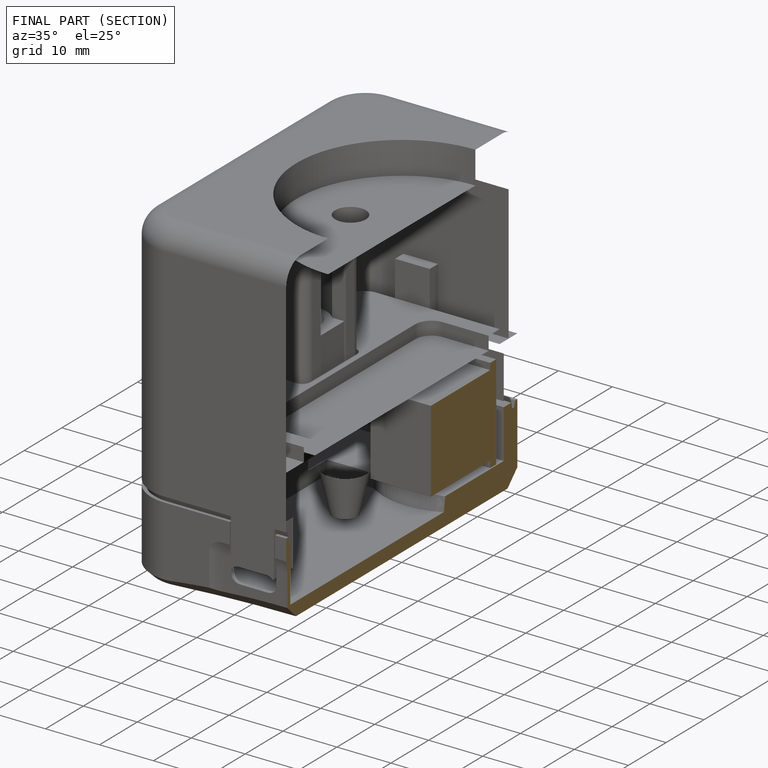
[diagram: finished part — half-section view (interior)]
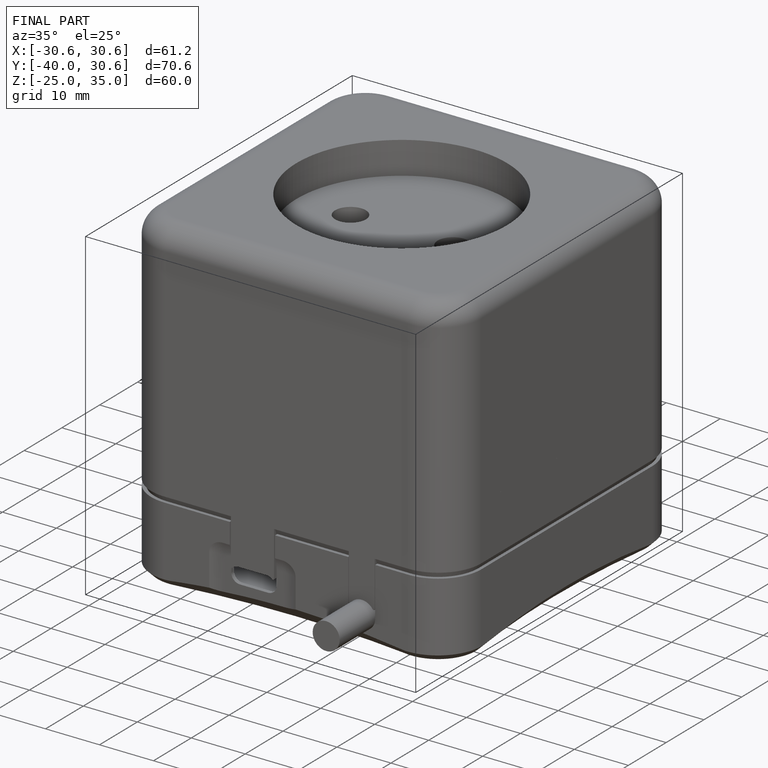
[diagram: finished part — iso view with bounding-box wireframe]
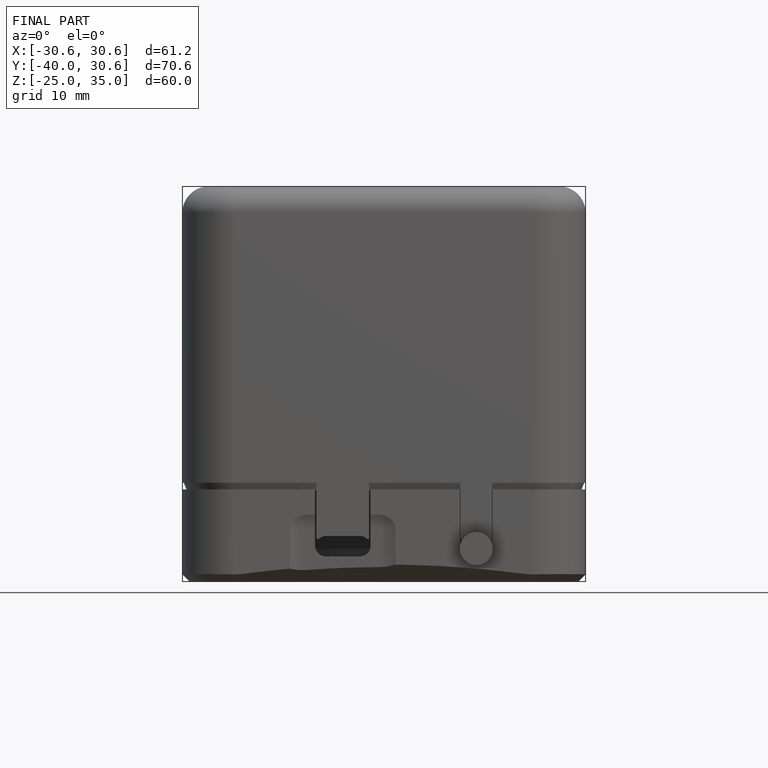
[diagram: finished part — front view with bounding-box wireframe]
